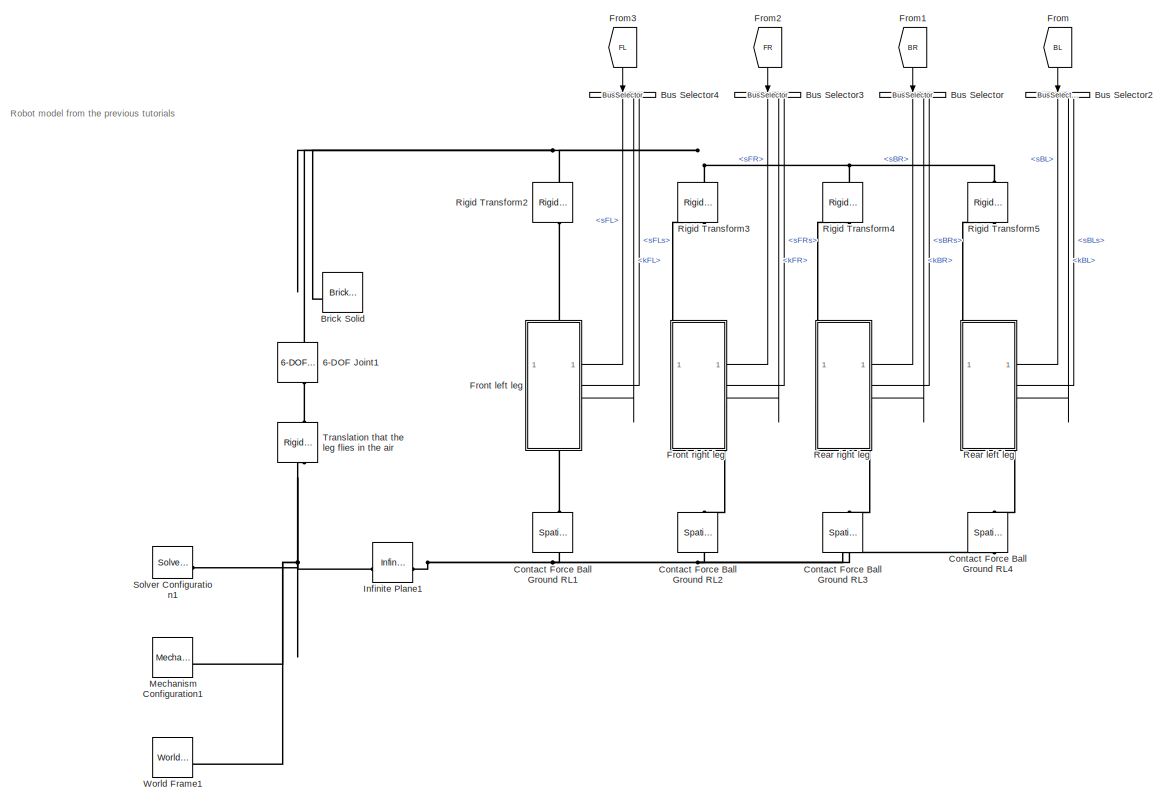
[diagram: root canvas - part 1/3, right side, full height]
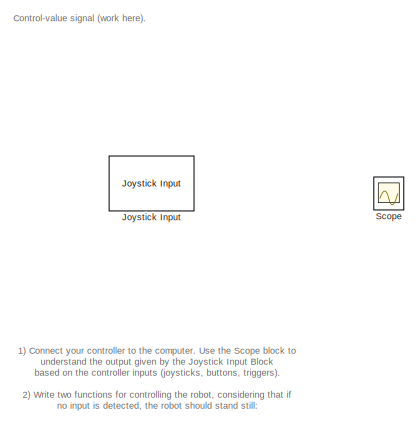
[diagram: root canvas - part 2/3, top left region]
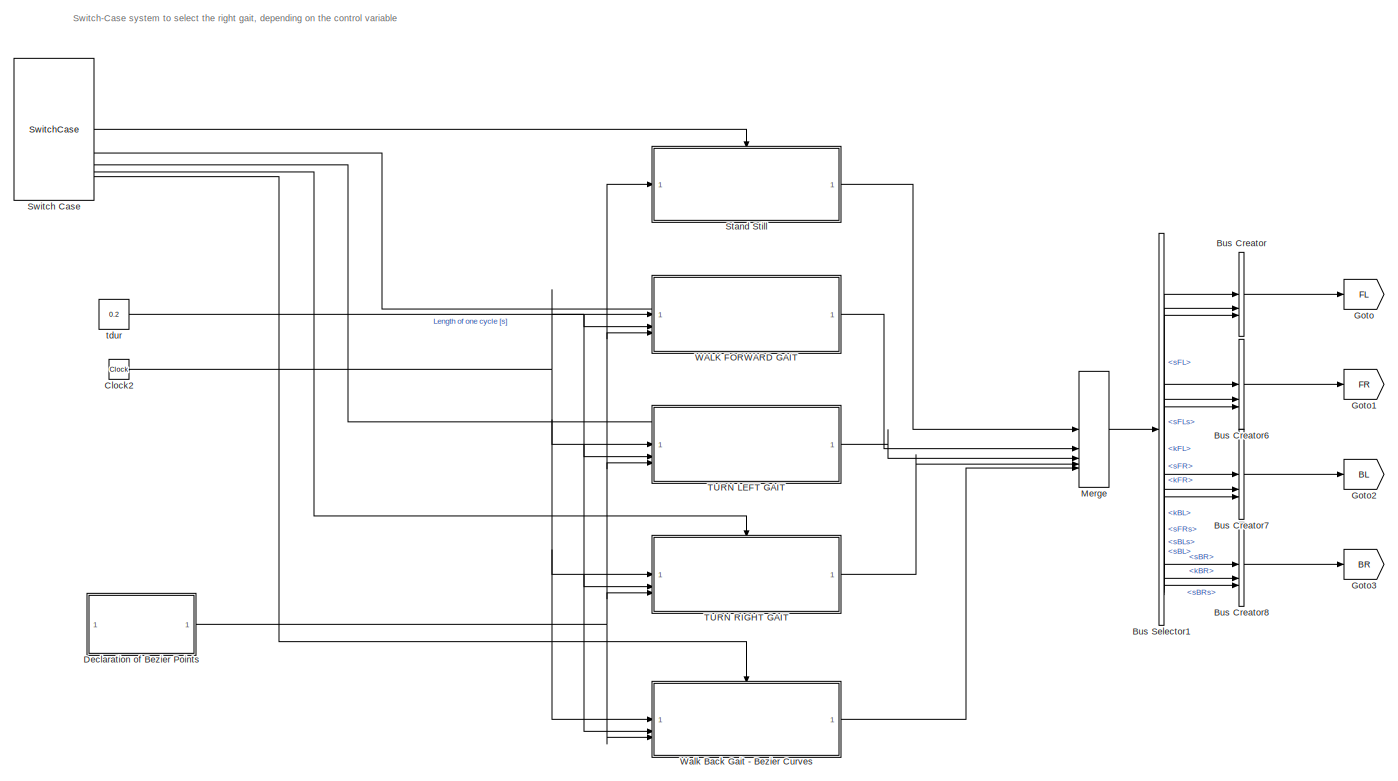
[diagram: root canvas - part 3/3, center side, full height]
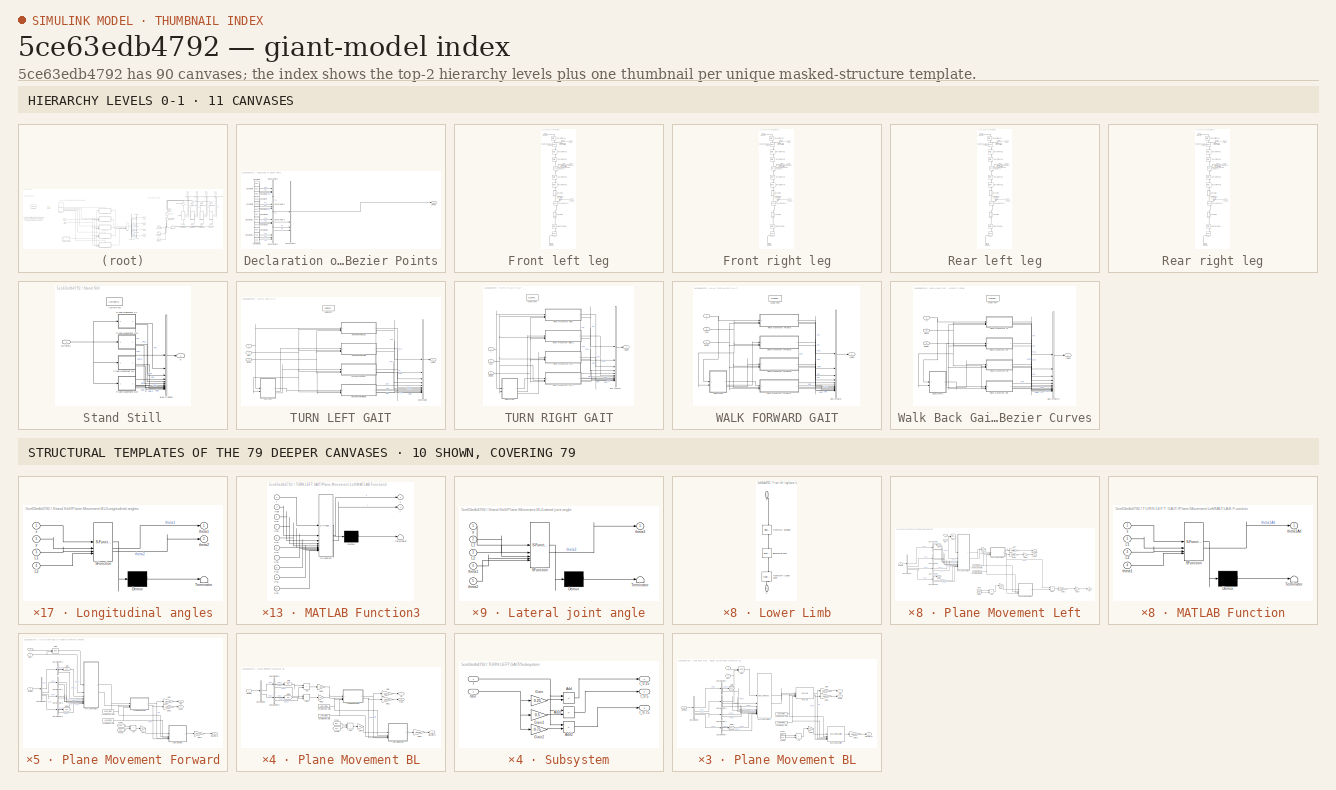
[diagram: thumbnail index - top-2 hierarchy levels (11 canvases) + 10 structural-template representatives of the remaining 79 canvases]
MODEL slx_5ce63edb4792
KIND model
CONFIG AbsTol = 1e-3
CONFIG EnableMultiTasking = on
CONFIG FixedStep = auto
CONFIG MaxStep = auto
CONFIG MinStep = auto
CONFIG RelTol = 1e-3
CONFIG SampleTimeConstraint = Unconstrained
CONFIG SolverName = ode23t
CONFIG StartTime = 0.0
CONFIG StopTime = inf
WORKSPACE source: mxarray member
WORKSPACE A = 0.4
WORKSPACE Critical_Velocity = 0.01
WORKSPACE Damping_Factor = 1000
WORKSPACE Dynamic_Friction = 0.5
WORKSPACE Heigth_brick: Simulink.Parameter (value not decoded)
WORKSPACE Heigth_ramp: Simulink.Parameter (value not decoded)
WORKSPACE Length_brick: Simulink.Parameter (value not decoded)
WORKSPACE Length_ramp: Simulink.Parameter (value not decoded)
WORKSPACE Length_torso: Simulink.Parameter (value not decoded)
WORKSPACE Lower_limbs: Simulink.Parameter (value not decoded)
WORKSPACE Static_Friction = 0.7
WORKSPACE Stiffnesscoefficient = 10000
WORKSPACE Transition_Region_Width = 0.02
WORKSPACE Upper_limbs: Simulink.Parameter (value not decoded)
WORKSPACE Width_brick: Simulink.Parameter (value not decoded)
WORKSPACE Width_ramp: Simulink.Parameter (value not decoded)
WORKSPACE Width_torso: Simulink.Parameter (value not decoded)
WORKSPACE f = 1.5
WORKSPACE max_Joint_change = 100
WORKSPACE r_foot: Simulink.Parameter (value not decoded)
WORKSPACE sampleTime: Simulink.Parameter (value not decoded)
WORKSPACE t_leg: Simulink.Parameter (value not decoded)
WORKSPACE theta: Simulink.Parameter (value not decoded)
WORKSPACE transferFunVal: Simulink.Parameter (value not decoded)
BLOCK [Reference] 6-DOF Joint1  REF=sm_lib/Joints/6-DOF Joint
  NameLocation = right
  SourceBlock = sm_lib/Joints/6-DOF Joint
  SourceType = 6-DOF Joint
BLOCK [Reference] Brick Solid  REF=sm_lib/Body Elements/Brick Solid
  NameLocation = top
  SourceBlock = sm_lib/Body Elements/Brick Solid
  SourceType = Brick Solid
BLOCK [BusCreator] Bus Creator
  DisplayOption = bar
  InheritFromInputs = on
  Inputs = 3
BLOCK [BusCreator] Bus Creator6
  DisplayOption = bar
  InheritFromInputs = on
  Inputs = 3
BLOCK [BusCreator] Bus Creator7
  DisplayOption = bar
  InheritFromInputs = on
  Inputs = 3
BLOCK [BusCreator] Bus Creator8
  DisplayOption = bar
  InheritFromInputs = on
  Inputs = 3
BLOCK [BusSelector] Bus Selector
  NameLocation = left
  OutputSignals = sBR,kBR,sBRs
BLOCK [BusSelector] Bus Selector1
  OutputSignals = sFL,kFL,sFLs,sFR,kFR,sFRs,sBL,kBL,sBLs,sBR,kBR,sBRs
BLOCK [BusSelector] Bus Selector2
  NameLocation = left
  OutputSignals = sBL,kBL,sBLs
BLOCK [BusSelector] Bus Selector3
  NameLocation = left
  OutputSignals = sFR,kFR,sFRs
BLOCK [BusSelector] Bus Selector4
  NameLocation = left
  OutputSignals = sFL,kFL,sFLs
BLOCK [Clock] Clock2
BLOCK [Reference] Contact Force Ball Ground RL1  REF=sm_lib/Forces and
Torques/Spatial
Contact Force
  NameLocation = left
  SourceBlock = sm_lib/Forces and\nTorques/Spatial\nContact Force
  SourceType = Spatial\nContact Force
BLOCK [Reference] Contact Force Ball Ground RL2  REF=sm_lib/Forces and
Torques/Spatial
Contact Force
  NameLocation = left
  SourceBlock = sm_lib/Forces and\nTorques/Spatial\nContact Force
  SourceType = Spatial\nContact Force
BLOCK [Reference] Contact Force Ball Ground RL3  REF=sm_lib/Forces and
Torques/Spatial
Contact Force
  NameLocation = left
  SourceBlock = sm_lib/Forces and\nTorques/Spatial\nContact Force
  SourceType = Spatial\nContact Force
BLOCK [Reference] Contact Force Ball Ground RL4  REF=sm_lib/Forces and
Torques/Spatial
Contact Force
  NameLocation = left
  SourceBlock = sm_lib/Forces and\nTorques/Spatial\nContact Force
  SourceType = Spatial\nContact Force
BLOCK [SubSystem] Declaration of Bezier Points
BLOCK [Outport] Declaration of Bezier Points/BPoint
BLOCK [BusCreator] Declaration of Bezier Points/Bus Creator1
  DisplayOption = bar
  InheritFromInputs = on
  Inputs = 3
BLOCK [BusCreator] Declaration of Bezier Points/Bus Creator2
  DisplayOption = bar
  InheritFromInputs = on
  Inputs = 3
BLOCK [BusCreator] Declaration of Bezier Points/Bus Creator3
  DisplayOption = bar
  InheritFromInputs = on
  Inputs = 3
BLOCK [BusCreator] Declaration of Bezier Points/Bus Creator4
  DisplayOption = bar
  InheritFromInputs = on
  Inputs = 3
BLOCK [BusCreator] Declaration of Bezier Points/Bus Creator5
  DisplayOption = bar
  InheritFromInputs = on
  Inputs = 4
BLOCK [Constant] Declaration of Bezier Points/Constant10
  Value = 0.01
BLOCK [Constant] Declaration of Bezier Points/Constant11
  Value = 0.01
BLOCK [Constant] Declaration of Bezier Points/Constant12
  Value = -0.075
BLOCK [Constant] Declaration of Bezier Points/Constant13
  Value = 0.02
BLOCK [Constant] Declaration of Bezier Points/Constant14
  Value = 0.02
BLOCK [Constant] Declaration of Bezier Points/Constant15
  Value = -0.08
BLOCK [Constant] Declaration of Bezier Points/Constant2
  Value = -0.02
BLOCK [Constant] Declaration of Bezier Points/Constant5
  Value = -0.02
BLOCK [Constant] Declaration of Bezier Points/Constant6
  Value = -0.08
BLOCK [Constant] Declaration of Bezier Points/Constant7
  Value = -0.035
BLOCK [Constant] Declaration of Bezier Points/Constant8
  Value = -0.035
BLOCK [Constant] Declaration of Bezier Points/Constant9
  Value = -0.075
BLOCK [From] From
  GotoTag = BL
  NameLocation = left
BLOCK [From] From1
  GotoTag = BR
  NameLocation = left
BLOCK [From] From2
  GotoTag = FR
  NameLocation = left
BLOCK [From] From3
  GotoTag = FL
  NameLocation = left
BLOCK [SubSystem] Front left leg
  PortSchema = {"entries":[{"content":{"sides":[{"content":{},"type":"ConnectorPlacement.EquallySpacedRectSide","uuid":"4058ee2b-9772-4aa9-ad2c-dc188ae6aecd"},{"content":{"connectorIds":["In1","In2","In3"],"side":"RIGHT"},"type":"ConnectorPlacement.EquallySpacedRectSide","uuid":"c8f5ac60-63ea-4dfe-ad35-3ef8c1bdb1d6"},{"content":{"connectorIds":["LConn1"],"side":"TOP"},"type":"ConnectorPlacement.EquallySpacedRect...<+389ch>  <repeated x4 — deduplicated; at blocks: Front left leg, Front right leg, Rear left leg, Rear right leg>
BLOCK [Inport] Front left leg/<Hip>
  NameLocation = top
BLOCK [Inport] Front left leg/<Knee>
  NameLocation = top
  Port = 3
BLOCK [PMIOPort] Front left leg/Conn1
  Side = Left
BLOCK [PMIOPort] Front left leg/Conn2
  Port = 2
  Side = Right
BLOCK [Reference] Front left leg/Foot  REF=sm_lib/Body Elements/Spherical Solid
  NameLocation = right
  SourceBlock = sm_lib/Body Elements/Spherical Solid
  SourceType = Spherical Solid
BLOCK [SubSystem] Front left leg/Lower Limb
  NameLocation = left
BLOCK [Reference] Front left leg/Lower Limb/BaseLowerLimb  REF=sm_lib/Body Elements/Brick Solid
  NameLocation = left
  SourceBlock = sm_lib/Body Elements/Brick Solid
  SourceType = Brick Solid
BLOCK [PMIOPort] Front left leg/Lower Limb/L
  NameLocation = left
  Port = 2
  Side = Right
BLOCK [Reference] Front left leg/Lower Limb/Transform Shoulder  REF=sm_lib/Frames and
Transforms/Rigid
Transform
  NameLocation = left
  SourceBlock = sm_lib/Frames and\nTransforms/Rigid\nTransform
  SourceType = Rigid\nTransform
BLOCK [Reference] Front left leg/Lower Limb/Transform Upper Knee  REF=sm_lib/Frames and
Transforms/Rigid
Transform
  NameLocation = left
  SourceBlock = sm_lib/Frames and\nTransforms/Rigid\nTransform
  SourceType = Rigid\nTransform
BLOCK [PMIOPort] Front left leg/Lower Limb/U
  NameLocation = left
  Side = Left
BLOCK [Reference] Front left leg/Revolute Knee1  REF=sm_lib/Joints/Revolute Joint
  NameLocation = left
  SourceBlock = sm_lib/Joints/Revolute Joint
  SourceType = Revolute Joint
BLOCK [Reference] Front left leg/Revolute Shoulder Forward  REF=sm_lib/Joints/Revolute Joint
  NameLocation = left
  SourceBlock = sm_lib/Joints/Revolute Joint
  SourceType = Revolute Joint
BLOCK [Reference] Front left leg/Revolute Shoulder Sideways  REF=sm_lib/Joints/Revolute Joint
  NameLocation = left
  SourceBlock = sm_lib/Joints/Revolute Joint
  SourceType = Revolute Joint
BLOCK [Reference] Front left leg/Rigid Transform4  REF=sm_lib/Frames and
Transforms/Rigid
Transform
  NameLocation = left
  SourceBlock = sm_lib/Frames and\nTransforms/Rigid\nTransform
  SourceType = Rigid\nTransform
BLOCK [Inport] Front left leg/Sideways
  NameLocation = top
  Port = 2
BLOCK [Reference] Front left leg/Simulink-PS Converter  REF=nesl_utility/Simulink-PS
Converter
  NameLocation = top
  SourceBlock = nesl_utility/Simulink-PS\nConverter
  SourceType = Simulink-PS\nConverter
BLOCK [Reference] Front left leg/Simulink-PS Converter1  REF=nesl_utility/Simulink-PS
Converter
  NameLocation = top
  SourceBlock = nesl_utility/Simulink-PS\nConverter
  SourceType = Simulink-PS\nConverter
BLOCK [Reference] Front left leg/Simulink-PS Converter2  REF=nesl_utility/Simulink-PS
Converter
  NameLocation = top
  SourceBlock = nesl_utility/Simulink-PS\nConverter
  SourceType = Simulink-PS\nConverter
BLOCK [Reference] Front left leg/Transform Pivot1  REF=sm_lib/Frames and
Transforms/Rigid
Transform
  NameLocation = left
  SourceBlock = sm_lib/Frames and\nTransforms/Rigid\nTransform
  SourceType = Rigid\nTransform
BLOCK [Reference] Front left leg/Transform Pivot2  REF=sm_lib/Frames and
Transforms/Rigid
Transform
  NameLocation = left
  SourceBlock = sm_lib/Frames and\nTransforms/Rigid\nTransform
  SourceType = Rigid\nTransform
BLOCK [Reference] Front left leg/Transform Pivot3  REF=sm_lib/Frames and
Transforms/Rigid
Transform
  NameLocation = left
  SourceBlock = sm_lib/Frames and\nTransforms/Rigid\nTransform
  SourceType = Rigid\nTransform
BLOCK [Reference] Front left leg/Transform Pivot4  REF=sm_lib/Frames and
Transforms/Rigid
Transform
  NameLocation = left
  SourceBlock = sm_lib/Frames and\nTransforms/Rigid\nTransform
  SourceType = Rigid\nTransform
BLOCK [Reference] Front left leg/Transform Pivot5  REF=sm_lib/Frames and
Transforms/Rigid
Transform
  NameLocation = left
  SourceBlock = sm_lib/Frames and\nTransforms/Rigid\nTransform
  SourceType = Rigid\nTransform
BLOCK [SubSystem] Front left leg/Upper Limb
  NameLocation = left
BLOCK [Reference] Front left leg/Upper Limb/BaseUpperLimb  REF=sm_lib/Body Elements/Brick Solid
  NameLocation = left
  SourceBlock = sm_lib/Body Elements/Brick Solid
  SourceType = Brick Solid
BLOCK [PMIOPort] Front left leg/Upper Limb/L
  NameLocation = left
  Port = 2
  Side = Right
BLOCK [Reference] Front left leg/Upper Limb/Transform Shoulder  REF=sm_lib/Frames and
Transforms/Rigid
Transform
  NameLocation = left
  SourceBlock = sm_lib/Frames and\nTransforms/Rigid\nTransform
  SourceType = Rigid\nTransform
BLOCK [Reference] Front left leg/Upper Limb/Transform Upper Knee  REF=sm_lib/Frames and
Transforms/Rigid
Transform
  NameLocation = left
  SourceBlock = sm_lib/Frames and\nTransforms/Rigid\nTransform
  SourceType = Rigid\nTransform
BLOCK [PMIOPort] Front left leg/Upper Limb/U
  NameLocation = left
  Side = Left
BLOCK [SubSystem] Front right leg
BLOCK [Inport] Front right leg/<Hip>
  NameLocation = top
BLOCK [Inport] Front right leg/<Knee>
  NameLocation = top
  Port = 3
BLOCK [PMIOPort] Front right leg/Conn1
  Side = Left
BLOCK [PMIOPort] Front right leg/Conn2
  Port = 2
  Side = Right
BLOCK [Reference] Front right leg/Foot  REF=sm_lib/Body Elements/Spherical Solid
  NameLocation = right
  SourceBlock = sm_lib/Body Elements/Spherical Solid
  SourceType = Spherical Solid
BLOCK [SubSystem] Front right leg/Lower Limb
  NameLocation = left
BLOCK [Reference] Front right leg/Lower Limb/BaseLowerLimb  REF=sm_lib/Body Elements/Brick Solid
  NameLocation = left
  SourceBlock = sm_lib/Body Elements/Brick Solid
  SourceType = Brick Solid
BLOCK [PMIOPort] Front right leg/Lower Limb/L
  NameLocation = left
  Port = 2
  Side = Right
BLOCK [Reference] Front right leg/Lower Limb/Transform Shoulder  REF=sm_lib/Frames and
Transforms/Rigid
Transform
  NameLocation = left
  SourceBlock = sm_lib/Frames and\nTransforms/Rigid\nTransform
  SourceType = Rigid\nTransform
BLOCK [Reference] Front right leg/Lower Limb/Transform Upper Knee  REF=sm_lib/Frames and
Transforms/Rigid
Transform
  NameLocation = left
  SourceBlock = sm_lib/Frames and\nTransforms/Rigid\nTransform
  SourceType = Rigid\nTransform
BLOCK [PMIOPort] Front right leg/Lower Limb/U
  NameLocation = left
  Side = Left
BLOCK [Reference] Front right leg/Revolute Knee1  REF=sm_lib/Joints/Revolute Joint
  NameLocation = left
  SourceBlock = sm_lib/Joints/Revolute Joint
  SourceType = Revolute Joint
BLOCK [Reference] Front right leg/Revolute Shoulder Forward  REF=sm_lib/Joints/Revolute Joint
  NameLocation = left
  SourceBlock = sm_lib/Joints/Revolute Joint
  SourceType = Revolute Joint
BLOCK [Reference] Front right leg/Revolute Shoulder Sideways  REF=sm_lib/Joints/Revolute Joint
  NameLocation = left
  SourceBlock = sm_lib/Joints/Revolute Joint
  SourceType = Revolute Joint
BLOCK [Reference] Front right leg/Rigid Transform4  REF=sm_lib/Frames and
Transforms/Rigid
Transform
  NameLocation = left
  SourceBlock = sm_lib/Frames and\nTransforms/Rigid\nTransform
  SourceType = Rigid\nTransform
BLOCK [Inport] Front right leg/Sideways
  NameLocation = top
  Port = 2
BLOCK [Reference] Front right leg/Simulink-PS Converter  REF=nesl_utility/Simulink-PS
Converter
  NameLocation = top
  SourceBlock = nesl_utility/Simulink-PS\nConverter
  SourceType = Simulink-PS\nConverter
BLOCK [Reference] Front right leg/Simulink-PS Converter1  REF=nesl_utility/Simulink-PS
Converter
  NameLocation = top
  SourceBlock = nesl_utility/Simulink-PS\nConverter
  SourceType = Simulink-PS\nConverter
BLOCK [Reference] Front right leg/Simulink-PS Converter2  REF=nesl_utility/Simulink-PS
Converter
  NameLocation = top
  SourceBlock = nesl_utility/Simulink-PS\nConverter
  SourceType = Simulink-PS\nConverter
BLOCK [Reference] Front right leg/Transform Pivot1  REF=sm_lib/Frames and
Transforms/Rigid
Transform
  NameLocation = left
  SourceBlock = sm_lib/Frames and\nTransforms/Rigid\nTransform
  SourceType = Rigid\nTransform
BLOCK [Reference] Front right leg/Transform Pivot2  REF=sm_lib/Frames and
Transforms/Rigid
Transform
  NameLocation = left
  SourceBlock = sm_lib/Frames and\nTransforms/Rigid\nTransform
  SourceType = Rigid\nTransform
BLOCK [Reference] Front right leg/Transform Pivot3  REF=sm_lib/Frames and
Transforms/Rigid
Transform
  NameLocation = left
  SourceBlock = sm_lib/Frames and\nTransforms/Rigid\nTransform
  SourceType = Rigid\nTransform
BLOCK [Reference] Front right leg/Transform Pivot4  REF=sm_lib/Frames and
Transforms/Rigid
Transform
  NameLocation = left
  SourceBlock = sm_lib/Frames and\nTransforms/Rigid\nTransform
  SourceType = Rigid\nTransform
BLOCK [Reference] Front right leg/Transform Pivot5  REF=sm_lib/Frames and
Transforms/Rigid
Transform
  NameLocation = left
  SourceBlock = sm_lib/Frames and\nTransforms/Rigid\nTransform
  SourceType = Rigid\nTransform
BLOCK [SubSystem] Front right leg/Upper Limb
  NameLocation = left
BLOCK [Reference] Front right leg/Upper Limb/BaseUpperLimb  REF=sm_lib/Body Elements/Brick Solid
  NameLocation = left
  SourceBlock = sm_lib/Body Elements/Brick Solid
  SourceType = Brick Solid
BLOCK [PMIOPort] Front right leg/Upper Limb/L
  NameLocation = left
  Port = 2
  Side = Right
BLOCK [Reference] Front right leg/Upper Limb/Transform Shoulder  REF=sm_lib/Frames and
Transforms/Rigid
Transform
  NameLocation = left
  SourceBlock = sm_lib/Frames and\nTransforms/Rigid\nTransform
  SourceType = Rigid\nTransform
BLOCK [Reference] Front right leg/Upper Limb/Transform Upper Knee  REF=sm_lib/Frames and
Transforms/Rigid
Transform
  NameLocation = left
  SourceBlock = sm_lib/Frames and\nTransforms/Rigid\nTransform
  SourceType = Rigid\nTransform
BLOCK [PMIOPort] Front right leg/Upper Limb/U
  NameLocation = left
  Side = Left
BLOCK [Goto] Goto
  GotoTag = FL
BLOCK [Goto] Goto1
  GotoTag = FR
BLOCK [Goto] Goto2
  GotoTag = BL
BLOCK [Goto] Goto3
  GotoTag = BR
BLOCK [Reference] Infinite Plane1  REF=sm_lib/Curves and Surfaces/Infinite Plane
  SourceBlock = sm_lib/Curves and Surfaces/Infinite Plane
  SourceType = Infinite Plane
BLOCK [Reference] Joystick Input  REF=vrlib/Joystick Input
  SourceBlock = vrlib/Joystick Input
  SourceType = Joystick Input
BLOCK [Reference] Mechanism Configuration1  REF=sm_lib/Utilities/Mechanism
Configuration
  SourceBlock = sm_lib/Utilities/Mechanism\nConfiguration
  SourceType = Mechanism\nConfiguration
BLOCK [Merge] Merge
  Inputs = 5
BLOCK [SubSystem] Rear left leg
BLOCK [Inport] Rear left leg/<Hip>
  NameLocation = top
BLOCK [Inport] Rear left leg/<Knee>
  NameLocation = top
  Port = 3
BLOCK [PMIOPort] Rear left leg/Conn1
  Side = Left
BLOCK [PMIOPort] Rear left leg/Conn2
  Port = 2
  Side = Right
BLOCK [Reference] Rear left leg/Foot  REF=sm_lib/Body Elements/Spherical Solid
  NameLocation = right
  SourceBlock = sm_lib/Body Elements/Spherical Solid
  SourceType = Spherical Solid
BLOCK [SubSystem] Rear left leg/Lower Limb
  NameLocation = left
BLOCK [Reference] Rear left leg/Lower Limb/BaseLowerLimb  REF=sm_lib/Body Elements/Brick Solid
  NameLocation = left
  SourceBlock = sm_lib/Body Elements/Brick Solid
  SourceType = Brick Solid
BLOCK [PMIOPort] Rear left leg/Lower Limb/L
  NameLocation = left
  Port = 2
  Side = Right
BLOCK [Reference] Rear left leg/Lower Limb/Transform Shoulder  REF=sm_lib/Frames and
Transforms/Rigid
Transform
  NameLocation = left
  SourceBlock = sm_lib/Frames and\nTransforms/Rigid\nTransform
  SourceType = Rigid\nTransform
BLOCK [Reference] Rear left leg/Lower Limb/Transform Upper Knee  REF=sm_lib/Frames and
Transforms/Rigid
Transform
  NameLocation = left
  SourceBlock = sm_lib/Frames and\nTransforms/Rigid\nTransform
  SourceType = Rigid\nTransform
BLOCK [PMIOPort] Rear left leg/Lower Limb/U
  NameLocation = left
  Side = Left
BLOCK [Reference] Rear left leg/Revolute Knee1  REF=sm_lib/Joints/Revolute Joint
  NameLocation = left
  SourceBlock = sm_lib/Joints/Revolute Joint
  SourceType = Revolute Joint
BLOCK [Reference] Rear left leg/Revolute Shoulder Forward  REF=sm_lib/Joints/Revolute Joint
  NameLocation = left
  SourceBlock = sm_lib/Joints/Revolute Joint
  SourceType = Revolute Joint
BLOCK [Reference] Rear left leg/Revolute Shoulder Sideways  REF=sm_lib/Joints/Revolute Joint
  NameLocation = left
  SourceBlock = sm_lib/Joints/Revolute Joint
  SourceType = Revolute Joint
BLOCK [Reference] Rear left leg/Rigid Transform4  REF=sm_lib/Frames and
Transforms/Rigid
Transform
  NameLocation = left
  SourceBlock = sm_lib/Frames and\nTransforms/Rigid\nTransform
  SourceType = Rigid\nTransform
BLOCK [Inport] Rear left leg/Sideways
  NameLocation = top
  Port = 2
BLOCK [Reference] Rear left leg/Simulink-PS Converter  REF=nesl_utility/Simulink-PS
Converter
  NameLocation = top
  SourceBlock = nesl_utility/Simulink-PS\nConverter
  SourceType = Simulink-PS\nConverter
BLOCK [Reference] Rear left leg/Simulink-PS Converter1  REF=nesl_utility/Simulink-PS
Converter
  NameLocation = top
  SourceBlock = nesl_utility/Simulink-PS\nConverter
  SourceType = Simulink-PS\nConverter
BLOCK [Reference] Rear left leg/Simulink-PS Converter2  REF=nesl_utility/Simulink-PS
Converter
  NameLocation = top
  SourceBlock = nesl_utility/Simulink-PS\nConverter
  SourceType = Simulink-PS\nConverter
BLOCK [Reference] Rear left leg/Transform Pivot1  REF=sm_lib/Frames and
Transforms/Rigid
Transform
  NameLocation = left
  SourceBlock = sm_lib/Frames and\nTransforms/Rigid\nTransform
  SourceType = Rigid\nTransform
BLOCK [Reference] Rear left leg/Transform Pivot2  REF=sm_lib/Frames and
Transforms/Rigid
Transform
  NameLocation = left
  SourceBlock = sm_lib/Frames and\nTransforms/Rigid\nTransform
  SourceType = Rigid\nTransform
BLOCK [Reference] Rear left leg/Transform Pivot3  REF=sm_lib/Frames and
Transforms/Rigid
Transform
  NameLocation = left
  SourceBlock = sm_lib/Frames and\nTransforms/Rigid\nTransform
  SourceType = Rigid\nTransform
BLOCK [Reference] Rear left leg/Transform Pivot4  REF=sm_lib/Frames and
Transforms/Rigid
Transform
  NameLocation = left
  SourceBlock = sm_lib/Frames and\nTransforms/Rigid\nTransform
  SourceType = Rigid\nTransform
BLOCK [Reference] Rear left leg/Transform Pivot5  REF=sm_lib/Frames and
Transforms/Rigid
Transform
  NameLocation = left
  SourceBlock = sm_lib/Frames and\nTransforms/Rigid\nTransform
  SourceType = Rigid\nTransform
BLOCK [SubSystem] Rear left leg/Upper Limb
  NameLocation = left
BLOCK [Reference] Rear left leg/Upper Limb/BaseUpperLimb  REF=sm_lib/Body Elements/Brick Solid
  NameLocation = left
  SourceBlock = sm_lib/Body Elements/Brick Solid
  SourceType = Brick Solid
BLOCK [PMIOPort] Rear left leg/Upper Limb/L
  NameLocation = left
  Port = 2
  Side = Right
BLOCK [Reference] Rear left leg/Upper Limb/Transform Shoulder  REF=sm_lib/Frames and
Transforms/Rigid
Transform
  NameLocation = left
  SourceBlock = sm_lib/Frames and\nTransforms/Rigid\nTransform
  SourceType = Rigid\nTransform
BLOCK [Reference] Rear left leg/Upper Limb/Transform Upper Knee  REF=sm_lib/Frames and
Transforms/Rigid
Transform
  NameLocation = left
  SourceBlock = sm_lib/Frames and\nTransforms/Rigid\nTransform
  SourceType = Rigid\nTransform
BLOCK [PMIOPort] Rear left leg/Upper Limb/U
  NameLocation = left
  Side = Left
BLOCK [SubSystem] Rear right leg
BLOCK [Inport] Rear right leg/<Hip>
  NameLocation = top
BLOCK [Inport] Rear right leg/<Knee>
  NameLocation = top
  Port = 3
BLOCK [PMIOPort] Rear right leg/Conn1
  Side = Left
BLOCK [PMIOPort] Rear right leg/Conn2
  Port = 2
  Side = Right
BLOCK [Reference] Rear right leg/Foot  REF=sm_lib/Body Elements/Spherical Solid
  NameLocation = right
  SourceBlock = sm_lib/Body Elements/Spherical Solid
  SourceType = Spherical Solid
BLOCK [SubSystem] Rear right leg/Lower Limb
  NameLocation = left
BLOCK [Reference] Rear right leg/Lower Limb/BaseLowerLimb  REF=sm_lib/Body Elements/Brick Solid
  NameLocation = left
  SourceBlock = sm_lib/Body Elements/Brick Solid
  SourceType = Brick Solid
BLOCK [PMIOPort] Rear right leg/Lower Limb/L
  NameLocation = left
  Port = 2
  Side = Right
BLOCK [Reference] Rear right leg/Lower Limb/Transform Shoulder  REF=sm_lib/Frames and
Transforms/Rigid
Transform
  NameLocation = left
  SourceBlock = sm_lib/Frames and\nTransforms/Rigid\nTransform
  SourceType = Rigid\nTransform
BLOCK [Reference] Rear right leg/Lower Limb/Transform Upper Knee  REF=sm_lib/Frames and
Transforms/Rigid
Transform
  NameLocation = left
  SourceBlock = sm_lib/Frames and\nTransforms/Rigid\nTransform
  SourceType = Rigid\nTransform
BLOCK [PMIOPort] Rear right leg/Lower Limb/U
  NameLocation = left
  Side = Left
BLOCK [Reference] Rear right leg/Revolute Knee1  REF=sm_lib/Joints/Revolute Joint
  NameLocation = left
  SourceBlock = sm_lib/Joints/Revolute Joint
  SourceType = Revolute Joint
BLOCK [Reference] Rear right leg/Revolute Shoulder Forward  REF=sm_lib/Joints/Revolute Joint
  NameLocation = left
  SourceBlock = sm_lib/Joints/Revolute Joint
  SourceType = Revolute Joint
BLOCK [Reference] Rear right leg/Revolute Shoulder Sideways  REF=sm_lib/Joints/Revolute Joint
  NameLocation = left
  SourceBlock = sm_lib/Joints/Revolute Joint
  SourceType = Revolute Joint
BLOCK [Reference] Rear right leg/Rigid Transform4  REF=sm_lib/Frames and
Transforms/Rigid
Transform
  NameLocation = left
  SourceBlock = sm_lib/Frames and\nTransforms/Rigid\nTransform
  SourceType = Rigid\nTransform
BLOCK [Inport] Rear right leg/Sideways
  NameLocation = top
  Port = 2
BLOCK [Reference] Rear right leg/Simulink-PS Converter  REF=nesl_utility/Simulink-PS
Converter
  NameLocation = top
  SourceBlock = nesl_utility/Simulink-PS\nConverter
  SourceType = Simulink-PS\nConverter
BLOCK [Reference] Rear right leg/Simulink-PS Converter1  REF=nesl_utility/Simulink-PS
Converter
  NameLocation = top
  SourceBlock = nesl_utility/Simulink-PS\nConverter
  SourceType = Simulink-PS\nConverter
BLOCK [Reference] Rear right leg/Simulink-PS Converter2  REF=nesl_utility/Simulink-PS
Converter
  NameLocation = top
  SourceBlock = nesl_utility/Simulink-PS\nConverter
  SourceType = Simulink-PS\nConverter
BLOCK [Reference] Rear right leg/Transform Pivot1  REF=sm_lib/Frames and
Transforms/Rigid
Transform
  NameLocation = left
  SourceBlock = sm_lib/Frames and\nTransforms/Rigid\nTransform
  SourceType = Rigid\nTransform
BLOCK [Reference] Rear right leg/Transform Pivot2  REF=sm_lib/Frames and
Transforms/Rigid
Transform
  NameLocation = left
  SourceBlock = sm_lib/Frames and\nTransforms/Rigid\nTransform
  SourceType = Rigid\nTransform
BLOCK [Reference] Rear right leg/Transform Pivot3  REF=sm_lib/Frames and
Transforms/Rigid
Transform
  NameLocation = left
  SourceBlock = sm_lib/Frames and\nTransforms/Rigid\nTransform
  SourceType = Rigid\nTransform
BLOCK [Reference] Rear right leg/Transform Pivot4  REF=sm_lib/Frames and
Transforms/Rigid
Transform
  NameLocation = left
  SourceBlock = sm_lib/Frames and\nTransforms/Rigid\nTransform
  SourceType = Rigid\nTransform
BLOCK [Reference] Rear right leg/Transform Pivot5  REF=sm_lib/Frames and
Transforms/Rigid
Transform
  NameLocation = left
  SourceBlock = sm_lib/Frames and\nTransforms/Rigid\nTransform
  SourceType = Rigid\nTransform
BLOCK [SubSystem] Rear right leg/Upper Limb
  NameLocation = left
BLOCK [Reference] Rear right leg/Upper Limb/BaseUpperLimb  REF=sm_lib/Body Elements/Brick Solid
  NameLocation = left
  SourceBlock = sm_lib/Body Elements/Brick Solid
  SourceType = Brick Solid
BLOCK [PMIOPort] Rear right leg/Upper Limb/L
  NameLocation = left
  Port = 2
  Side = Right
BLOCK [Reference] Rear right leg/Upper Limb/Transform Shoulder  REF=sm_lib/Frames and
Transforms/Rigid
Transform
  NameLocation = left
  SourceBlock = sm_lib/Frames and\nTransforms/Rigid\nTransform
  SourceType = Rigid\nTransform
BLOCK [Reference] Rear right leg/Upper Limb/Transform Upper Knee  REF=sm_lib/Frames and
Transforms/Rigid
Transform
  NameLocation = left
  SourceBlock = sm_lib/Frames and\nTransforms/Rigid\nTransform
  SourceType = Rigid\nTransform
BLOCK [PMIOPort] Rear right leg/Upper Limb/U
  NameLocation = left
  Side = Left
BLOCK [Reference] Rigid Transform2  REF=sm_lib/Frames and
Transforms/Rigid
Transform
  NameLocation = left
  SourceBlock = sm_lib/Frames and\nTransforms/Rigid\nTransform
  SourceType = Rigid\nTransform
BLOCK [Reference] Rigid Transform3  REF=sm_lib/Frames and
Transforms/Rigid
Transform
  NameLocation = left
  SourceBlock = sm_lib/Frames and\nTransforms/Rigid\nTransform
  SourceType = Rigid\nTransform
BLOCK [Reference] Rigid Transform4  REF=sm_lib/Frames and
Transforms/Rigid
Transform
  NameLocation = left
  SourceBlock = sm_lib/Frames and\nTransforms/Rigid\nTransform
  SourceType = Rigid\nTransform
BLOCK [Reference] Rigid Transform5  REF=sm_lib/Frames and
Transforms/Rigid
Transform
  NameLocation = left
  SourceBlock = sm_lib/Frames and\nTransforms/Rigid\nTransform
  SourceType = Rigid\nTransform
BLOCK [Scope] Scope
  Floating = off
  NumInputPorts = 2
  ScopeSpecificationString = Simulink.scopes.TimeScopeBlockCfg('CurrentConfiguration', extmgr.ConfigurationSet(extmgr.Configuration('Core','General UI',true),extmgr.Configuration('Core','Source UI',true),extmgr.Configuration('Sources','WiredSimulink',true),extmgr.Configuration('Visuals','Time Domain',true,'SerializedDisplays',{struct('MinYLimReal','-0.62381','MaxYLimReal','4.51376','YLabelReal','','MinYLimMag','0.00000','MaxY...<+1618ch>
BLOCK [Reference] Solver Configuration1  REF=nesl_utility/Solver
Configuration
  SourceBlock = nesl_utility/Solver\nConfiguration
  SourceType = Solver\nConfiguration
BLOCK [SubSystem] Stand Still
BLOCK [ActionPort] Stand Still/Action Port
  ActionPortLabel = case [ 0 ]:
  InitializeStates = reset
BLOCK [Inport] Stand Still/BPoints
BLOCK [BusCreator] Stand Still/Bus Creator
  DisplayOption = bar
  InheritFromInputs = on
  Inputs = 12
BLOCK [SubSystem] Stand Still/Plane Movement BL
BLOCK [Sum] Stand Still/Plane Movement BL/Add
  IconShape = rectangular
BLOCK [Sum] Stand Still/Plane Movement BL/Add1
  IconShape = rectangular
BLOCK [Sum] Stand Still/Plane Movement BL/Add2
  IconShape = rectangular
BLOCK [Inport] Stand Still/Plane Movement BL/BPoints
BLOCK [BusSelector] Stand Still/Plane Movement BL/Bus Selector
  OutputSignals = P0,P3
BLOCK [BusSelector] Stand Still/Plane Movement BL/Bus Selector1
  OutputSignals = P0x,P0y,P0z
BLOCK [BusSelector] Stand Still/Plane Movement BL/Bus Selector4
  OutputSignals = P3x,P3y,P3z
BLOCK [From] Stand Still/Plane Movement BL/From
  GotoTag = P0y
BLOCK [From] Stand Still/Plane Movement BL/From1
  GotoTag = P3y
BLOCK [Gain] Stand Still/Plane Movement BL/Gain
  Gain = 180/pi
BLOCK [Gain] Stand Still/Plane Movement BL/Gain1
  Gain = -180/pi
BLOCK [Gain] Stand Still/Plane Movement BL/Gain2
  Gain = -1/2
BLOCK [Gain] Stand Still/Plane Movement BL/Gain3
  Gain = 1/2
BLOCK [Gain] Stand Still/Plane Movement BL/Gain4
  Gain = 0.5
BLOCK [Gain] Stand Still/Plane Movement BL/Gain5
  Gain = 180/pi
BLOCK [Goto] Stand Still/Plane Movement BL/Goto
  GotoTag = P0y
BLOCK [Goto] Stand Still/Plane Movement BL/Goto1
  GotoTag = P3y
BLOCK [Outport] Stand Still/Plane Movement BL/HipLateral
  Port = 3
BLOCK [SubSystem] Stand Still/Plane Movement BL/Lateral joint angle
  ErrorFcn = Stateflow.Translate.translate
  PermitHierarchicalResolution = ExplicitOnly
  SFBlockType = MATLAB Function
  TreatAsAtomicUnit = on
BLOCK [Demux] Stand Still/Plane Movement BL/Lateral joint angle/ Demux 
  Outputs = 1
BLOCK [S-Function] Stand Still/Plane Movement BL/Lateral joint angle/ SFunction 
  EnableBusSupport = on
  FunctionName = sf_sfun
  PortCounts = [5 2]
  SFcnIsStateOwnerBlock = off
  SFunctionDeploymentMode = off
  Tag = Stateflow S-Function 11
BLOCK [Terminator] Stand Still/Plane Movement BL/Lateral joint angle/ Terminator 
BLOCK [Inport] Stand Still/Plane Movement BL/Lateral joint angle/L1
  Port = 2
BLOCK [Inport] Stand Still/Plane Movement BL/Lateral joint angle/L2
  Port = 3
BLOCK [Inport] Stand Still/Plane Movement BL/Lateral joint angle/theta1
  Port = 4
BLOCK [Inport] Stand Still/Plane Movement BL/Lateral joint angle/theta2
  Port = 5
BLOCK [Outport] Stand Still/Plane Movement BL/Lateral joint angle/theta3
BLOCK [Inport] Stand Still/Plane Movement BL/Lateral joint angle/y
BLOCK [Constant] Stand Still/Plane Movement BL/Length lower Limb
  Value = Lower_limbs
BLOCK [Constant] Stand Still/Plane Movement BL/Length upper Limb
  Value = Upper_limbs
BLOCK [SubSystem] Stand Still/Plane Movement BL/Longitudinal angles
  ErrorFcn = Stateflow.Translate.translate
  PermitHierarchicalResolution = ExplicitOnly
  SFBlockType = MATLAB Function
  TreatAsAtomicUnit = on
BLOCK [Demux] Stand Still/Plane Movement BL/Longitudinal angles/ Demux 
  Outputs = 1
BLOCK [S-Function] Stand Still/Plane Movement BL/Longitudinal angles/ SFunction 
  EnableBusSupport = on
  FunctionName = sf_sfun
  PortCounts = [4 3]
  SFcnIsStateOwnerBlock = off
  SFunctionDeploymentMode = off
  Tag = Stateflow S-Function 10
BLOCK [Terminator] Stand Still/Plane Movement BL/Longitudinal angles/ Terminator 
BLOCK [Inport] Stand Still/Plane Movement BL/Longitudinal angles/L1
  Port = 3
BLOCK [Inport] Stand Still/Plane Movement BL/Longitudinal angles/L2
  Port = 4
BLOCK [Outport] Stand Still/Plane Movement BL/Longitudinal angles/theta1
BLOCK [Outport] Stand Still/Plane Movement BL/Longitudinal angles/theta2
  Port = 2
BLOCK [Inport] Stand Still/Plane Movement BL/Longitudinal angles/x
BLOCK [Inport] Stand Still/Plane Movement BL/Longitudinal angles/y
  Port = 2
BLOCK [Outport] Stand Still/Plane Movement BL/hip
BLOCK [Outport] Stand Still/Plane Movement BL/knee
  Port = 2
BLOCK [SubSystem] Stand Still/Plane Movement BR
BLOCK [Sum] Stand Still/Plane Movement BR/Add
  IconShape = rectangular
BLOCK [Sum] Stand Still/Plane Movement BR/Add1
  IconShape = rectangular
BLOCK [Sum] Stand Still/Plane Movement BR/Add2
  IconShape = rectangular
BLOCK [Inport] Stand Still/Plane Movement BR/BPoints
BLOCK [BusSelector] Stand Still/Plane Movement BR/Bus Selector
  OutputSignals = P0,P3
BLOCK [BusSelector] Stand Still/Plane Movement BR/Bus Selector1
  OutputSignals = P0x,P0y,P0z
BLOCK [BusSelector] Stand Still/Plane Movement BR/Bus Selector4
  OutputSignals = P3x,P3y,P3z
BLOCK [From] Stand Still/Plane Movement BR/From
  GotoTag = P0y
BLOCK [From] Stand Still/Plane Movement BR/From1
  GotoTag = P3y
BLOCK [Gain] Stand Still/Plane Movement BR/Gain
  Gain = 180/pi
BLOCK [Gain] Stand Still/Plane Movement BR/Gain1
  Gain = -180/pi
BLOCK [Gain] Stand Still/Plane Movement BR/Gain2
  Gain = -1/2
BLOCK [Gain] Stand Still/Plane Movement BR/Gain3
  Gain = 1/2
BLOCK [Gain] Stand Still/Plane Movement BR/Gain4
  Gain = 0.5
BLOCK [Gain] Stand Still/Plane Movement BR/Gain5
  Gain = 180/pi
BLOCK [Goto] Stand Still/Plane Movement BR/Goto
  GotoTag = P0y
BLOCK [Goto] Stand Still/Plane Movement BR/Goto1
  GotoTag = P3y
BLOCK [Outport] Stand Still/Plane Movement BR/HipLateral
  Port = 3
BLOCK [SubSystem] Stand Still/Plane Movement BR/Lateral joint angle
  ErrorFcn = Stateflow.Translate.translate
  PermitHierarchicalResolution = ExplicitOnly
  SFBlockType = MATLAB Function
  TreatAsAtomicUnit = on
BLOCK [Demux] Stand Still/Plane Movement BR/Lateral joint angle/ Demux 
  Outputs = 1
BLOCK [S-Function] Stand Still/Plane Movement BR/Lateral joint angle/ SFunction 
  EnableBusSupport = on
  FunctionName = sf_sfun
  PortCounts = [5 2]
  SFcnIsStateOwnerBlock = off
  SFunctionDeploymentMode = off
  Tag = Stateflow S-Function 13
BLOCK [Terminator] Stand Still/Plane Movement BR/Lateral joint angle/ Terminator 
BLOCK [Inport] Stand Still/Plane Movement BR/Lateral joint angle/L1
  Port = 2
BLOCK [Inport] Stand Still/Plane Movement BR/Lateral joint angle/L2
  Port = 3
BLOCK [Inport] Stand Still/Plane Movement BR/Lateral joint angle/theta1
  Port = 4
BLOCK [Inport] Stand Still/Plane Movement BR/Lateral joint angle/theta2
  Port = 5
BLOCK [Outport] Stand Still/Plane Movement BR/Lateral joint angle/theta3
BLOCK [Inport] Stand Still/Plane Movement BR/Lateral joint angle/y
BLOCK [Constant] Stand Still/Plane Movement BR/Length lower Limb
  Value = Lower_limbs
BLOCK [Constant] Stand Still/Plane Movement BR/Length upper Limb
  Value = Upper_limbs
BLOCK [SubSystem] Stand Still/Plane Movement BR/Longitudinal angles
  ErrorFcn = Stateflow.Translate.translate
  PermitHierarchicalResolution = ExplicitOnly
  SFBlockType = MATLAB Function
  TreatAsAtomicUnit = on
BLOCK [Demux] Stand Still/Plane Movement BR/Longitudinal angles/ Demux 
  Outputs = 1
BLOCK [S-Function] Stand Still/Plane Movement BR/Longitudinal angles/ SFunction 
  EnableBusSupport = on
  FunctionName = sf_sfun
  PortCounts = [4 3]
  SFcnIsStateOwnerBlock = off
  SFunctionDeploymentMode = off
  Tag = Stateflow S-Function 12
BLOCK [Terminator] Stand Still/Plane Movement BR/Longitudinal angles/ Terminator 
BLOCK [Inport] Stand Still/Plane Movement BR/Longitudinal angles/L1
  Port = 3
BLOCK [Inport] Stand Still/Plane Movement BR/Longitudinal angles/L2
  Port = 4
BLOCK [Outport] Stand Still/Plane Movement BR/Longitudinal angles/theta1
BLOCK [Outport] Stand Still/Plane Movement BR/Longitudinal angles/theta2
  Port = 2
BLOCK [Inport] Stand Still/Plane Movement BR/Longitudinal angles/x
BLOCK [Inport] Stand Still/Plane Movement BR/Longitudinal angles/y
  Port = 2
BLOCK [Outport] Stand Still/Plane Movement BR/hip
BLOCK [Outport] Stand Still/Plane Movement BR/knee
  Port = 2
BLOCK [SubSystem] Stand Still/Plane Movement FL
BLOCK [Sum] Stand Still/Plane Movement FL/Add
  IconShape = rectangular
BLOCK [Sum] Stand Still/Plane Movement FL/Add1
  IconShape = rectangular
BLOCK [Sum] Stand Still/Plane Movement FL/Add2
  IconShape = rectangular
BLOCK [Inport] Stand Still/Plane Movement FL/BPoints
BLOCK [BusSelector] Stand Still/Plane Movement FL/Bus Selector
  OutputSignals = P0,P3
BLOCK [BusSelector] Stand Still/Plane Movement FL/Bus Selector1
  OutputSignals = P0x,P0y,P0z
BLOCK [BusSelector] Stand Still/Plane Movement FL/Bus Selector4
  OutputSignals = P3x,P3y,P3z
BLOCK [From] Stand Still/Plane Movement FL/From
  GotoTag = P0y
BLOCK [From] Stand Still/Plane Movement FL/From1
  GotoTag = P3y
BLOCK [Gain] Stand Still/Plane Movement FL/Gain
  Gain = 180/pi
BLOCK [Gain] Stand Still/Plane Movement FL/Gain1
  Gain = -180/pi
BLOCK [Gain] Stand Still/Plane Movement FL/Gain2
  Gain = -1/2
BLOCK [Gain] Stand Still/Plane Movement FL/Gain3
  Gain = 1/2
BLOCK [Gain] Stand Still/Plane Movement FL/Gain4
  Gain = 0.5
BLOCK [Gain] Stand Still/Plane Movement FL/Gain5
  Gain = 180/pi
BLOCK [Goto] Stand Still/Plane Movement FL/Goto
  GotoTag = P0y
BLOCK [Goto] Stand Still/Plane Movement FL/Goto1
  GotoTag = P3y
BLOCK [Outport] Stand Still/Plane Movement FL/HipLateral
  Port = 3
BLOCK [SubSystem] Stand Still/Plane Movement FL/Lateral joint angle
  ErrorFcn = Stateflow.Translate.translate
  PermitHierarchicalResolution = ExplicitOnly
  SFBlockType = MATLAB Function
  TreatAsAtomicUnit = on
BLOCK [Demux] Stand Still/Plane Movement FL/Lateral joint angle/ Demux 
  Outputs = 1
BLOCK [S-Function] Stand Still/Plane Movement FL/Lateral joint angle/ SFunction 
  EnableBusSupport = on
  FunctionName = sf_sfun
  PortCounts = [5 2]
  SFcnIsStateOwnerBlock = off
  SFunctionDeploymentMode = off
  Tag = Stateflow S-Function 14
BLOCK [Terminator] Stand Still/Plane Movement FL/Lateral joint angle/ Terminator 
BLOCK [Inport] Stand Still/Plane Movement FL/Lateral joint angle/L1
  Port = 2
BLOCK [Inport] Stand Still/Plane Movement FL/Lateral joint angle/L2
  Port = 3
BLOCK [Inport] Stand Still/Plane Movement FL/Lateral joint angle/theta1
  Port = 4
BLOCK [Inport] Stand Still/Plane Movement FL/Lateral joint angle/theta2
  Port = 5
BLOCK [Outport] Stand Still/Plane Movement FL/Lateral joint angle/theta3
BLOCK [Inport] Stand Still/Plane Movement FL/Lateral joint angle/y
BLOCK [Constant] Stand Still/Plane Movement FL/Length lower Limb
  Value = Lower_limbs
BLOCK [Constant] Stand Still/Plane Movement FL/Length upper Limb
  Value = Upper_limbs
BLOCK [SubSystem] Stand Still/Plane Movement FL/Longitudinal angles
  ErrorFcn = Stateflow.Translate.translate
  PermitHierarchicalResolution = ExplicitOnly
  SFBlockType = MATLAB Function
  TreatAsAtomicUnit = on
BLOCK [Demux] Stand Still/Plane Movement FL/Longitudinal angles/ Demux 
  Outputs = 1
BLOCK [S-Function] Stand Still/Plane Movement FL/Longitudinal angles/ SFunction 
  EnableBusSupport = on
  FunctionName = sf_sfun
  PortCounts = [4 3]
  SFcnIsStateOwnerBlock = off
  SFunctionDeploymentMode = off
  Tag = Stateflow S-Function 81
BLOCK [Terminator] Stand Still/Plane Movement FL/Longitudinal angles/ Terminator 
BLOCK [Inport] Stand Still/Plane Movement FL/Longitudinal angles/L1
  Port = 3
BLOCK [Inport] Stand Still/Plane Movement FL/Longitudinal angles/L2
  Port = 4
BLOCK [Outport] Stand Still/Plane Movement FL/Longitudinal angles/theta1
BLOCK [Outport] Stand Still/Plane Movement FL/Longitudinal angles/theta2
  Port = 2
BLOCK [Inport] Stand Still/Plane Movement FL/Longitudinal angles/x
BLOCK [Inport] Stand Still/Plane Movement FL/Longitudinal angles/y
  Port = 2
BLOCK [Outport] Stand Still/Plane Movement FL/hip
BLOCK [Outport] Stand Still/Plane Movement FL/knee
  Port = 2
BLOCK [SubSystem] Stand Still/Plane Movement FR
BLOCK [Sum] Stand Still/Plane Movement FR/Add
  IconShape = rectangular
BLOCK [Sum] Stand Still/Plane Movement FR/Add1
  IconShape = rectangular
BLOCK [Sum] Stand Still/Plane Movement FR/Add2
  IconShape = rectangular
BLOCK [Inport] Stand Still/Plane Movement FR/BPoints
BLOCK [BusSelector] Stand Still/Plane Movement FR/Bus Selector
  OutputSignals = P0,P3
BLOCK [BusSelector] Stand Still/Plane Movement FR/Bus Selector1
  OutputSignals = P0x,P0y,P0z
BLOCK [BusSelector] Stand Still/Plane Movement FR/Bus Selector4
  OutputSignals = P3x,P3y,P3z
BLOCK [From] Stand Still/Plane Movement FR/From
  GotoTag = P0y
BLOCK [From] Stand Still/Plane Movement FR/From1
  GotoTag = P3y
BLOCK [Gain] Stand Still/Plane Movement FR/Gain
  Gain = 180/pi
BLOCK [Gain] Stand Still/Plane Movement FR/Gain1
  Gain = -180/pi
BLOCK [Gain] Stand Still/Plane Movement FR/Gain2
  Gain = -1/2
BLOCK [Gain] Stand Still/Plane Movement FR/Gain3
  Gain = 1/2
BLOCK [Gain] Stand Still/Plane Movement FR/Gain4
  Gain = 0.5
BLOCK [Gain] Stand Still/Plane Movement FR/Gain5
  Gain = 180/pi
BLOCK [Goto] Stand Still/Plane Movement FR/Goto
  GotoTag = P0y
BLOCK [Goto] Stand Still/Plane Movement FR/Goto1
  GotoTag = P3y
BLOCK [Outport] Stand Still/Plane Movement FR/HipLateral
  Port = 3
BLOCK [SubSystem] Stand Still/Plane Movement FR/Lateral joint angle
  ErrorFcn = Stateflow.Translate.translate
  PermitHierarchicalResolution = ExplicitOnly
  SFBlockType = MATLAB Function
  TreatAsAtomicUnit = on
BLOCK [Demux] Stand Still/Plane Movement FR/Lateral joint angle/ Demux 
  Outputs = 1
BLOCK [S-Function] Stand Still/Plane Movement FR/Lateral joint angle/ SFunction 
  EnableBusSupport = on
  FunctionName = sf_sfun
  PortCounts = [5 2]
  SFcnIsStateOwnerBlock = off
  SFunctionDeploymentMode = off
  Tag = Stateflow S-Function 15
BLOCK [Terminator] Stand Still/Plane Movement FR/Lateral joint angle/ Terminator 
BLOCK [Inport] Stand Still/Plane Movement FR/Lateral joint angle/L1
  Port = 2
BLOCK [Inport] Stand Still/Plane Movement FR/Lateral joint angle/L2
  Port = 3
BLOCK [Inport] Stand Still/Plane Movement FR/Lateral joint angle/theta1
  Port = 4
BLOCK [Inport] Stand Still/Plane Movement FR/Lateral joint angle/theta2
  Port = 5
BLOCK [Outport] Stand Still/Plane Movement FR/Lateral joint angle/theta3
BLOCK [Inport] Stand Still/Plane Movement FR/Lateral joint angle/y
BLOCK [Constant] Stand Still/Plane Movement FR/Length lower Limb
  Value = Lower_limbs
BLOCK [Constant] Stand Still/Plane Movement FR/Length upper Limb
  Value = Upper_limbs
BLOCK [SubSystem] Stand Still/Plane Movement FR/Longitudinal angles
  ErrorFcn = Stateflow.Translate.translate
  PermitHierarchicalResolution = ExplicitOnly
  SFBlockType = MATLAB Function
  TreatAsAtomicUnit = on
BLOCK [Demux] Stand Still/Plane Movement FR/Longitudinal angles/ Demux 
  Outputs = 1
BLOCK [S-Function] Stand Still/Plane Movement FR/Longitudinal angles/ SFunction 
  EnableBusSupport = on
  FunctionName = sf_sfun
  PortCounts = [4 3]
  SFcnIsStateOwnerBlock = off
  SFunctionDeploymentMode = off
  Tag = Stateflow S-Function 16
BLOCK [Terminator] Stand Still/Plane Movement FR/Longitudinal angles/ Terminator 
BLOCK [Inport] Stand Still/Plane Movement FR/Longitudinal angles/L1
  Port = 3
BLOCK [Inport] Stand Still/Plane Movement FR/Longitudinal angles/L2
  Port = 4
BLOCK [Outport] Stand Still/Plane Movement FR/Longitudinal angles/theta1
BLOCK [Outport] Stand Still/Plane Movement FR/Longitudinal angles/theta2
  Port = 2
BLOCK [Inport] Stand Still/Plane Movement FR/Longitudinal angles/x
BLOCK [Inport] Stand Still/Plane Movement FR/Longitudinal angles/y
  Port = 2
BLOCK [Outport] Stand Still/Plane Movement FR/hip
BLOCK [Outport] Stand Still/Plane Movement FR/knee
  Port = 2
BLOCK [Outport] Stand Still/q
BLOCK [SwitchCase] Switch Case
  CaseConditions = {0,1,2,3,4}
  NameLocation = top
  ShowDefaultCase = off
BLOCK [SubSystem] TURN LEFT GAIT
BLOCK [ActionPort] TURN LEFT GAIT/Action Port
  ActionPortLabel = case [ 2 ]:
BLOCK [Outport] TURN LEFT GAIT/Angles
BLOCK [Inport] TURN LEFT GAIT/BPoint
  Port = 3
BLOCK [BusCreator] TURN LEFT GAIT/Bus Creator
  DisplayOption = bar
  InheritFromInputs = on
  Inputs = 12
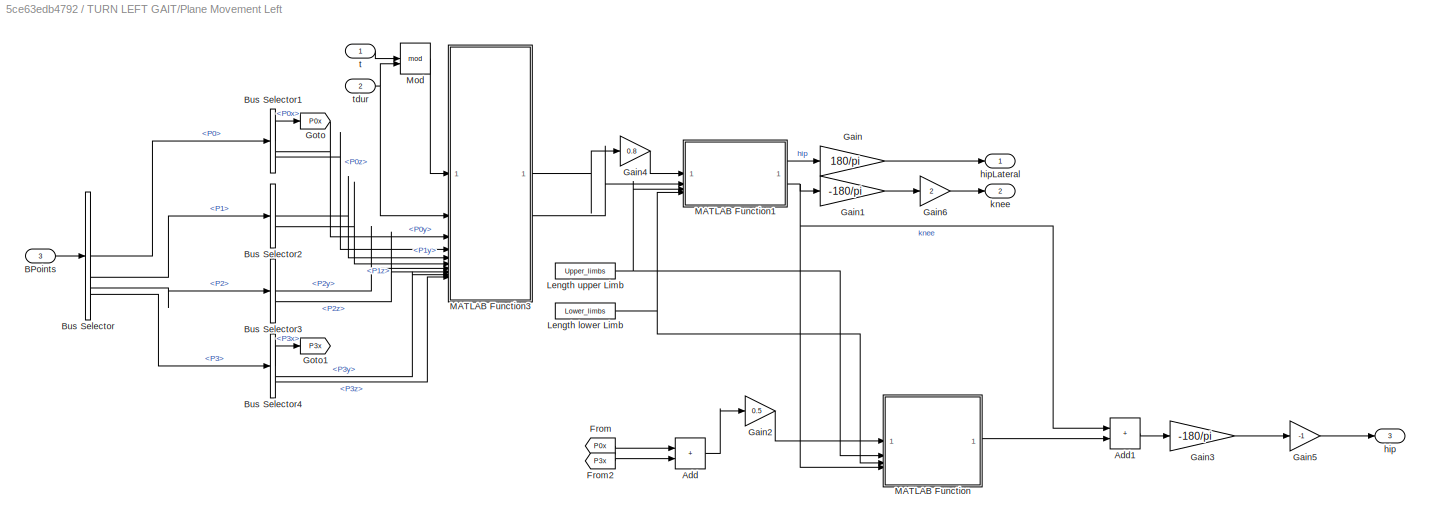
BLOCK [SubSystem] TURN LEFT GAIT/Plane Movement Left
BLOCK [Sum] TURN LEFT GAIT/Plane Movement Left/Add
  IconShape = rectangular
BLOCK [Sum] TURN LEFT GAIT/Plane Movement Left/Add1
  IconShape = rectangular
BLOCK [Inport] TURN LEFT GAIT/Plane Movement Left/BPoints
  Port = 3
BLOCK [BusSelector] TURN LEFT GAIT/Plane Movement Left/Bus Selector
  OutputSignals = P0,P1,P2,P3
BLOCK [BusSelector] TURN LEFT GAIT/Plane Movement Left/Bus Selector1
  OutputSignals = P0x,P0y,P0z
BLOCK [BusSelector] TURN LEFT GAIT/Plane Movement Left/Bus Selector2
  OutputSignals = P1y,P1z
BLOCK [BusSelector] TURN LEFT GAIT/Plane Movement Left/Bus Selector3
  OutputSignals = P2y,P2z
BLOCK [BusSelector] TURN LEFT GAIT/Plane Movement Left/Bus Selector4
  OutputSignals = P3x,P3y,P3z
BLOCK [From] TURN LEFT GAIT/Plane Movement Left/From
  GotoTag = P0x
BLOCK [From] TURN LEFT GAIT/Plane Movement Left/From2
  GotoTag = P3x
BLOCK [Gain] TURN LEFT GAIT/Plane Movement Left/Gain
  Gain = 180/pi
BLOCK [Gain] TURN LEFT GAIT/Plane Movement Left/Gain1
  Gain = -180/pi
BLOCK [Gain] TURN LEFT GAIT/Plane Movement Left/Gain2
  Gain = 0.5
BLOCK [Gain] TURN LEFT GAIT/Plane Movement Left/Gain3
  Gain = -180/pi
BLOCK [Gain] TURN LEFT GAIT/Plane Movement Left/Gain4
  Gain = 0.8
BLOCK [Gain] TURN LEFT GAIT/Plane Movement Left/Gain5
  Gain = -1
BLOCK [Gain] TURN LEFT GAIT/Plane Movement Left/Gain6
  Gain = 2
BLOCK [Goto] TURN LEFT GAIT/Plane Movement Left/Goto
  GotoTag = P0x
BLOCK [Goto] TURN LEFT GAIT/Plane Movement Left/Goto1
  GotoTag = P3x
BLOCK [Constant] TURN LEFT GAIT/Plane Movement Left/Length lower Limb
  Value = Lower_limbs
BLOCK [Constant] TURN LEFT GAIT/Plane Movement Left/Length upper Limb
  Value = Upper_limbs
BLOCK [SubSystem] TURN LEFT GAIT/Plane Movement Left/MATLAB Function
  ErrorFcn = Stateflow.Translate.translate
  PermitHierarchicalResolution = ExplicitOnly
  SFBlockType = MATLAB Function
  TreatAsAtomicUnit = on
BLOCK [Demux] TURN LEFT GAIT/Plane Movement Left/MATLAB Function/ Demux 
  Outputs = 1
BLOCK [S-Function] TURN LEFT GAIT/Plane Movement Left/MATLAB Function/ SFunction 
  EnableBusSupport = on
  FunctionName = sf_sfun
  PortCounts = [4 2]
  SFcnIsStateOwnerBlock = off
  SFunctionDeploymentMode = off
  Tag = Stateflow S-Function 37
BLOCK [Terminator] TURN LEFT GAIT/Plane Movement Left/MATLAB Function/ Terminator 
BLOCK [Inport] TURN LEFT GAIT/Plane Movement Left/MATLAB Function/L1
  Port = 2
BLOCK [Inport] TURN LEFT GAIT/Plane Movement Left/MATLAB Function/L2
  Port = 3
BLOCK [Inport] TURN LEFT GAIT/Plane Movement Left/MATLAB Function/theta1
  Port = 4
BLOCK [Outport] TURN LEFT GAIT/Plane Movement Left/MATLAB Function/theta1Ad
BLOCK [Inport] TURN LEFT GAIT/Plane Movement Left/MATLAB Function/x
BLOCK [SubSystem] TURN LEFT GAIT/Plane Movement Left/MATLAB Function1
  ErrorFcn = Stateflow.Translate.translate
  PermitHierarchicalResolution = ExplicitOnly
  SFBlockType = MATLAB Function
  TreatAsAtomicUnit = on
BLOCK [Demux] TURN LEFT GAIT/Plane Movement Left/MATLAB Function1/ Demux 
  Outputs = 1
BLOCK [S-Function] TURN LEFT GAIT/Plane Movement Left/MATLAB Function1/ SFunction 
  EnableBusSupport = on
  FunctionName = sf_sfun
  PortCounts = [4 3]
  SFcnIsStateOwnerBlock = off
  SFunctionDeploymentMode = off
  Tag = Stateflow S-Function 38
BLOCK [Terminator] TURN LEFT GAIT/Plane Movement Left/MATLAB Function1/ Terminator 
BLOCK [Inport] TURN LEFT GAIT/Plane Movement Left/MATLAB Function1/L1
  Port = 3
BLOCK [Inport] TURN LEFT GAIT/Plane Movement Left/MATLAB Function1/L2
  Port = 4
BLOCK [Outport] TURN LEFT GAIT/Plane Movement Left/MATLAB Function1/theta1
BLOCK [Outport] TURN LEFT GAIT/Plane Movement Left/MATLAB Function1/theta2
  Port = 2
BLOCK [Inport] TURN LEFT GAIT/Plane Movement Left/MATLAB Function1/x
BLOCK [Inport] TURN LEFT GAIT/Plane Movement Left/MATLAB Function1/y
  Port = 2
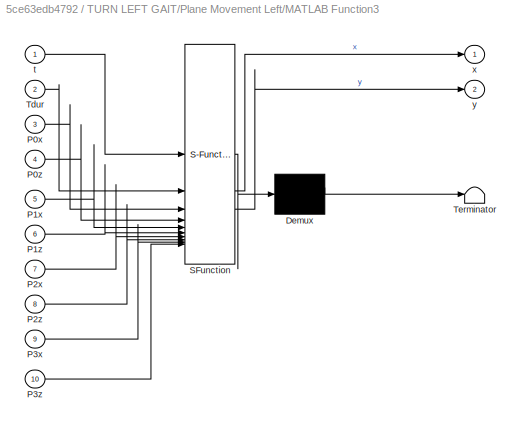
BLOCK [SubSystem] TURN LEFT GAIT/Plane Movement Left/MATLAB Function3
  ErrorFcn = Stateflow.Translate.translate
  PermitHierarchicalResolution = ExplicitOnly
  SFBlockType = MATLAB Function
  TreatAsAtomicUnit = on
BLOCK [Demux] TURN LEFT GAIT/Plane Movement Left/MATLAB Function3/ Demux 
  Outputs = 1
BLOCK [S-Function] TURN LEFT GAIT/Plane Movement Left/MATLAB Function3/ SFunction 
  EnableBusSupport = on
  FunctionName = sf_sfun
  PortCounts = [10 3]
  SFcnIsStateOwnerBlock = off
  SFunctionDeploymentMode = off
  Tag = Stateflow S-Function 39
BLOCK [Terminator] TURN LEFT GAIT/Plane Movement Left/MATLAB Function3/ Terminator 
BLOCK [Inport] TURN LEFT GAIT/Plane Movement Left/MATLAB Function3/P0x
  Port = 3
BLOCK [Inport] TURN LEFT GAIT/Plane Movement Left/MATLAB Function3/P0z
  Port = 4
BLOCK [Inport] TURN LEFT GAIT/Plane Movement Left/MATLAB Function3/P1x
  Port = 5
BLOCK [Inport] TURN LEFT GAIT/Plane Movement Left/MATLAB Function3/P1z
  Port = 6
BLOCK [Inport] TURN LEFT GAIT/Plane Movement Left/MATLAB Function3/P2x
  Port = 7
BLOCK [Inport] TURN LEFT GAIT/Plane Movement Left/MATLAB Function3/P2z
  Port = 8
BLOCK [Inport] TURN LEFT GAIT/Plane Movement Left/MATLAB Function3/P3x
  Port = 9
BLOCK [Inport] TURN LEFT GAIT/Plane Movement Left/MATLAB Function3/P3z
  Port = 10
BLOCK [Inport] TURN LEFT GAIT/Plane Movement Left/MATLAB Function3/Tdur
  Port = 2
BLOCK [Inport] TURN LEFT GAIT/Plane Movement Left/MATLAB Function3/t
BLOCK [Outport] TURN LEFT GAIT/Plane Movement Left/MATLAB Function3/x
BLOCK [Outport] TURN LEFT GAIT/Plane Movement Left/MATLAB Function3/y
  Port = 2
BLOCK [Math] TURN LEFT GAIT/Plane Movement Left/Mod
  Operator = mod
BLOCK [Outport] TURN LEFT GAIT/Plane Movement Left/hip
  Port = 3
BLOCK [Outport] TURN LEFT GAIT/Plane Movement Left/hipLateral
BLOCK [Outport] TURN LEFT GAIT/Plane Movement Left/knee
  Port = 2
BLOCK [Inport] TURN LEFT GAIT/Plane Movement Left/t
BLOCK [Inport] TURN LEFT GAIT/Plane Movement Left/tdur
  Port = 2
BLOCK [SubSystem] TURN LEFT GAIT/Plane Movement Left1
BLOCK [Sum] TURN LEFT GAIT/Plane Movement Left1/Add
  IconShape = rectangular
BLOCK [Sum] TURN LEFT GAIT/Plane Movement Left1/Add1
  IconShape = rectangular
BLOCK [Inport] TURN LEFT GAIT/Plane Movement Left1/BPoints
  Port = 3
BLOCK [BusSelector] TURN LEFT GAIT/Plane Movement Left1/Bus Selector
  OutputSignals = P0,P1,P2,P3
BLOCK [BusSelector] TURN LEFT GAIT/Plane Movement Left1/Bus Selector1
  OutputSignals = P0x,P0y,P0z
BLOCK [BusSelector] TURN LEFT GAIT/Plane Movement Left1/Bus Selector2
  OutputSignals = P1y,P1z
BLOCK [BusSelector] TURN LEFT GAIT/Plane Movement Left1/Bus Selector3
  OutputSignals = P2y,P2z
BLOCK [BusSelector] TURN LEFT GAIT/Plane Movement Left1/Bus Selector4
  OutputSignals = P3x,P3y,P3z
BLOCK [From] TURN LEFT GAIT/Plane Movement Left1/From
  GotoTag = P0x
BLOCK [From] TURN LEFT GAIT/Plane Movement Left1/From2
  GotoTag = P3x
BLOCK [Gain] TURN LEFT GAIT/Plane Movement Left1/Gain
  Gain = 180/pi
BLOCK [Gain] TURN LEFT GAIT/Plane Movement Left1/Gain1
  Gain = -180/pi
BLOCK [Gain] TURN LEFT GAIT/Plane Movement Left1/Gain2
  Gain = 0.5
BLOCK [Gain] TURN LEFT GAIT/Plane Movement Left1/Gain3
  Gain = -180/pi
BLOCK [Gain] TURN LEFT GAIT/Plane Movement Left1/Gain4
  Gain = 0.8
BLOCK [Gain] TURN LEFT GAIT/Plane Movement Left1/Gain5
  Gain = -1
BLOCK [Gain] TURN LEFT GAIT/Plane Movement Left1/Gain6
  Gain = 2
BLOCK [Goto] TURN LEFT GAIT/Plane Movement Left1/Goto
  GotoTag = P0x
BLOCK [Goto] TURN LEFT GAIT/Plane Movement Left1/Goto1
  GotoTag = P3x
BLOCK [Constant] TURN LEFT GAIT/Plane Movement Left1/Length lower Limb
  Value = Lower_limbs
BLOCK [Constant] TURN LEFT GAIT/Plane Movement Left1/Length upper Limb
  Value = Upper_limbs
BLOCK [SubSystem] TURN LEFT GAIT/Plane Movement Left1/MATLAB Function
  ErrorFcn = Stateflow.Translate.translate
  PermitHierarchicalResolution = ExplicitOnly
  SFBlockType = MATLAB Function
  TreatAsAtomicUnit = on
BLOCK [Demux] TURN LEFT GAIT/Plane Movement Left1/MATLAB Function/ Demux 
  Outputs = 1
BLOCK [S-Function] TURN LEFT GAIT/Plane Movement Left1/MATLAB Function/ SFunction 
  EnableBusSupport = on
  FunctionName = sf_sfun
  PortCounts = [4 2]
  SFcnIsStateOwnerBlock = off
  SFunctionDeploymentMode = off
  Tag = Stateflow S-Function 23
BLOCK [Terminator] TURN LEFT GAIT/Plane Movement Left1/MATLAB Function/ Terminator 
BLOCK [Inport] TURN LEFT GAIT/Plane Movement Left1/MATLAB Function/L1
  Port = 2
BLOCK [Inport] TURN LEFT GAIT/Plane Movement Left1/MATLAB Function/L2
  Port = 3
BLOCK [Inport] TURN LEFT GAIT/Plane Movement Left1/MATLAB Function/theta1
  Port = 4
BLOCK [Outport] TURN LEFT GAIT/Plane Movement Left1/MATLAB Function/theta1Ad
BLOCK [Inport] TURN LEFT GAIT/Plane Movement Left1/MATLAB Function/x
BLOCK [SubSystem] TURN LEFT GAIT/Plane Movement Left1/MATLAB Function1
  ErrorFcn = Stateflow.Translate.translate
  PermitHierarchicalResolution = ExplicitOnly
  SFBlockType = MATLAB Function
  TreatAsAtomicUnit = on
BLOCK [Demux] TURN LEFT GAIT/Plane Movement Left1/MATLAB Function1/ Demux 
  Outputs = 1
BLOCK [S-Function] TURN LEFT GAIT/Plane Movement Left1/MATLAB Function1/ SFunction 
  EnableBusSupport = on
  FunctionName = sf_sfun
  PortCounts = [4 3]
  SFcnIsStateOwnerBlock = off
  SFunctionDeploymentMode = off
  Tag = Stateflow S-Function 24
BLOCK [Terminator] TURN LEFT GAIT/Plane Movement Left1/MATLAB Function1/ Terminator 
BLOCK [Inport] TURN LEFT GAIT/Plane Movement Left1/MATLAB Function1/L1
  Port = 3
BLOCK [Inport] TURN LEFT GAIT/Plane Movement Left1/MATLAB Function1/L2
  Port = 4
BLOCK [Outport] TURN LEFT GAIT/Plane Movement Left1/MATLAB Function1/theta1
BLOCK [Outport] TURN LEFT GAIT/Plane Movement Left1/MATLAB Function1/theta2
  Port = 2
BLOCK [Inport] TURN LEFT GAIT/Plane Movement Left1/MATLAB Function1/x
BLOCK [Inport] TURN LEFT GAIT/Plane Movement Left1/MATLAB Function1/y
  Port = 2
BLOCK [SubSystem] TURN LEFT GAIT/Plane Movement Left1/MATLAB Function3
  ErrorFcn = Stateflow.Translate.translate
  PermitHierarchicalResolution = ExplicitOnly
  SFBlockType = MATLAB Function
  TreatAsAtomicUnit = on
BLOCK [Demux] TURN LEFT GAIT/Plane Movement Left1/MATLAB Function3/ Demux 
  Outputs = 1
BLOCK [S-Function] TURN LEFT GAIT/Plane Movement Left1/MATLAB Function3/ SFunction 
  EnableBusSupport = on
  FunctionName = sf_sfun
  PortCounts = [10 3]
  SFcnIsStateOwnerBlock = off
  SFunctionDeploymentMode = off
  Tag = Stateflow S-Function 25
BLOCK [Terminator] TURN LEFT GAIT/Plane Movement Left1/MATLAB Function3/ Terminator 
BLOCK [Inport] TURN LEFT GAIT/Plane Movement Left1/MATLAB Function3/P0x
  Port = 3
BLOCK [Inport] TURN LEFT GAIT/Plane Movement Left1/MATLAB Function3/P0z
  Port = 4
BLOCK [Inport] TURN LEFT GAIT/Plane Movement Left1/MATLAB Function3/P1x
  Port = 5
BLOCK [Inport] TURN LEFT GAIT/Plane Movement Left1/MATLAB Function3/P1z
  Port = 6
BLOCK [Inport] TURN LEFT GAIT/Plane Movement Left1/MATLAB Function3/P2x
  Port = 7
BLOCK [Inport] TURN LEFT GAIT/Plane Movement Left1/MATLAB Function3/P2z
  Port = 8
BLOCK [Inport] TURN LEFT GAIT/Plane Movement Left1/MATLAB Function3/P3x
  Port = 9
BLOCK [Inport] TURN LEFT GAIT/Plane Movement Left1/MATLAB Function3/P3z
  Port = 10
BLOCK [Inport] TURN LEFT GAIT/Plane Movement Left1/MATLAB Function3/Tdur
  Port = 2
BLOCK [Inport] TURN LEFT GAIT/Plane Movement Left1/MATLAB Function3/t
BLOCK [Outport] TURN LEFT GAIT/Plane Movement Left1/MATLAB Function3/x
BLOCK [Outport] TURN LEFT GAIT/Plane Movement Left1/MATLAB Function3/y
  Port = 2
BLOCK [Math] TURN LEFT GAIT/Plane Movement Left1/Mod
  Operator = mod
BLOCK [Outport] TURN LEFT GAIT/Plane Movement Left1/hip
  Port = 3
BLOCK [Outport] TURN LEFT GAIT/Plane Movement Left1/hipLateral
BLOCK [Outport] TURN LEFT GAIT/Plane Movement Left1/knee
  Port = 2
BLOCK [Inport] TURN LEFT GAIT/Plane Movement Left1/t
BLOCK [Inport] TURN LEFT GAIT/Plane Movement Left1/tdur
  Port = 2
BLOCK [SubSystem] TURN LEFT GAIT/Plane Movement Right
BLOCK [Sum] TURN LEFT GAIT/Plane Movement Right/Add
  IconShape = rectangular
BLOCK [Sum] TURN LEFT GAIT/Plane Movement Right/Add1
  IconShape = rectangular
BLOCK [Inport] TURN LEFT GAIT/Plane Movement Right/BPoints
  Port = 3
BLOCK [BusSelector] TURN LEFT GAIT/Plane Movement Right/Bus Selector
  OutputSignals = P0,P1,P2,P3
BLOCK [BusSelector] TURN LEFT GAIT/Plane Movement Right/Bus Selector1
  OutputSignals = P0x,P0y,P0z
BLOCK [BusSelector] TURN LEFT GAIT/Plane Movement Right/Bus Selector2
  OutputSignals = P1y,P1z
BLOCK [BusSelector] TURN LEFT GAIT/Plane Movement Right/Bus Selector3
  OutputSignals = P2y,P2z
BLOCK [BusSelector] TURN LEFT GAIT/Plane Movement Right/Bus Selector4
  OutputSignals = P3x,P3y,P3z
BLOCK [From] TURN LEFT GAIT/Plane Movement Right/From
  GotoTag = P3x
BLOCK [From] TURN LEFT GAIT/Plane Movement Right/From1
  GotoTag = P0x
BLOCK [Gain] TURN LEFT GAIT/Plane Movement Right/Gain
  Gain = 180/pi
BLOCK [Gain] TURN LEFT GAIT/Plane Movement Right/Gain1
  Gain = -180/pi
BLOCK [Gain] TURN LEFT GAIT/Plane Movement Right/Gain2
  Gain = 0.5
BLOCK [Gain] TURN LEFT GAIT/Plane Movement Right/Gain3
  Gain = -180/pi
BLOCK [Gain] TURN LEFT GAIT/Plane Movement Right/Gain4
  Gain = 0.8
BLOCK [Gain] TURN LEFT GAIT/Plane Movement Right/Gain5
  Gain = -1
BLOCK [Gain] TURN LEFT GAIT/Plane Movement Right/Gain6
  Gain = 2
BLOCK [Goto] TURN LEFT GAIT/Plane Movement Right/Goto
  GotoTag = P3x
BLOCK [Goto] TURN LEFT GAIT/Plane Movement Right/Goto1
  GotoTag = P0x
BLOCK [Constant] TURN LEFT GAIT/Plane Movement Right/Length lower Limb
  Value = Lower_limbs
BLOCK [Constant] TURN LEFT GAIT/Plane Movement Right/Length upper Limb
  Value = Upper_limbs
BLOCK [SubSystem] TURN LEFT GAIT/Plane Movement Right/MATLAB Function
  ErrorFcn = Stateflow.Translate.translate
  PermitHierarchicalResolution = ExplicitOnly
  SFBlockType = MATLAB Function
  TreatAsAtomicUnit = on
BLOCK [Demux] TURN LEFT GAIT/Plane Movement Right/MATLAB Function/ Demux 
  Outputs = 1
BLOCK [S-Function] TURN LEFT GAIT/Plane Movement Right/MATLAB Function/ SFunction 
  EnableBusSupport = on
  FunctionName = sf_sfun
  PortCounts = [4 2]
  SFcnIsStateOwnerBlock = off
  SFunctionDeploymentMode = off
  Tag = Stateflow S-Function 40
BLOCK [Terminator] TURN LEFT GAIT/Plane Movement Right/MATLAB Function/ Terminator 
BLOCK [Inport] TURN LEFT GAIT/Plane Movement Right/MATLAB Function/L1
  Port = 2
BLOCK [Inport] TURN LEFT GAIT/Plane Movement Right/MATLAB Function/L2
  Port = 3
BLOCK [Inport] TURN LEFT GAIT/Plane Movement Right/MATLAB Function/theta1
  Port = 4
BLOCK [Outport] TURN LEFT GAIT/Plane Movement Right/MATLAB Function/theta1Ad
BLOCK [Inport] TURN LEFT GAIT/Plane Movement Right/MATLAB Function/x
BLOCK [SubSystem] TURN LEFT GAIT/Plane Movement Right/MATLAB Function1
  ErrorFcn = Stateflow.Translate.translate
  PermitHierarchicalResolution = ExplicitOnly
  SFBlockType = MATLAB Function
  TreatAsAtomicUnit = on
BLOCK [Demux] TURN LEFT GAIT/Plane Movement Right/MATLAB Function1/ Demux 
  Outputs = 1
BLOCK [S-Function] TURN LEFT GAIT/Plane Movement Right/MATLAB Function1/ SFunction 
  EnableBusSupport = on
  FunctionName = sf_sfun
  PortCounts = [4 3]
  SFcnIsStateOwnerBlock = off
  SFunctionDeploymentMode = off
  Tag = Stateflow S-Function 41
BLOCK [Terminator] TURN LEFT GAIT/Plane Movement Right/MATLAB Function1/ Terminator 
BLOCK [Inport] TURN LEFT GAIT/Plane Movement Right/MATLAB Function1/L1
  Port = 3
BLOCK [Inport] TURN LEFT GAIT/Plane Movement Right/MATLAB Function1/L2
  Port = 4
BLOCK [Outport] TURN LEFT GAIT/Plane Movement Right/MATLAB Function1/theta1
BLOCK [Outport] TURN LEFT GAIT/Plane Movement Right/MATLAB Function1/theta2
  Port = 2
BLOCK [Inport] TURN LEFT GAIT/Plane Movement Right/MATLAB Function1/x
BLOCK [Inport] TURN LEFT GAIT/Plane Movement Right/MATLAB Function1/y
  Port = 2
BLOCK [SubSystem] TURN LEFT GAIT/Plane Movement Right/MATLAB Function2
  ErrorFcn = Stateflow.Translate.translate
  PermitHierarchicalResolution = ExplicitOnly
  SFBlockType = MATLAB Function
  TreatAsAtomicUnit = on
BLOCK [Demux] TURN LEFT GAIT/Plane Movement Right/MATLAB Function2/ Demux 
  Outputs = 1
BLOCK [S-Function] TURN LEFT GAIT/Plane Movement Right/MATLAB Function2/ SFunction 
  EnableBusSupport = on
  FunctionName = sf_sfun
  PortCounts = [10 3]
  SFcnIsStateOwnerBlock = off
  SFunctionDeploymentMode = off
  Tag = Stateflow S-Function 42
BLOCK [Terminator] TURN LEFT GAIT/Plane Movement Right/MATLAB Function2/ Terminator 
BLOCK [Inport] TURN LEFT GAIT/Plane Movement Right/MATLAB Function2/P0x
  Port = 3
BLOCK [Inport] TURN LEFT GAIT/Plane Movement Right/MATLAB Function2/P0z
  Port = 4
BLOCK [Inport] TURN LEFT GAIT/Plane Movement Right/MATLAB Function2/P1x
  Port = 5
BLOCK [Inport] TURN LEFT GAIT/Plane Movement Right/MATLAB Function2/P1z
  Port = 6
BLOCK [Inport] TURN LEFT GAIT/Plane Movement Right/MATLAB Function2/P2x
  Port = 7
BLOCK [Inport] TURN LEFT GAIT/Plane Movement Right/MATLAB Function2/P2z
  Port = 8
BLOCK [Inport] TURN LEFT GAIT/Plane Movement Right/MATLAB Function2/P3x
  Port = 9
BLOCK [Inport] TURN LEFT GAIT/Plane Movement Right/MATLAB Function2/P3z
  Port = 10
BLOCK [Inport] TURN LEFT GAIT/Plane Movement Right/MATLAB Function2/Tdur
  Port = 2
BLOCK [Inport] TURN LEFT GAIT/Plane Movement Right/MATLAB Function2/t
BLOCK [Outport] TURN LEFT GAIT/Plane Movement Right/MATLAB Function2/x
BLOCK [Outport] TURN LEFT GAIT/Plane Movement Right/MATLAB Function2/y
  Port = 2
BLOCK [Math] TURN LEFT GAIT/Plane Movement Right/Mod
  Operator = mod
BLOCK [Outport] TURN LEFT GAIT/Plane Movement Right/hip
  Port = 3
BLOCK [Outport] TURN LEFT GAIT/Plane Movement Right/hipLateral
BLOCK [Outport] TURN LEFT GAIT/Plane Movement Right/knee
  Port = 2
BLOCK [Inport] TURN LEFT GAIT/Plane Movement Right/t
BLOCK [Inport] TURN LEFT GAIT/Plane Movement Right/tdur
  Port = 2
BLOCK [SubSystem] TURN LEFT GAIT/Plane Movement Right1
BLOCK [Sum] TURN LEFT GAIT/Plane Movement Right1/Add
  IconShape = rectangular
BLOCK [Sum] TURN LEFT GAIT/Plane Movement Right1/Add1
  IconShape = rectangular
BLOCK [Inport] TURN LEFT GAIT/Plane Movement Right1/BPoints
  Port = 3
BLOCK [BusSelector] TURN LEFT GAIT/Plane Movement Right1/Bus Selector
  OutputSignals = P0,P1,P2,P3
BLOCK [BusSelector] TURN LEFT GAIT/Plane Movement Right1/Bus Selector1
  OutputSignals = P0x,P0y,P0z
BLOCK [BusSelector] TURN LEFT GAIT/Plane Movement Right1/Bus Selector2
  OutputSignals = P1y,P1z
BLOCK [BusSelector] TURN LEFT GAIT/Plane Movement Right1/Bus Selector3
  OutputSignals = P2y,P2z
BLOCK [BusSelector] TURN LEFT GAIT/Plane Movement Right1/Bus Selector4
  OutputSignals = P3x,P3y,P3z
BLOCK [From] TURN LEFT GAIT/Plane Movement Right1/From
  GotoTag = P3x
BLOCK [From] TURN LEFT GAIT/Plane Movement Right1/From1
  GotoTag = P0x
BLOCK [Gain] TURN LEFT GAIT/Plane Movement Right1/Gain
  Gain = 180/pi
BLOCK [Gain] TURN LEFT GAIT/Plane Movement Right1/Gain1
  Gain = -180/pi
BLOCK [Gain] TURN LEFT GAIT/Plane Movement Right1/Gain2
  Gain = 0.5
BLOCK [Gain] TURN LEFT GAIT/Plane Movement Right1/Gain3
  Gain = -180/pi
BLOCK [Gain] TURN LEFT GAIT/Plane Movement Right1/Gain4
  Gain = 0.8
BLOCK [Gain] TURN LEFT GAIT/Plane Movement Right1/Gain5
  Gain = -1
BLOCK [Gain] TURN LEFT GAIT/Plane Movement Right1/Gain6
  Gain = 2
BLOCK [Goto] TURN LEFT GAIT/Plane Movement Right1/Goto
  GotoTag = P3x
BLOCK [Goto] TURN LEFT GAIT/Plane Movement Right1/Goto1
  GotoTag = P0x
BLOCK [Constant] TURN LEFT GAIT/Plane Movement Right1/Length lower Limb
  Value = Lower_limbs
BLOCK [Constant] TURN LEFT GAIT/Plane Movement Right1/Length upper Limb
  Value = Upper_limbs
BLOCK [SubSystem] TURN LEFT GAIT/Plane Movement Right1/MATLAB Function
  ErrorFcn = Stateflow.Translate.translate
  PermitHierarchicalResolution = ExplicitOnly
  SFBlockType = MATLAB Function
  TreatAsAtomicUnit = on
BLOCK [Demux] TURN LEFT GAIT/Plane Movement Right1/MATLAB Function/ Demux 
  Outputs = 1
BLOCK [S-Function] TURN LEFT GAIT/Plane Movement Right1/MATLAB Function/ SFunction 
  EnableBusSupport = on
  FunctionName = sf_sfun
  PortCounts = [4 2]
  SFcnIsStateOwnerBlock = off
  SFunctionDeploymentMode = off
  Tag = Stateflow S-Function 20
BLOCK [Terminator] TURN LEFT GAIT/Plane Movement Right1/MATLAB Function/ Terminator 
BLOCK [Inport] TURN LEFT GAIT/Plane Movement Right1/MATLAB Function/L1
  Port = 2
BLOCK [Inport] TURN LEFT GAIT/Plane Movement Right1/MATLAB Function/L2
  Port = 3
BLOCK [Inport] TURN LEFT GAIT/Plane Movement Right1/MATLAB Function/theta1
  Port = 4
BLOCK [Outport] TURN LEFT GAIT/Plane Movement Right1/MATLAB Function/theta1Ad
BLOCK [Inport] TURN LEFT GAIT/Plane Movement Right1/MATLAB Function/x
BLOCK [SubSystem] TURN LEFT GAIT/Plane Movement Right1/MATLAB Function1
  ErrorFcn = Stateflow.Translate.translate
  PermitHierarchicalResolution = ExplicitOnly
  SFBlockType = MATLAB Function
  TreatAsAtomicUnit = on
BLOCK [Demux] TURN LEFT GAIT/Plane Movement Right1/MATLAB Function1/ Demux 
  Outputs = 1
BLOCK [S-Function] TURN LEFT GAIT/Plane Movement Right1/MATLAB Function1/ SFunction 
  EnableBusSupport = on
  FunctionName = sf_sfun
  PortCounts = [4 3]
  SFcnIsStateOwnerBlock = off
  SFunctionDeploymentMode = off
  Tag = Stateflow S-Function 21
BLOCK [Terminator] TURN LEFT GAIT/Plane Movement Right1/MATLAB Function1/ Terminator 
BLOCK [Inport] TURN LEFT GAIT/Plane Movement Right1/MATLAB Function1/L1
  Port = 3
BLOCK [Inport] TURN LEFT GAIT/Plane Movement Right1/MATLAB Function1/L2
  Port = 4
BLOCK [Outport] TURN LEFT GAIT/Plane Movement Right1/MATLAB Function1/theta1
BLOCK [Outport] TURN LEFT GAIT/Plane Movement Right1/MATLAB Function1/theta2
  Port = 2
BLOCK [Inport] TURN LEFT GAIT/Plane Movement Right1/MATLAB Function1/x
BLOCK [Inport] TURN LEFT GAIT/Plane Movement Right1/MATLAB Function1/y
  Port = 2
BLOCK [SubSystem] TURN LEFT GAIT/Plane Movement Right1/MATLAB Function2
  ErrorFcn = Stateflow.Translate.translate
  PermitHierarchicalResolution = ExplicitOnly
  SFBlockType = MATLAB Function
  TreatAsAtomicUnit = on
BLOCK [Demux] TURN LEFT GAIT/Plane Movement Right1/MATLAB Function2/ Demux 
  Outputs = 1
BLOCK [S-Function] TURN LEFT GAIT/Plane Movement Right1/MATLAB Function2/ SFunction 
  EnableBusSupport = on
  FunctionName = sf_sfun
  PortCounts = [10 3]
  SFcnIsStateOwnerBlock = off
  SFunctionDeploymentMode = off
  Tag = Stateflow S-Function 22
BLOCK [Terminator] TURN LEFT GAIT/Plane Movement Right1/MATLAB Function2/ Terminator 
BLOCK [Inport] TURN LEFT GAIT/Plane Movement Right1/MATLAB Function2/P0x
  Port = 3
BLOCK [Inport] TURN LEFT GAIT/Plane Movement Right1/MATLAB Function2/P0z
  Port = 4
BLOCK [Inport] TURN LEFT GAIT/Plane Movement Right1/MATLAB Function2/P1x
  Port = 5
BLOCK [Inport] TURN LEFT GAIT/Plane Movement Right1/MATLAB Function2/P1z
  Port = 6
BLOCK [Inport] TURN LEFT GAIT/Plane Movement Right1/MATLAB Function2/P2x
  Port = 7
BLOCK [Inport] TURN LEFT GAIT/Plane Movement Right1/MATLAB Function2/P2z
  Port = 8
BLOCK [Inport] TURN LEFT GAIT/Plane Movement Right1/MATLAB Function2/P3x
  Port = 9
BLOCK [Inport] TURN LEFT GAIT/Plane Movement Right1/MATLAB Function2/P3z
  Port = 10
BLOCK [Inport] TURN LEFT GAIT/Plane Movement Right1/MATLAB Function2/Tdur
  Port = 2
BLOCK [Inport] TURN LEFT GAIT/Plane Movement Right1/MATLAB Function2/t
BLOCK [Outport] TURN LEFT GAIT/Plane Movement Right1/MATLAB Function2/x
BLOCK [Outport] TURN LEFT GAIT/Plane Movement Right1/MATLAB Function2/y
  Port = 2
BLOCK [Math] TURN LEFT GAIT/Plane Movement Right1/Mod
  Operator = mod
BLOCK [Outport] TURN LEFT GAIT/Plane Movement Right1/hip
  Port = 3
BLOCK [Outport] TURN LEFT GAIT/Plane Movement Right1/hipLateral
BLOCK [Outport] TURN LEFT GAIT/Plane Movement Right1/knee
  Port = 2
BLOCK [Inport] TURN LEFT GAIT/Plane Movement Right1/t
BLOCK [Inport] TURN LEFT GAIT/Plane Movement Right1/tdur
  Port = 2
BLOCK [SubSystem] TURN LEFT GAIT/Subsystem
BLOCK [Sum] TURN LEFT GAIT/Subsystem/Add
  IconShape = rectangular
  Inputs = +-
BLOCK [Sum] TURN LEFT GAIT/Subsystem/Add1
  IconShape = rectangular
  Inputs = +-
BLOCK [Sum] TURN LEFT GAIT/Subsystem/Add2
  IconShape = rectangular
  Inputs = +-
BLOCK [Gain] TURN LEFT GAIT/Subsystem/Gain
  Gain = 0.25
BLOCK [Gain] TURN LEFT GAIT/Subsystem/Gain1
  Gain = 0.5
BLOCK [Gain] TURN LEFT GAIT/Subsystem/Gain2
  Gain = 0.75
BLOCK [Inport] TURN LEFT GAIT/Subsystem/t
BLOCK [Outport] TURN LEFT GAIT/Subsystem/t_0.25
BLOCK [Outport] TURN LEFT GAIT/Subsystem/t_0.5
  Port = 2
BLOCK [Outport] TURN LEFT GAIT/Subsystem/t_0.75
  Port = 3
BLOCK [Inport] TURN LEFT GAIT/Subsystem/tdur
  Port = 2
BLOCK [Inport] TURN LEFT GAIT/t
BLOCK [Inport] TURN LEFT GAIT/tdur
  Port = 2
BLOCK [SubSystem] TURN RIGHT GAIT
BLOCK [ActionPort] TURN RIGHT GAIT/Action Port
  ActionPortLabel = case [ 3 ]:
BLOCK [Outport] TURN RIGHT GAIT/Angles
BLOCK [Inport] TURN RIGHT GAIT/BPoint
  Port = 3
BLOCK [BusCreator] TURN RIGHT GAIT/Bus Creator
  DisplayOption = bar
  InheritFromInputs = on
  Inputs = 12
BLOCK [SubSystem] TURN RIGHT GAIT/Plane Movement Left
BLOCK [Sum] TURN RIGHT GAIT/Plane Movement Left/Add
  IconShape = rectangular
BLOCK [Sum] TURN RIGHT GAIT/Plane Movement Left/Add1
  IconShape = rectangular
BLOCK [Inport] TURN RIGHT GAIT/Plane Movement Left/BPoints
  Port = 3
BLOCK [BusSelector] TURN RIGHT GAIT/Plane Movement Left/Bus Selector
  OutputSignals = P0,P1,P2,P3
BLOCK [BusSelector] TURN RIGHT GAIT/Plane Movement Left/Bus Selector1
  OutputSignals = P0x,P0y,P0z
BLOCK [BusSelector] TURN RIGHT GAIT/Plane Movement Left/Bus Selector2
  OutputSignals = P1y,P1z
BLOCK [BusSelector] TURN RIGHT GAIT/Plane Movement Left/Bus Selector3
  OutputSignals = P2y,P2z
BLOCK [BusSelector] TURN RIGHT GAIT/Plane Movement Left/Bus Selector4
  OutputSignals = P3x,P3y,P3z
BLOCK [From] TURN RIGHT GAIT/Plane Movement Left/From
  GotoTag = P0x
BLOCK [From] TURN RIGHT GAIT/Plane Movement Left/From2
  GotoTag = P3x
BLOCK [Gain] TURN RIGHT GAIT/Plane Movement Left/Gain
  Gain = 180/pi
BLOCK [Gain] TURN RIGHT GAIT/Plane Movement Left/Gain1
  Gain = -180/pi
BLOCK [Gain] TURN RIGHT GAIT/Plane Movement Left/Gain2
  Gain = 0.5
BLOCK [Gain] TURN RIGHT GAIT/Plane Movement Left/Gain3
  Gain = -180/pi
BLOCK [Gain] TURN RIGHT GAIT/Plane Movement Left/Gain4
  Gain = 0.8
BLOCK [Gain] TURN RIGHT GAIT/Plane Movement Left/Gain5
  Gain = 2
BLOCK [Gain] TURN RIGHT GAIT/Plane Movement Left/Gain6
  Gain = -1
BLOCK [Goto] TURN RIGHT GAIT/Plane Movement Left/Goto
  GotoTag = P0x
BLOCK [Goto] TURN RIGHT GAIT/Plane Movement Left/Goto1
  GotoTag = P3x
BLOCK [Constant] TURN RIGHT GAIT/Plane Movement Left/Length lower Limb
  Value = Lower_limbs
BLOCK [Constant] TURN RIGHT GAIT/Plane Movement Left/Length upper Limb
  Value = Upper_limbs
BLOCK [SubSystem] TURN RIGHT GAIT/Plane Movement Left/MATLAB Function
  ErrorFcn = Stateflow.Translate.translate
  PermitHierarchicalResolution = ExplicitOnly
  SFBlockType = MATLAB Function
  TreatAsAtomicUnit = on
BLOCK [Demux] TURN RIGHT GAIT/Plane Movement Left/MATLAB Function/ Demux 
  Outputs = 1
BLOCK [S-Function] TURN RIGHT GAIT/Plane Movement Left/MATLAB Function/ SFunction 
  EnableBusSupport = on
  FunctionName = sf_sfun
  PortCounts = [4 2]
  SFcnIsStateOwnerBlock = off
  SFunctionDeploymentMode = off
  Tag = Stateflow S-Function 43
BLOCK [Terminator] TURN RIGHT GAIT/Plane Movement Left/MATLAB Function/ Terminator 
BLOCK [Inport] TURN RIGHT GAIT/Plane Movement Left/MATLAB Function/L1
  Port = 2
BLOCK [Inport] TURN RIGHT GAIT/Plane Movement Left/MATLAB Function/L2
  Port = 3
BLOCK [Inport] TURN RIGHT GAIT/Plane Movement Left/MATLAB Function/theta1
  Port = 4
BLOCK [Outport] TURN RIGHT GAIT/Plane Movement Left/MATLAB Function/theta1Ad
BLOCK [Inport] TURN RIGHT GAIT/Plane Movement Left/MATLAB Function/x
BLOCK [SubSystem] TURN RIGHT GAIT/Plane Movement Left/MATLAB Function1
  ErrorFcn = Stateflow.Translate.translate
  PermitHierarchicalResolution = ExplicitOnly
  SFBlockType = MATLAB Function
  TreatAsAtomicUnit = on
BLOCK [Demux] TURN RIGHT GAIT/Plane Movement Left/MATLAB Function1/ Demux 
  Outputs = 1
BLOCK [S-Function] TURN RIGHT GAIT/Plane Movement Left/MATLAB Function1/ SFunction 
  EnableBusSupport = on
  FunctionName = sf_sfun
  PortCounts = [4 3]
  SFcnIsStateOwnerBlock = off
  SFunctionDeploymentMode = off
  Tag = Stateflow S-Function 44
BLOCK [Terminator] TURN RIGHT GAIT/Plane Movement Left/MATLAB Function1/ Terminator 
BLOCK [Inport] TURN RIGHT GAIT/Plane Movement Left/MATLAB Function1/L1
  Port = 3
BLOCK [Inport] TURN RIGHT GAIT/Plane Movement Left/MATLAB Function1/L2
  Port = 4
BLOCK [Outport] TURN RIGHT GAIT/Plane Movement Left/MATLAB Function1/theta1
BLOCK [Outport] TURN RIGHT GAIT/Plane Movement Left/MATLAB Function1/theta2
  Port = 2
BLOCK [Inport] TURN RIGHT GAIT/Plane Movement Left/MATLAB Function1/x
BLOCK [Inport] TURN RIGHT GAIT/Plane Movement Left/MATLAB Function1/y
  Port = 2
BLOCK [SubSystem] TURN RIGHT GAIT/Plane Movement Left/MATLAB Function3
  ErrorFcn = Stateflow.Translate.translate
  PermitHierarchicalResolution = ExplicitOnly
  SFBlockType = MATLAB Function
  TreatAsAtomicUnit = on
BLOCK [Demux] TURN RIGHT GAIT/Plane Movement Left/MATLAB Function3/ Demux 
  Outputs = 1
BLOCK [S-Function] TURN RIGHT GAIT/Plane Movement Left/MATLAB Function3/ SFunction 
  EnableBusSupport = on
  FunctionName = sf_sfun
  PortCounts = [10 3]
  SFcnIsStateOwnerBlock = off
  SFunctionDeploymentMode = off
  Tag = Stateflow S-Function 45
BLOCK [Terminator] TURN RIGHT GAIT/Plane Movement Left/MATLAB Function3/ Terminator 
BLOCK [Inport] TURN RIGHT GAIT/Plane Movement Left/MATLAB Function3/P0x
  Port = 3
BLOCK [Inport] TURN RIGHT GAIT/Plane Movement Left/MATLAB Function3/P0z
  Port = 4
BLOCK [Inport] TURN RIGHT GAIT/Plane Movement Left/MATLAB Function3/P1x
  Port = 5
BLOCK [Inport] TURN RIGHT GAIT/Plane Movement Left/MATLAB Function3/P1z
  Port = 6
BLOCK [Inport] TURN RIGHT GAIT/Plane Movement Left/MATLAB Function3/P2x
  Port = 7
BLOCK [Inport] TURN RIGHT GAIT/Plane Movement Left/MATLAB Function3/P2z
  Port = 8
BLOCK [Inport] TURN RIGHT GAIT/Plane Movement Left/MATLAB Function3/P3x
  Port = 9
BLOCK [Inport] TURN RIGHT GAIT/Plane Movement Left/MATLAB Function3/P3z
  Port = 10
BLOCK [Inport] TURN RIGHT GAIT/Plane Movement Left/MATLAB Function3/Tdur
  Port = 2
BLOCK [Inport] TURN RIGHT GAIT/Plane Movement Left/MATLAB Function3/t
BLOCK [Outport] TURN RIGHT GAIT/Plane Movement Left/MATLAB Function3/x
BLOCK [Outport] TURN RIGHT GAIT/Plane Movement Left/MATLAB Function3/y
  Port = 2
BLOCK [Math] TURN RIGHT GAIT/Plane Movement Left/Mod
  Operator = mod
BLOCK [Outport] TURN RIGHT GAIT/Plane Movement Left/hip
  Port = 3
BLOCK [Outport] TURN RIGHT GAIT/Plane Movement Left/hipLateral
BLOCK [Outport] TURN RIGHT GAIT/Plane Movement Left/knee
  Port = 2
BLOCK [Inport] TURN RIGHT GAIT/Plane Movement Left/t
BLOCK [Inport] TURN RIGHT GAIT/Plane Movement Left/tdur
  Port = 2
BLOCK [SubSystem] TURN RIGHT GAIT/Plane Movement Left1
BLOCK [Sum] TURN RIGHT GAIT/Plane Movement Left1/Add
  IconShape = rectangular
BLOCK [Sum] TURN RIGHT GAIT/Plane Movement Left1/Add1
  IconShape = rectangular
BLOCK [Inport] TURN RIGHT GAIT/Plane Movement Left1/BPoints
  Port = 3
BLOCK [BusSelector] TURN RIGHT GAIT/Plane Movement Left1/Bus Selector
  OutputSignals = P0,P1,P2,P3
BLOCK [BusSelector] TURN RIGHT GAIT/Plane Movement Left1/Bus Selector1
  OutputSignals = P0x,P0y,P0z
BLOCK [BusSelector] TURN RIGHT GAIT/Plane Movement Left1/Bus Selector2
  OutputSignals = P1y,P1z
BLOCK [BusSelector] TURN RIGHT GAIT/Plane Movement Left1/Bus Selector3
  OutputSignals = P2y,P2z
BLOCK [BusSelector] TURN RIGHT GAIT/Plane Movement Left1/Bus Selector4
  OutputSignals = P3x,P3y,P3z
BLOCK [From] TURN RIGHT GAIT/Plane Movement Left1/From
  GotoTag = P0x
BLOCK [From] TURN RIGHT GAIT/Plane Movement Left1/From2
  GotoTag = P3x
BLOCK [Gain] TURN RIGHT GAIT/Plane Movement Left1/Gain
  Gain = 180/pi
BLOCK [Gain] TURN RIGHT GAIT/Plane Movement Left1/Gain1
  Gain = -180/pi
BLOCK [Gain] TURN RIGHT GAIT/Plane Movement Left1/Gain2
  Gain = 0.5
BLOCK [Gain] TURN RIGHT GAIT/Plane Movement Left1/Gain3
  Gain = -180/pi
BLOCK [Gain] TURN RIGHT GAIT/Plane Movement Left1/Gain4
  Gain = 0.8
BLOCK [Gain] TURN RIGHT GAIT/Plane Movement Left1/Gain5
  Gain = 2
BLOCK [Gain] TURN RIGHT GAIT/Plane Movement Left1/Gain6
  Gain = -1
BLOCK [Goto] TURN RIGHT GAIT/Plane Movement Left1/Goto
  GotoTag = P0x
BLOCK [Goto] TURN RIGHT GAIT/Plane Movement Left1/Goto1
  GotoTag = P3x
BLOCK [Constant] TURN RIGHT GAIT/Plane Movement Left1/Length lower Limb
  Value = Lower_limbs
BLOCK [Constant] TURN RIGHT GAIT/Plane Movement Left1/Length upper Limb
  Value = Upper_limbs
BLOCK [SubSystem] TURN RIGHT GAIT/Plane Movement Left1/MATLAB Function
  ErrorFcn = Stateflow.Translate.translate
  PermitHierarchicalResolution = ExplicitOnly
  SFBlockType = MATLAB Function
  TreatAsAtomicUnit = on
BLOCK [Demux] TURN RIGHT GAIT/Plane Movement Left1/MATLAB Function/ Demux 
  Outputs = 1
BLOCK [S-Function] TURN RIGHT GAIT/Plane Movement Left1/MATLAB Function/ SFunction 
  EnableBusSupport = on
  FunctionName = sf_sfun
  PortCounts = [4 2]
  SFcnIsStateOwnerBlock = off
  SFunctionDeploymentMode = off
  Tag = Stateflow S-Function 7
BLOCK [Terminator] TURN RIGHT GAIT/Plane Movement Left1/MATLAB Function/ Terminator 
BLOCK [Inport] TURN RIGHT GAIT/Plane Movement Left1/MATLAB Function/L1
  Port = 2
BLOCK [Inport] TURN RIGHT GAIT/Plane Movement Left1/MATLAB Function/L2
  Port = 3
BLOCK [Inport] TURN RIGHT GAIT/Plane Movement Left1/MATLAB Function/theta1
  Port = 4
BLOCK [Outport] TURN RIGHT GAIT/Plane Movement Left1/MATLAB Function/theta1Ad
BLOCK [Inport] TURN RIGHT GAIT/Plane Movement Left1/MATLAB Function/x
BLOCK [SubSystem] TURN RIGHT GAIT/Plane Movement Left1/MATLAB Function1
  ErrorFcn = Stateflow.Translate.translate
  PermitHierarchicalResolution = ExplicitOnly
  SFBlockType = MATLAB Function
  TreatAsAtomicUnit = on
BLOCK [Demux] TURN RIGHT GAIT/Plane Movement Left1/MATLAB Function1/ Demux 
  Outputs = 1
BLOCK [S-Function] TURN RIGHT GAIT/Plane Movement Left1/MATLAB Function1/ SFunction 
  EnableBusSupport = on
  FunctionName = sf_sfun
  PortCounts = [4 3]
  SFcnIsStateOwnerBlock = off
  SFunctionDeploymentMode = off
  Tag = Stateflow S-Function 8
BLOCK [Terminator] TURN RIGHT GAIT/Plane Movement Left1/MATLAB Function1/ Terminator 
BLOCK [Inport] TURN RIGHT GAIT/Plane Movement Left1/MATLAB Function1/L1
  Port = 3
BLOCK [Inport] TURN RIGHT GAIT/Plane Movement Left1/MATLAB Function1/L2
  Port = 4
BLOCK [Outport] TURN RIGHT GAIT/Plane Movement Left1/MATLAB Function1/theta1
BLOCK [Outport] TURN RIGHT GAIT/Plane Movement Left1/MATLAB Function1/theta2
  Port = 2
BLOCK [Inport] TURN RIGHT GAIT/Plane Movement Left1/MATLAB Function1/x
BLOCK [Inport] TURN RIGHT GAIT/Plane Movement Left1/MATLAB Function1/y
  Port = 2
BLOCK [SubSystem] TURN RIGHT GAIT/Plane Movement Left1/MATLAB Function3
  ErrorFcn = Stateflow.Translate.translate
  PermitHierarchicalResolution = ExplicitOnly
  SFBlockType = MATLAB Function
  TreatAsAtomicUnit = on
BLOCK [Demux] TURN RIGHT GAIT/Plane Movement Left1/MATLAB Function3/ Demux 
  Outputs = 1
BLOCK [S-Function] TURN RIGHT GAIT/Plane Movement Left1/MATLAB Function3/ SFunction 
  EnableBusSupport = on
  FunctionName = sf_sfun
  PortCounts = [10 3]
  SFcnIsStateOwnerBlock = off
  SFunctionDeploymentMode = off
  Tag = Stateflow S-Function 19
BLOCK [Terminator] TURN RIGHT GAIT/Plane Movement Left1/MATLAB Function3/ Terminator 
BLOCK [Inport] TURN RIGHT GAIT/Plane Movement Left1/MATLAB Function3/P0x
  Port = 3
BLOCK [Inport] TURN RIGHT GAIT/Plane Movement Left1/MATLAB Function3/P0z
  Port = 4
BLOCK [Inport] TURN RIGHT GAIT/Plane Movement Left1/MATLAB Function3/P1x
  Port = 5
BLOCK [Inport] TURN RIGHT GAIT/Plane Movement Left1/MATLAB Function3/P1z
  Port = 6
BLOCK [Inport] TURN RIGHT GAIT/Plane Movement Left1/MATLAB Function3/P2x
  Port = 7
BLOCK [Inport] TURN RIGHT GAIT/Plane Movement Left1/MATLAB Function3/P2z
  Port = 8
BLOCK [Inport] TURN RIGHT GAIT/Plane Movement Left1/MATLAB Function3/P3x
  Port = 9
BLOCK [Inport] TURN RIGHT GAIT/Plane Movement Left1/MATLAB Function3/P3z
  Port = 10
BLOCK [Inport] TURN RIGHT GAIT/Plane Movement Left1/MATLAB Function3/Tdur
  Port = 2
BLOCK [Inport] TURN RIGHT GAIT/Plane Movement Left1/MATLAB Function3/t
BLOCK [Outport] TURN RIGHT GAIT/Plane Movement Left1/MATLAB Function3/x
BLOCK [Outport] TURN RIGHT GAIT/Plane Movement Left1/MATLAB Function3/y
  Port = 2
BLOCK [Math] TURN RIGHT GAIT/Plane Movement Left1/Mod
  Operator = mod
BLOCK [Outport] TURN RIGHT GAIT/Plane Movement Left1/hip
  Port = 3
BLOCK [Outport] TURN RIGHT GAIT/Plane Movement Left1/hipLateral
BLOCK [Outport] TURN RIGHT GAIT/Plane Movement Left1/knee
  Port = 2
BLOCK [Inport] TURN RIGHT GAIT/Plane Movement Left1/t
BLOCK [Inport] TURN RIGHT GAIT/Plane Movement Left1/tdur
  Port = 2
BLOCK [SubSystem] TURN RIGHT GAIT/Plane Movement Right
BLOCK [Sum] TURN RIGHT GAIT/Plane Movement Right/Add
  IconShape = rectangular
BLOCK [Sum] TURN RIGHT GAIT/Plane Movement Right/Add1
  IconShape = rectangular
BLOCK [Inport] TURN RIGHT GAIT/Plane Movement Right/BPoints
  Port = 3
BLOCK [BusSelector] TURN RIGHT GAIT/Plane Movement Right/Bus Selector
  OutputSignals = P0,P1,P2,P3
BLOCK [BusSelector] TURN RIGHT GAIT/Plane Movement Right/Bus Selector1
  OutputSignals = P0x,P0y,P0z
BLOCK [BusSelector] TURN RIGHT GAIT/Plane Movement Right/Bus Selector2
  OutputSignals = P1y,P1z
BLOCK [BusSelector] TURN RIGHT GAIT/Plane Movement Right/Bus Selector3
  OutputSignals = P2y,P2z
BLOCK [BusSelector] TURN RIGHT GAIT/Plane Movement Right/Bus Selector4
  OutputSignals = P3x,P3y,P3z
BLOCK [From] TURN RIGHT GAIT/Plane Movement Right/From
  GotoTag = P3x
BLOCK [From] TURN RIGHT GAIT/Plane Movement Right/From1
  GotoTag = P0x
BLOCK [Gain] TURN RIGHT GAIT/Plane Movement Right/Gain
  Gain = 180/pi
BLOCK [Gain] TURN RIGHT GAIT/Plane Movement Right/Gain1
  Gain = -180/pi
BLOCK [Gain] TURN RIGHT GAIT/Plane Movement Right/Gain2
  Gain = 0.5
BLOCK [Gain] TURN RIGHT GAIT/Plane Movement Right/Gain3
  Gain = -180/pi
BLOCK [Gain] TURN RIGHT GAIT/Plane Movement Right/Gain4
  Gain = 0.8
BLOCK [Gain] TURN RIGHT GAIT/Plane Movement Right/Gain5
  Gain = 2
BLOCK [Gain] TURN RIGHT GAIT/Plane Movement Right/Gain6
  Gain = -1
BLOCK [Goto] TURN RIGHT GAIT/Plane Movement Right/Goto
  GotoTag = P3x
BLOCK [Goto] TURN RIGHT GAIT/Plane Movement Right/Goto1
  GotoTag = P0x
BLOCK [Constant] TURN RIGHT GAIT/Plane Movement Right/Length lower Limb
  Value = Lower_limbs
BLOCK [Constant] TURN RIGHT GAIT/Plane Movement Right/Length upper Limb
  Value = Upper_limbs
BLOCK [SubSystem] TURN RIGHT GAIT/Plane Movement Right/MATLAB Function
  ErrorFcn = Stateflow.Translate.translate
  PermitHierarchicalResolution = ExplicitOnly
  SFBlockType = MATLAB Function
  TreatAsAtomicUnit = on
BLOCK [Demux] TURN RIGHT GAIT/Plane Movement Right/MATLAB Function/ Demux 
  Outputs = 1
BLOCK [S-Function] TURN RIGHT GAIT/Plane Movement Right/MATLAB Function/ SFunction 
  EnableBusSupport = on
  FunctionName = sf_sfun
  PortCounts = [4 2]
  SFcnIsStateOwnerBlock = off
  SFunctionDeploymentMode = off
  Tag = Stateflow S-Function 46
BLOCK [Terminator] TURN RIGHT GAIT/Plane Movement Right/MATLAB Function/ Terminator 
BLOCK [Inport] TURN RIGHT GAIT/Plane Movement Right/MATLAB Function/L1
  Port = 2
BLOCK [Inport] TURN RIGHT GAIT/Plane Movement Right/MATLAB Function/L2
  Port = 3
BLOCK [Inport] TURN RIGHT GAIT/Plane Movement Right/MATLAB Function/theta1
  Port = 4
BLOCK [Outport] TURN RIGHT GAIT/Plane Movement Right/MATLAB Function/theta1Ad
BLOCK [Inport] TURN RIGHT GAIT/Plane Movement Right/MATLAB Function/x
BLOCK [SubSystem] TURN RIGHT GAIT/Plane Movement Right/MATLAB Function1
  ErrorFcn = Stateflow.Translate.translate
  PermitHierarchicalResolution = ExplicitOnly
  SFBlockType = MATLAB Function
  TreatAsAtomicUnit = on
BLOCK [Demux] TURN RIGHT GAIT/Plane Movement Right/MATLAB Function1/ Demux 
  Outputs = 1
BLOCK [S-Function] TURN RIGHT GAIT/Plane Movement Right/MATLAB Function1/ SFunction 
  EnableBusSupport = on
  FunctionName = sf_sfun
  PortCounts = [4 3]
  SFcnIsStateOwnerBlock = off
  SFunctionDeploymentMode = off
  Tag = Stateflow S-Function 47
BLOCK [Terminator] TURN RIGHT GAIT/Plane Movement Right/MATLAB Function1/ Terminator 
BLOCK [Inport] TURN RIGHT GAIT/Plane Movement Right/MATLAB Function1/L1
  Port = 3
BLOCK [Inport] TURN RIGHT GAIT/Plane Movement Right/MATLAB Function1/L2
  Port = 4
BLOCK [Outport] TURN RIGHT GAIT/Plane Movement Right/MATLAB Function1/theta1
BLOCK [Outport] TURN RIGHT GAIT/Plane Movement Right/MATLAB Function1/theta2
  Port = 2
BLOCK [Inport] TURN RIGHT GAIT/Plane Movement Right/MATLAB Function1/x
BLOCK [Inport] TURN RIGHT GAIT/Plane Movement Right/MATLAB Function1/y
  Port = 2
BLOCK [SubSystem] TURN RIGHT GAIT/Plane Movement Right/MATLAB Function2
  ErrorFcn = Stateflow.Translate.translate
  PermitHierarchicalResolution = ExplicitOnly
  SFBlockType = MATLAB Function
  TreatAsAtomicUnit = on
BLOCK [Demux] TURN RIGHT GAIT/Plane Movement Right/MATLAB Function2/ Demux 
  Outputs = 1
BLOCK [S-Function] TURN RIGHT GAIT/Plane Movement Right/MATLAB Function2/ SFunction 
  EnableBusSupport = on
  FunctionName = sf_sfun
  PortCounts = [10 3]
  SFcnIsStateOwnerBlock = off
  SFunctionDeploymentMode = off
  Tag = Stateflow S-Function 48
BLOCK [Terminator] TURN RIGHT GAIT/Plane Movement Right/MATLAB Function2/ Terminator 
BLOCK [Inport] TURN RIGHT GAIT/Plane Movement Right/MATLAB Function2/P0x
  Port = 3
BLOCK [Inport] TURN RIGHT GAIT/Plane Movement Right/MATLAB Function2/P0z
  Port = 4
BLOCK [Inport] TURN RIGHT GAIT/Plane Movement Right/MATLAB Function2/P1x
  Port = 5
BLOCK [Inport] TURN RIGHT GAIT/Plane Movement Right/MATLAB Function2/P1z
  Port = 6
BLOCK [Inport] TURN RIGHT GAIT/Plane Movement Right/MATLAB Function2/P2x
  Port = 7
BLOCK [Inport] TURN RIGHT GAIT/Plane Movement Right/MATLAB Function2/P2z
  Port = 8
BLOCK [Inport] TURN RIGHT GAIT/Plane Movement Right/MATLAB Function2/P3x
  Port = 9
BLOCK [Inport] TURN RIGHT GAIT/Plane Movement Right/MATLAB Function2/P3z
  Port = 10
BLOCK [Inport] TURN RIGHT GAIT/Plane Movement Right/MATLAB Function2/Tdur
  Port = 2
BLOCK [Inport] TURN RIGHT GAIT/Plane Movement Right/MATLAB Function2/t
BLOCK [Outport] TURN RIGHT GAIT/Plane Movement Right/MATLAB Function2/x
BLOCK [Outport] TURN RIGHT GAIT/Plane Movement Right/MATLAB Function2/y
  Port = 2
BLOCK [Math] TURN RIGHT GAIT/Plane Movement Right/Mod
  Operator = mod
BLOCK [Outport] TURN RIGHT GAIT/Plane Movement Right/hip
  Port = 3
BLOCK [Outport] TURN RIGHT GAIT/Plane Movement Right/hipLateral
BLOCK [Outport] TURN RIGHT GAIT/Plane Movement Right/knee
  Port = 2
BLOCK [Inport] TURN RIGHT GAIT/Plane Movement Right/t
BLOCK [Inport] TURN RIGHT GAIT/Plane Movement Right/tdur
  Port = 2
BLOCK [SubSystem] TURN RIGHT GAIT/Plane Movement Right1
BLOCK [Sum] TURN RIGHT GAIT/Plane Movement Right1/Add
  IconShape = rectangular
BLOCK [Sum] TURN RIGHT GAIT/Plane Movement Right1/Add1
  IconShape = rectangular
BLOCK [Inport] TURN RIGHT GAIT/Plane Movement Right1/BPoints
  Port = 3
BLOCK [BusSelector] TURN RIGHT GAIT/Plane Movement Right1/Bus Selector
  OutputSignals = P0,P1,P2,P3
BLOCK [BusSelector] TURN RIGHT GAIT/Plane Movement Right1/Bus Selector1
  OutputSignals = P0x,P0y,P0z
BLOCK [BusSelector] TURN RIGHT GAIT/Plane Movement Right1/Bus Selector2
  OutputSignals = P1y,P1z
BLOCK [BusSelector] TURN RIGHT GAIT/Plane Movement Right1/Bus Selector3
  OutputSignals = P2y,P2z
BLOCK [BusSelector] TURN RIGHT GAIT/Plane Movement Right1/Bus Selector4
  OutputSignals = P3x,P3y,P3z
BLOCK [From] TURN RIGHT GAIT/Plane Movement Right1/From
  GotoTag = P3x
BLOCK [From] TURN RIGHT GAIT/Plane Movement Right1/From1
  GotoTag = P0x
BLOCK [Gain] TURN RIGHT GAIT/Plane Movement Right1/Gain
  Gain = 180/pi
BLOCK [Gain] TURN RIGHT GAIT/Plane Movement Right1/Gain1
  Gain = -180/pi
BLOCK [Gain] TURN RIGHT GAIT/Plane Movement Right1/Gain2
  Gain = 0.5
BLOCK [Gain] TURN RIGHT GAIT/Plane Movement Right1/Gain3
  Gain = -180/pi
BLOCK [Gain] TURN RIGHT GAIT/Plane Movement Right1/Gain4
  Gain = 0.8
BLOCK [Gain] TURN RIGHT GAIT/Plane Movement Right1/Gain5
  Gain = 2
BLOCK [Gain] TURN RIGHT GAIT/Plane Movement Right1/Gain6
  Gain = -1
BLOCK [Goto] TURN RIGHT GAIT/Plane Movement Right1/Goto
  GotoTag = P3x
BLOCK [Goto] TURN RIGHT GAIT/Plane Movement Right1/Goto1
  GotoTag = P0x
BLOCK [Constant] TURN RIGHT GAIT/Plane Movement Right1/Length lower Limb
  Value = Lower_limbs
BLOCK [Constant] TURN RIGHT GAIT/Plane Movement Right1/Length upper Limb
  Value = Upper_limbs
BLOCK [SubSystem] TURN RIGHT GAIT/Plane Movement Right1/MATLAB Function
  ErrorFcn = Stateflow.Translate.translate
  PermitHierarchicalResolution = ExplicitOnly
  SFBlockType = MATLAB Function
  TreatAsAtomicUnit = on
BLOCK [Demux] TURN RIGHT GAIT/Plane Movement Right1/MATLAB Function/ Demux 
  Outputs = 1
BLOCK [S-Function] TURN RIGHT GAIT/Plane Movement Right1/MATLAB Function/ SFunction 
  EnableBusSupport = on
  FunctionName = sf_sfun
  PortCounts = [4 2]
  SFcnIsStateOwnerBlock = off
  SFunctionDeploymentMode = off
  Tag = Stateflow S-Function 1
BLOCK [Terminator] TURN RIGHT GAIT/Plane Movement Right1/MATLAB Function/ Terminator 
BLOCK [Inport] TURN RIGHT GAIT/Plane Movement Right1/MATLAB Function/L1
  Port = 2
BLOCK [Inport] TURN RIGHT GAIT/Plane Movement Right1/MATLAB Function/L2
  Port = 3
BLOCK [Inport] TURN RIGHT GAIT/Plane Movement Right1/MATLAB Function/theta1
  Port = 4
BLOCK [Outport] TURN RIGHT GAIT/Plane Movement Right1/MATLAB Function/theta1Ad
BLOCK [Inport] TURN RIGHT GAIT/Plane Movement Right1/MATLAB Function/x
BLOCK [SubSystem] TURN RIGHT GAIT/Plane Movement Right1/MATLAB Function1
  ErrorFcn = Stateflow.Translate.translate
  PermitHierarchicalResolution = ExplicitOnly
  SFBlockType = MATLAB Function
  TreatAsAtomicUnit = on
BLOCK [Demux] TURN RIGHT GAIT/Plane Movement Right1/MATLAB Function1/ Demux 
  Outputs = 1
BLOCK [S-Function] TURN RIGHT GAIT/Plane Movement Right1/MATLAB Function1/ SFunction 
  EnableBusSupport = on
  FunctionName = sf_sfun
  PortCounts = [4 3]
  SFcnIsStateOwnerBlock = off
  SFunctionDeploymentMode = off
  Tag = Stateflow S-Function 2
BLOCK [Terminator] TURN RIGHT GAIT/Plane Movement Right1/MATLAB Function1/ Terminator 
BLOCK [Inport] TURN RIGHT GAIT/Plane Movement Right1/MATLAB Function1/L1
  Port = 3
BLOCK [Inport] TURN RIGHT GAIT/Plane Movement Right1/MATLAB Function1/L2
  Port = 4
BLOCK [Outport] TURN RIGHT GAIT/Plane Movement Right1/MATLAB Function1/theta1
BLOCK [Outport] TURN RIGHT GAIT/Plane Movement Right1/MATLAB Function1/theta2
  Port = 2
BLOCK [Inport] TURN RIGHT GAIT/Plane Movement Right1/MATLAB Function1/x
BLOCK [Inport] TURN RIGHT GAIT/Plane Movement Right1/MATLAB Function1/y
  Port = 2
BLOCK [SubSystem] TURN RIGHT GAIT/Plane Movement Right1/MATLAB Function2
  ErrorFcn = Stateflow.Translate.translate
  PermitHierarchicalResolution = ExplicitOnly
  SFBlockType = MATLAB Function
  TreatAsAtomicUnit = on
BLOCK [Demux] TURN RIGHT GAIT/Plane Movement Right1/MATLAB Function2/ Demux 
  Outputs = 1
BLOCK [S-Function] TURN RIGHT GAIT/Plane Movement Right1/MATLAB Function2/ SFunction 
  EnableBusSupport = on
  FunctionName = sf_sfun
  PortCounts = [10 3]
  SFcnIsStateOwnerBlock = off
  SFunctionDeploymentMode = off
  Tag = Stateflow S-Function 3
BLOCK [Terminator] TURN RIGHT GAIT/Plane Movement Right1/MATLAB Function2/ Terminator 
BLOCK [Inport] TURN RIGHT GAIT/Plane Movement Right1/MATLAB Function2/P0x
  Port = 3
BLOCK [Inport] TURN RIGHT GAIT/Plane Movement Right1/MATLAB Function2/P0z
  Port = 4
BLOCK [Inport] TURN RIGHT GAIT/Plane Movement Right1/MATLAB Function2/P1x
  Port = 5
BLOCK [Inport] TURN RIGHT GAIT/Plane Movement Right1/MATLAB Function2/P1z
  Port = 6
BLOCK [Inport] TURN RIGHT GAIT/Plane Movement Right1/MATLAB Function2/P2x
  Port = 7
BLOCK [Inport] TURN RIGHT GAIT/Plane Movement Right1/MATLAB Function2/P2z
  Port = 8
BLOCK [Inport] TURN RIGHT GAIT/Plane Movement Right1/MATLAB Function2/P3x
  Port = 9
BLOCK [Inport] TURN RIGHT GAIT/Plane Movement Right1/MATLAB Function2/P3z
  Port = 10
BLOCK [Inport] TURN RIGHT GAIT/Plane Movement Right1/MATLAB Function2/Tdur
  Port = 2
BLOCK [Inport] TURN RIGHT GAIT/Plane Movement Right1/MATLAB Function2/t
BLOCK [Outport] TURN RIGHT GAIT/Plane Movement Right1/MATLAB Function2/x
BLOCK [Outport] TURN RIGHT GAIT/Plane Movement Right1/MATLAB Function2/y
  Port = 2
BLOCK [Math] TURN RIGHT GAIT/Plane Movement Right1/Mod
  Operator = mod
BLOCK [Outport] TURN RIGHT GAIT/Plane Movement Right1/hip
  Port = 3
BLOCK [Outport] TURN RIGHT GAIT/Plane Movement Right1/hipLateral
BLOCK [Outport] TURN RIGHT GAIT/Plane Movement Right1/knee
  Port = 2
BLOCK [Inport] TURN RIGHT GAIT/Plane Movement Right1/t
BLOCK [Inport] TURN RIGHT GAIT/Plane Movement Right1/tdur
  Port = 2
BLOCK [SubSystem] TURN RIGHT GAIT/Subsystem
BLOCK [Sum] TURN RIGHT GAIT/Subsystem/Add
  IconShape = rectangular
  Inputs = +-
BLOCK [Sum] TURN RIGHT GAIT/Subsystem/Add1
  IconShape = rectangular
  Inputs = +-
BLOCK [Sum] TURN RIGHT GAIT/Subsystem/Add2
  IconShape = rectangular
  Inputs = +-
BLOCK [Gain] TURN RIGHT GAIT/Subsystem/Gain
  Gain = 0.25
BLOCK [Gain] TURN RIGHT GAIT/Subsystem/Gain1
  Gain = 0.5
BLOCK [Gain] TURN RIGHT GAIT/Subsystem/Gain2
  Gain = 0.75
BLOCK [Inport] TURN RIGHT GAIT/Subsystem/t
BLOCK [Outport] TURN RIGHT GAIT/Subsystem/t_0.25
BLOCK [Outport] TURN RIGHT GAIT/Subsystem/t_0.5
  Port = 2
BLOCK [Outport] TURN RIGHT GAIT/Subsystem/t_0.75
  Port = 3
BLOCK [Inport] TURN RIGHT GAIT/Subsystem/tdur
  Port = 2
BLOCK [Inport] TURN RIGHT GAIT/t
BLOCK [Inport] TURN RIGHT GAIT/tdur
  Port = 2
BLOCK [Reference] Translation that the leg flies in the air  REF=sm_lib/Frames and
Transforms/Rigid
Transform
  SourceBlock = sm_lib/Frames and\nTransforms/Rigid\nTransform
  SourceType = Rigid\nTransform
BLOCK [SubSystem] WALK FORWARD GAIT
BLOCK [ActionPort] WALK FORWARD GAIT/Action Port
  ActionPortLabel = case [ 1 ]:
BLOCK [Outport] WALK FORWARD GAIT/Angles
BLOCK [Inport] WALK FORWARD GAIT/BPoint
  Port = 3
BLOCK [BusCreator] WALK FORWARD GAIT/Bus Creator
  DisplayOption = bar
  InheritFromInputs = on
  Inputs = 12
BLOCK [SubSystem] WALK FORWARD GAIT/Plane Movement Forward
BLOCK [Sum] WALK FORWARD GAIT/Plane Movement Forward/Add
  IconShape = rectangular
BLOCK [Inport] WALK FORWARD GAIT/Plane Movement Forward/BPoints
  Port = 3
BLOCK [BusSelector] WALK FORWARD GAIT/Plane Movement Forward/Bus Selector5
  OutputSignals = P0,P1,P2,P3
BLOCK [BusSelector] WALK FORWARD GAIT/Plane Movement Forward/Bus Selector6
  OutputSignals = P0x,P0y,P0z
BLOCK [BusSelector] WALK FORWARD GAIT/Plane Movement Forward/Bus Selector7
  OutputSignals = P1x,P1z
BLOCK [BusSelector] WALK FORWARD GAIT/Plane Movement Forward/Bus Selector8
  OutputSignals = P2x,P2z
BLOCK [BusSelector] WALK FORWARD GAIT/Plane Movement Forward/Bus Selector9
  OutputSignals = P3x,P3y,P3z
BLOCK [From] WALK FORWARD GAIT/Plane Movement Forward/From
  GotoTag = P0y
BLOCK [From] WALK FORWARD GAIT/Plane Movement Forward/From1
  GotoTag = P3y
BLOCK [Gain] WALK FORWARD GAIT/Plane Movement Forward/Gain
  Gain = 180/pi
BLOCK [Gain] WALK FORWARD GAIT/Plane Movement Forward/Gain1
  Gain = -180/pi
BLOCK [Gain] WALK FORWARD GAIT/Plane Movement Forward/Gain2
  Gain = 0.5
BLOCK [Gain] WALK FORWARD GAIT/Plane Movement Forward/Gain3
  Gain = 180/pi
BLOCK [Goto] WALK FORWARD GAIT/Plane Movement Forward/Goto
  GotoTag = P0y
BLOCK [Goto] WALK FORWARD GAIT/Plane Movement Forward/Goto1
  GotoTag = P3y
BLOCK [Outport] WALK FORWARD GAIT/Plane Movement Forward/HipLateral
  Port = 3
BLOCK [SubSystem] WALK FORWARD GAIT/Plane Movement Forward/Lateral angles
  ErrorFcn = Stateflow.Translate.translate
  PermitHierarchicalResolution = ExplicitOnly
  SFBlockType = MATLAB Function
  TreatAsAtomicUnit = on
BLOCK [Demux] WALK FORWARD GAIT/Plane Movement Forward/Lateral angles/ Demux 
  Outputs = 1
BLOCK [S-Function] WALK FORWARD GAIT/Plane Movement Forward/Lateral angles/ SFunction 
  EnableBusSupport = on
  FunctionName = sf_sfun
  PortCounts = [5 2]
  SFcnIsStateOwnerBlock = off
  SFunctionDeploymentMode = off
  Tag = Stateflow S-Function 4
BLOCK [Terminator] WALK FORWARD GAIT/Plane Movement Forward/Lateral angles/ Terminator 
BLOCK [Inport] WALK FORWARD GAIT/Plane Movement Forward/Lateral angles/L1
  Port = 2
BLOCK [Inport] WALK FORWARD GAIT/Plane Movement Forward/Lateral angles/L2
  Port = 3
BLOCK [Inport] WALK FORWARD GAIT/Plane Movement Forward/Lateral angles/theta1
  Port = 4
BLOCK [Inport] WALK FORWARD GAIT/Plane Movement Forward/Lateral angles/theta2
  Port = 5
BLOCK [Outport] WALK FORWARD GAIT/Plane Movement Forward/Lateral angles/theta3
BLOCK [Inport] WALK FORWARD GAIT/Plane Movement Forward/Lateral angles/y
BLOCK [Constant] WALK FORWARD GAIT/Plane Movement Forward/Length lower Limb
  Value = Lower_limbs
BLOCK [Constant] WALK FORWARD GAIT/Plane Movement Forward/Length upper Limb
  Value = Upper_limbs
BLOCK [SubSystem] WALK FORWARD GAIT/Plane Movement Forward/Longitudinal angles
  ErrorFcn = Stateflow.Translate.translate
  PermitHierarchicalResolution = ExplicitOnly
  SFBlockType = MATLAB Function
  TreatAsAtomicUnit = on
BLOCK [Demux] WALK FORWARD GAIT/Plane Movement Forward/Longitudinal angles/ Demux 
  Outputs = 1
BLOCK [S-Function] WALK FORWARD GAIT/Plane Movement Forward/Longitudinal angles/ SFunction 
  EnableBusSupport = on
  FunctionName = sf_sfun
  PortCounts = [4 3]
  SFcnIsStateOwnerBlock = off
  SFunctionDeploymentMode = off
  Tag = Stateflow S-Function 5
BLOCK [Terminator] WALK FORWARD GAIT/Plane Movement Forward/Longitudinal angles/ Terminator 
BLOCK [Inport] WALK FORWARD GAIT/Plane Movement Forward/Longitudinal angles/L1
  Port = 3
BLOCK [Inport] WALK FORWARD GAIT/Plane Movement Forward/Longitudinal angles/L2
  Port = 4
BLOCK [Outport] WALK FORWARD GAIT/Plane Movement Forward/Longitudinal angles/theta1
BLOCK [Outport] WALK FORWARD GAIT/Plane Movement Forward/Longitudinal angles/theta2
  Port = 2
BLOCK [Inport] WALK FORWARD GAIT/Plane Movement Forward/Longitudinal angles/x
BLOCK [Inport] WALK FORWARD GAIT/Plane Movement Forward/Longitudinal angles/y
  Port = 2
BLOCK [SubSystem] WALK FORWARD GAIT/Plane Movement Forward/MATLAB Function2
  ErrorFcn = Stateflow.Translate.translate
  PermitHierarchicalResolution = ExplicitOnly
  SFBlockType = MATLAB Function
  TreatAsAtomicUnit = on
BLOCK [Demux] WALK FORWARD GAIT/Plane Movement Forward/MATLAB Function2/ Demux 
  Outputs = 1
BLOCK [S-Function] WALK FORWARD GAIT/Plane Movement Forward/MATLAB Function2/ SFunction 
  EnableBusSupport = on
  FunctionName = sf_sfun
  PortCounts = [10 3]
  SFcnIsStateOwnerBlock = off
  SFunctionDeploymentMode = off
  Tag = Stateflow S-Function 6
BLOCK [Terminator] WALK FORWARD GAIT/Plane Movement Forward/MATLAB Function2/ Terminator 
BLOCK [Inport] WALK FORWARD GAIT/Plane Movement Forward/MATLAB Function2/P0x
  Port = 3
BLOCK [Inport] WALK FORWARD GAIT/Plane Movement Forward/MATLAB Function2/P0z
  Port = 4
BLOCK [Inport] WALK FORWARD GAIT/Plane Movement Forward/MATLAB Function2/P1x
  Port = 5
BLOCK [Inport] WALK FORWARD GAIT/Plane Movement Forward/MATLAB Function2/P1z
  Port = 6
BLOCK [Inport] WALK FORWARD GAIT/Plane Movement Forward/MATLAB Function2/P2x
  Port = 7
BLOCK [Inport] WALK FORWARD GAIT/Plane Movement Forward/MATLAB Function2/P2z
  Port = 8
BLOCK [Inport] WALK FORWARD GAIT/Plane Movement Forward/MATLAB Function2/P3x
  Port = 9
BLOCK [Inport] WALK FORWARD GAIT/Plane Movement Forward/MATLAB Function2/P3z
  Port = 10
BLOCK [Inport] WALK FORWARD GAIT/Plane Movement Forward/MATLAB Function2/Tdur
  Port = 2
BLOCK [Inport] WALK FORWARD GAIT/Plane Movement Forward/MATLAB Function2/t
BLOCK [Outport] WALK FORWARD GAIT/Plane Movement Forward/MATLAB Function2/x
BLOCK [Outport] WALK FORWARD GAIT/Plane Movement Forward/MATLAB Function2/y
  Port = 2
BLOCK [Math] WALK FORWARD GAIT/Plane Movement Forward/Mod
  Operator = mod
BLOCK [Outport] WALK FORWARD GAIT/Plane Movement Forward/hip
BLOCK [Outport] WALK FORWARD GAIT/Plane Movement Forward/knee
  Port = 2
BLOCK [Inport] WALK FORWARD GAIT/Plane Movement Forward/t
BLOCK [Inport] WALK FORWARD GAIT/Plane Movement Forward/tdur
  Port = 2
BLOCK [SubSystem] WALK FORWARD GAIT/Plane Movement Forward1
BLOCK [Sum] WALK FORWARD GAIT/Plane Movement Forward1/Add
  IconShape = rectangular
BLOCK [Inport] WALK FORWARD GAIT/Plane Movement Forward1/BPoints
  Port = 3
BLOCK [BusSelector] WALK FORWARD GAIT/Plane Movement Forward1/Bus Selector5
  OutputSignals = P0,P1,P2,P3
BLOCK [BusSelector] WALK FORWARD GAIT/Plane Movement Forward1/Bus Selector6
  OutputSignals = P0x,P0y,P0z
BLOCK [BusSelector] WALK FORWARD GAIT/Plane Movement Forward1/Bus Selector7
  OutputSignals = P1x,P1z
BLOCK [BusSelector] WALK FORWARD GAIT/Plane Movement Forward1/Bus Selector8
  OutputSignals = P2x,P2z
BLOCK [BusSelector] WALK FORWARD GAIT/Plane Movement Forward1/Bus Selector9
  OutputSignals = P3x,P3y,P3z
BLOCK [From] WALK FORWARD GAIT/Plane Movement Forward1/From
  GotoTag = P0y
BLOCK [From] WALK FORWARD GAIT/Plane Movement Forward1/From1
  GotoTag = P3y
BLOCK [Gain] WALK FORWARD GAIT/Plane Movement Forward1/Gain
  Gain = 180/pi
BLOCK [Gain] WALK FORWARD GAIT/Plane Movement Forward1/Gain1
  Gain = -180/pi
BLOCK [Gain] WALK FORWARD GAIT/Plane Movement Forward1/Gain2
  Gain = 0.5
BLOCK [Gain] WALK FORWARD GAIT/Plane Movement Forward1/Gain3
  Gain = 180/pi
BLOCK [Goto] WALK FORWARD GAIT/Plane Movement Forward1/Goto
  GotoTag = P0y
BLOCK [Goto] WALK FORWARD GAIT/Plane Movement Forward1/Goto1
  GotoTag = P3y
BLOCK [Outport] WALK FORWARD GAIT/Plane Movement Forward1/HipLateral
  Port = 3
BLOCK [SubSystem] WALK FORWARD GAIT/Plane Movement Forward1/Lateral angles
  ErrorFcn = Stateflow.Translate.translate
  PermitHierarchicalResolution = ExplicitOnly
  SFBlockType = MATLAB Function
  TreatAsAtomicUnit = on
BLOCK [Demux] WALK FORWARD GAIT/Plane Movement Forward1/Lateral angles/ Demux 
  Outputs = 1
BLOCK [S-Function] WALK FORWARD GAIT/Plane Movement Forward1/Lateral angles/ SFunction 
  EnableBusSupport = on
  FunctionName = sf_sfun
  PortCounts = [5 2]
  SFcnIsStateOwnerBlock = off
  SFunctionDeploymentMode = off
  Tag = Stateflow S-Function 9
BLOCK [Terminator] WALK FORWARD GAIT/Plane Movement Forward1/Lateral angles/ Terminator 
BLOCK [Inport] WALK FORWARD GAIT/Plane Movement Forward1/Lateral angles/L1
  Port = 2
BLOCK [Inport] WALK FORWARD GAIT/Plane Movement Forward1/Lateral angles/L2
  Port = 3
BLOCK [Inport] WALK FORWARD GAIT/Plane Movement Forward1/Lateral angles/theta1
  Port = 4
BLOCK [Inport] WALK FORWARD GAIT/Plane Movement Forward1/Lateral angles/theta2
  Port = 5
BLOCK [Outport] WALK FORWARD GAIT/Plane Movement Forward1/Lateral angles/theta3
BLOCK [Inport] WALK FORWARD GAIT/Plane Movement Forward1/Lateral angles/y
BLOCK [Constant] WALK FORWARD GAIT/Plane Movement Forward1/Length lower Limb
  Value = Lower_limbs
BLOCK [Constant] WALK FORWARD GAIT/Plane Movement Forward1/Length upper Limb
  Value = Upper_limbs
BLOCK [SubSystem] WALK FORWARD GAIT/Plane Movement Forward1/Longitudinal angles
  ErrorFcn = Stateflow.Translate.translate
  PermitHierarchicalResolution = ExplicitOnly
  SFBlockType = MATLAB Function
  TreatAsAtomicUnit = on
BLOCK [Demux] WALK FORWARD GAIT/Plane Movement Forward1/Longitudinal angles/ Demux 
  Outputs = 1
BLOCK [S-Function] WALK FORWARD GAIT/Plane Movement Forward1/Longitudinal angles/ SFunction 
  EnableBusSupport = on
  FunctionName = sf_sfun
  PortCounts = [4 3]
  SFcnIsStateOwnerBlock = off
  SFunctionDeploymentMode = off
  Tag = Stateflow S-Function 29
BLOCK [Terminator] WALK FORWARD GAIT/Plane Movement Forward1/Longitudinal angles/ Terminator 
BLOCK [Inport] WALK FORWARD GAIT/Plane Movement Forward1/Longitudinal angles/L1
  Port = 3
BLOCK [Inport] WALK FORWARD GAIT/Plane Movement Forward1/Longitudinal angles/L2
  Port = 4
BLOCK [Outport] WALK FORWARD GAIT/Plane Movement Forward1/Longitudinal angles/theta1
BLOCK [Outport] WALK FORWARD GAIT/Plane Movement Forward1/Longitudinal angles/theta2
  Port = 2
BLOCK [Inport] WALK FORWARD GAIT/Plane Movement Forward1/Longitudinal angles/x
BLOCK [Inport] WALK FORWARD GAIT/Plane Movement Forward1/Longitudinal angles/y
  Port = 2
BLOCK [SubSystem] WALK FORWARD GAIT/Plane Movement Forward1/MATLAB Function2
  ErrorFcn = Stateflow.Translate.translate
  PermitHierarchicalResolution = ExplicitOnly
  SFBlockType = MATLAB Function
  TreatAsAtomicUnit = on
BLOCK [Demux] WALK FORWARD GAIT/Plane Movement Forward1/MATLAB Function2/ Demux 
  Outputs = 1
BLOCK [S-Function] WALK FORWARD GAIT/Plane Movement Forward1/MATLAB Function2/ SFunction 
  EnableBusSupport = on
  FunctionName = sf_sfun
  PortCounts = [10 3]
  SFcnIsStateOwnerBlock = off
  SFunctionDeploymentMode = off
  Tag = Stateflow S-Function 30
BLOCK [Terminator] WALK FORWARD GAIT/Plane Movement Forward1/MATLAB Function2/ Terminator 
BLOCK [Inport] WALK FORWARD GAIT/Plane Movement Forward1/MATLAB Function2/P0x
  Port = 3
BLOCK [Inport] WALK FORWARD GAIT/Plane Movement Forward1/MATLAB Function2/P0z
  Port = 4
BLOCK [Inport] WALK FORWARD GAIT/Plane Movement Forward1/MATLAB Function2/P1x
  Port = 5
BLOCK [Inport] WALK FORWARD GAIT/Plane Movement Forward1/MATLAB Function2/P1z
  Port = 6
BLOCK [Inport] WALK FORWARD GAIT/Plane Movement Forward1/MATLAB Function2/P2x
  Port = 7
BLOCK [Inport] WALK FORWARD GAIT/Plane Movement Forward1/MATLAB Function2/P2z
  Port = 8
BLOCK [Inport] WALK FORWARD GAIT/Plane Movement Forward1/MATLAB Function2/P3x
  Port = 9
BLOCK [Inport] WALK FORWARD GAIT/Plane Movement Forward1/MATLAB Function2/P3z
  Port = 10
BLOCK [Inport] WALK FORWARD GAIT/Plane Movement Forward1/MATLAB Function2/Tdur
  Port = 2
BLOCK [Inport] WALK FORWARD GAIT/Plane Movement Forward1/MATLAB Function2/t
BLOCK [Outport] WALK FORWARD GAIT/Plane Movement Forward1/MATLAB Function2/x
BLOCK [Outport] WALK FORWARD GAIT/Plane Movement Forward1/MATLAB Function2/y
  Port = 2
BLOCK [Math] WALK FORWARD GAIT/Plane Movement Forward1/Mod
  Operator = mod
BLOCK [Outport] WALK FORWARD GAIT/Plane Movement Forward1/hip
BLOCK [Outport] WALK FORWARD GAIT/Plane Movement Forward1/knee
  Port = 2
BLOCK [Inport] WALK FORWARD GAIT/Plane Movement Forward1/t
BLOCK [Inport] WALK FORWARD GAIT/Plane Movement Forward1/tdur
  Port = 2
BLOCK [SubSystem] WALK FORWARD GAIT/Plane Movement Forward2
BLOCK [Sum] WALK FORWARD GAIT/Plane Movement Forward2/Add
  IconShape = rectangular
BLOCK [Inport] WALK FORWARD GAIT/Plane Movement Forward2/BPoints
  Port = 3
BLOCK [BusSelector] WALK FORWARD GAIT/Plane Movement Forward2/Bus Selector5
  OutputSignals = P0,P1,P2,P3
BLOCK [BusSelector] WALK FORWARD GAIT/Plane Movement Forward2/Bus Selector6
  OutputSignals = P0x,P0y,P0z
BLOCK [BusSelector] WALK FORWARD GAIT/Plane Movement Forward2/Bus Selector7
  OutputSignals = P1x,P1z
BLOCK [BusSelector] WALK FORWARD GAIT/Plane Movement Forward2/Bus Selector8
  OutputSignals = P2x,P2z
BLOCK [BusSelector] WALK FORWARD GAIT/Plane Movement Forward2/Bus Selector9
  OutputSignals = P3x,P3y,P3z
BLOCK [From] WALK FORWARD GAIT/Plane Movement Forward2/From
  GotoTag = P0y
BLOCK [From] WALK FORWARD GAIT/Plane Movement Forward2/From1
  GotoTag = P3y
BLOCK [Gain] WALK FORWARD GAIT/Plane Movement Forward2/Gain
  Gain = 180/pi
BLOCK [Gain] WALK FORWARD GAIT/Plane Movement Forward2/Gain1
  Gain = -180/pi
BLOCK [Gain] WALK FORWARD GAIT/Plane Movement Forward2/Gain2
  Gain = 0.5
BLOCK [Gain] WALK FORWARD GAIT/Plane Movement Forward2/Gain3
  Gain = 180/pi
BLOCK [Goto] WALK FORWARD GAIT/Plane Movement Forward2/Goto
  GotoTag = P0y
BLOCK [Goto] WALK FORWARD GAIT/Plane Movement Forward2/Goto1
  GotoTag = P3y
BLOCK [Outport] WALK FORWARD GAIT/Plane Movement Forward2/HipLateral
  Port = 3
BLOCK [SubSystem] WALK FORWARD GAIT/Plane Movement Forward2/Lateral angles
  ErrorFcn = Stateflow.Translate.translate
  PermitHierarchicalResolution = ExplicitOnly
  SFBlockType = MATLAB Function
  TreatAsAtomicUnit = on
BLOCK [Demux] WALK FORWARD GAIT/Plane Movement Forward2/Lateral angles/ Demux 
  Outputs = 1
BLOCK [S-Function] WALK FORWARD GAIT/Plane Movement Forward2/Lateral angles/ SFunction 
  EnableBusSupport = on
  FunctionName = sf_sfun
  PortCounts = [5 2]
  SFcnIsStateOwnerBlock = off
  SFunctionDeploymentMode = off
  Tag = Stateflow S-Function 31
BLOCK [Terminator] WALK FORWARD GAIT/Plane Movement Forward2/Lateral angles/ Terminator 
BLOCK [Inport] WALK FORWARD GAIT/Plane Movement Forward2/Lateral angles/L1
  Port = 2
BLOCK [Inport] WALK FORWARD GAIT/Plane Movement Forward2/Lateral angles/L2
  Port = 3
BLOCK [Inport] WALK FORWARD GAIT/Plane Movement Forward2/Lateral angles/theta1
  Port = 4
BLOCK [Inport] WALK FORWARD GAIT/Plane Movement Forward2/Lateral angles/theta2
  Port = 5
BLOCK [Outport] WALK FORWARD GAIT/Plane Movement Forward2/Lateral angles/theta3
BLOCK [Inport] WALK FORWARD GAIT/Plane Movement Forward2/Lateral angles/y
BLOCK [Constant] WALK FORWARD GAIT/Plane Movement Forward2/Length lower Limb
  Value = Lower_limbs
BLOCK [Constant] WALK FORWARD GAIT/Plane Movement Forward2/Length upper Limb
  Value = Upper_limbs
BLOCK [SubSystem] WALK FORWARD GAIT/Plane Movement Forward2/Longitudinal angles
  ErrorFcn = Stateflow.Translate.translate
  PermitHierarchicalResolution = ExplicitOnly
  SFBlockType = MATLAB Function
  TreatAsAtomicUnit = on
BLOCK [Demux] WALK FORWARD GAIT/Plane Movement Forward2/Longitudinal angles/ Demux 
  Outputs = 1
BLOCK [S-Function] WALK FORWARD GAIT/Plane Movement Forward2/Longitudinal angles/ SFunction 
  EnableBusSupport = on
  FunctionName = sf_sfun
  PortCounts = [4 3]
  SFcnIsStateOwnerBlock = off
  SFunctionDeploymentMode = off
  Tag = Stateflow S-Function 32
BLOCK [Terminator] WALK FORWARD GAIT/Plane Movement Forward2/Longitudinal angles/ Terminator 
BLOCK [Inport] WALK FORWARD GAIT/Plane Movement Forward2/Longitudinal angles/L1
  Port = 3
BLOCK [Inport] WALK FORWARD GAIT/Plane Movement Forward2/Longitudinal angles/L2
  Port = 4
BLOCK [Outport] WALK FORWARD GAIT/Plane Movement Forward2/Longitudinal angles/theta1
BLOCK [Outport] WALK FORWARD GAIT/Plane Movement Forward2/Longitudinal angles/theta2
  Port = 2
BLOCK [Inport] WALK FORWARD GAIT/Plane Movement Forward2/Longitudinal angles/x
BLOCK [Inport] WALK FORWARD GAIT/Plane Movement Forward2/Longitudinal angles/y
  Port = 2
BLOCK [SubSystem] WALK FORWARD GAIT/Plane Movement Forward2/MATLAB Function2
  ErrorFcn = Stateflow.Translate.translate
  PermitHierarchicalResolution = ExplicitOnly
  SFBlockType = MATLAB Function
  TreatAsAtomicUnit = on
BLOCK [Demux] WALK FORWARD GAIT/Plane Movement Forward2/MATLAB Function2/ Demux 
  Outputs = 1
BLOCK [S-Function] WALK FORWARD GAIT/Plane Movement Forward2/MATLAB Function2/ SFunction 
  EnableBusSupport = on
  FunctionName = sf_sfun
  PortCounts = [10 3]
  SFcnIsStateOwnerBlock = off
  SFunctionDeploymentMode = off
  Tag = Stateflow S-Function 33
BLOCK [Terminator] WALK FORWARD GAIT/Plane Movement Forward2/MATLAB Function2/ Terminator 
BLOCK [Inport] WALK FORWARD GAIT/Plane Movement Forward2/MATLAB Function2/P0x
  Port = 3
BLOCK [Inport] WALK FORWARD GAIT/Plane Movement Forward2/MATLAB Function2/P0z
  Port = 4
BLOCK [Inport] WALK FORWARD GAIT/Plane Movement Forward2/MATLAB Function2/P1x
  Port = 5
BLOCK [Inport] WALK FORWARD GAIT/Plane Movement Forward2/MATLAB Function2/P1z
  Port = 6
BLOCK [Inport] WALK FORWARD GAIT/Plane Movement Forward2/MATLAB Function2/P2x
  Port = 7
BLOCK [Inport] WALK FORWARD GAIT/Plane Movement Forward2/MATLAB Function2/P2z
  Port = 8
BLOCK [Inport] WALK FORWARD GAIT/Plane Movement Forward2/MATLAB Function2/P3x
  Port = 9
BLOCK [Inport] WALK FORWARD GAIT/Plane Movement Forward2/MATLAB Function2/P3z
  Port = 10
BLOCK [Inport] WALK FORWARD GAIT/Plane Movement Forward2/MATLAB Function2/Tdur
  Port = 2
BLOCK [Inport] WALK FORWARD GAIT/Plane Movement Forward2/MATLAB Function2/t
BLOCK [Outport] WALK FORWARD GAIT/Plane Movement Forward2/MATLAB Function2/x
BLOCK [Outport] WALK FORWARD GAIT/Plane Movement Forward2/MATLAB Function2/y
  Port = 2
BLOCK [Math] WALK FORWARD GAIT/Plane Movement Forward2/Mod
  Operator = mod
BLOCK [Outport] WALK FORWARD GAIT/Plane Movement Forward2/hip
BLOCK [Outport] WALK FORWARD GAIT/Plane Movement Forward2/knee
  Port = 2
BLOCK [Inport] WALK FORWARD GAIT/Plane Movement Forward2/t
BLOCK [Inport] WALK FORWARD GAIT/Plane Movement Forward2/tdur
  Port = 2
BLOCK [SubSystem] WALK FORWARD GAIT/Plane Movement Forward3
BLOCK [Sum] WALK FORWARD GAIT/Plane Movement Forward3/Add
  IconShape = rectangular
BLOCK [Inport] WALK FORWARD GAIT/Plane Movement Forward3/BPoints
  Port = 3
BLOCK [BusSelector] WALK FORWARD GAIT/Plane Movement Forward3/Bus Selector5
  OutputSignals = P0,P1,P2,P3
BLOCK [BusSelector] WALK FORWARD GAIT/Plane Movement Forward3/Bus Selector6
  OutputSignals = P0x,P0y,P0z
BLOCK [BusSelector] WALK FORWARD GAIT/Plane Movement Forward3/Bus Selector7
  OutputSignals = P1x,P1z
BLOCK [BusSelector] WALK FORWARD GAIT/Plane Movement Forward3/Bus Selector8
  OutputSignals = P2x,P2z
BLOCK [BusSelector] WALK FORWARD GAIT/Plane Movement Forward3/Bus Selector9
  OutputSignals = P3x,P3y,P3z
BLOCK [From] WALK FORWARD GAIT/Plane Movement Forward3/From
  GotoTag = P0y
BLOCK [From] WALK FORWARD GAIT/Plane Movement Forward3/From1
  GotoTag = P3y
BLOCK [Gain] WALK FORWARD GAIT/Plane Movement Forward3/Gain
  Gain = 180/pi
BLOCK [Gain] WALK FORWARD GAIT/Plane Movement Forward3/Gain1
  Gain = -180/pi
BLOCK [Gain] WALK FORWARD GAIT/Plane Movement Forward3/Gain2
  Gain = 0.5
BLOCK [Gain] WALK FORWARD GAIT/Plane Movement Forward3/Gain3
  Gain = 180/pi
BLOCK [Goto] WALK FORWARD GAIT/Plane Movement Forward3/Goto
  GotoTag = P0y
BLOCK [Goto] WALK FORWARD GAIT/Plane Movement Forward3/Goto1
  GotoTag = P3y
BLOCK [Outport] WALK FORWARD GAIT/Plane Movement Forward3/HipLateral
  Port = 3
BLOCK [SubSystem] WALK FORWARD GAIT/Plane Movement Forward3/Lateral angles
  ErrorFcn = Stateflow.Translate.translate
  PermitHierarchicalResolution = ExplicitOnly
  SFBlockType = MATLAB Function
  TreatAsAtomicUnit = on
BLOCK [Demux] WALK FORWARD GAIT/Plane Movement Forward3/Lateral angles/ Demux 
  Outputs = 1
BLOCK [S-Function] WALK FORWARD GAIT/Plane Movement Forward3/Lateral angles/ SFunction 
  EnableBusSupport = on
  FunctionName = sf_sfun
  PortCounts = [5 2]
  SFcnIsStateOwnerBlock = off
  SFunctionDeploymentMode = off
  Tag = Stateflow S-Function 34
BLOCK [Terminator] WALK FORWARD GAIT/Plane Movement Forward3/Lateral angles/ Terminator 
BLOCK [Inport] WALK FORWARD GAIT/Plane Movement Forward3/Lateral angles/L1
  Port = 2
BLOCK [Inport] WALK FORWARD GAIT/Plane Movement Forward3/Lateral angles/L2
  Port = 3
BLOCK [Inport] WALK FORWARD GAIT/Plane Movement Forward3/Lateral angles/theta1
  Port = 4
BLOCK [Inport] WALK FORWARD GAIT/Plane Movement Forward3/Lateral angles/theta2
  Port = 5
BLOCK [Outport] WALK FORWARD GAIT/Plane Movement Forward3/Lateral angles/theta3
BLOCK [Inport] WALK FORWARD GAIT/Plane Movement Forward3/Lateral angles/y
BLOCK [Constant] WALK FORWARD GAIT/Plane Movement Forward3/Length lower Limb
  Value = Lower_limbs
BLOCK [Constant] WALK FORWARD GAIT/Plane Movement Forward3/Length upper Limb
  Value = Upper_limbs
BLOCK [SubSystem] WALK FORWARD GAIT/Plane Movement Forward3/Longitudinal angles
  ErrorFcn = Stateflow.Translate.translate
  PermitHierarchicalResolution = ExplicitOnly
  SFBlockType = MATLAB Function
  TreatAsAtomicUnit = on
BLOCK [Demux] WALK FORWARD GAIT/Plane Movement Forward3/Longitudinal angles/ Demux 
  Outputs = 1
BLOCK [S-Function] WALK FORWARD GAIT/Plane Movement Forward3/Longitudinal angles/ SFunction 
  EnableBusSupport = on
  FunctionName = sf_sfun
  PortCounts = [4 3]
  SFcnIsStateOwnerBlock = off
  SFunctionDeploymentMode = off
  Tag = Stateflow S-Function 35
BLOCK [Terminator] WALK FORWARD GAIT/Plane Movement Forward3/Longitudinal angles/ Terminator 
BLOCK [Inport] WALK FORWARD GAIT/Plane Movement Forward3/Longitudinal angles/L1
  Port = 3
BLOCK [Inport] WALK FORWARD GAIT/Plane Movement Forward3/Longitudinal angles/L2
  Port = 4
BLOCK [Outport] WALK FORWARD GAIT/Plane Movement Forward3/Longitudinal angles/theta1
BLOCK [Outport] WALK FORWARD GAIT/Plane Movement Forward3/Longitudinal angles/theta2
  Port = 2
BLOCK [Inport] WALK FORWARD GAIT/Plane Movement Forward3/Longitudinal angles/x
BLOCK [Inport] WALK FORWARD GAIT/Plane Movement Forward3/Longitudinal angles/y
  Port = 2
BLOCK [SubSystem] WALK FORWARD GAIT/Plane Movement Forward3/MATLAB Function2
  ErrorFcn = Stateflow.Translate.translate
  PermitHierarchicalResolution = ExplicitOnly
  SFBlockType = MATLAB Function
  TreatAsAtomicUnit = on
BLOCK [Demux] WALK FORWARD GAIT/Plane Movement Forward3/MATLAB Function2/ Demux 
  Outputs = 1
BLOCK [S-Function] WALK FORWARD GAIT/Plane Movement Forward3/MATLAB Function2/ SFunction 
  EnableBusSupport = on
  FunctionName = sf_sfun
  PortCounts = [10 3]
  SFcnIsStateOwnerBlock = off
  SFunctionDeploymentMode = off
  Tag = Stateflow S-Function 36
BLOCK [Terminator] WALK FORWARD GAIT/Plane Movement Forward3/MATLAB Function2/ Terminator 
BLOCK [Inport] WALK FORWARD GAIT/Plane Movement Forward3/MATLAB Function2/P0x
  Port = 3
BLOCK [Inport] WALK FORWARD GAIT/Plane Movement Forward3/MATLAB Function2/P0z
  Port = 4
BLOCK [Inport] WALK FORWARD GAIT/Plane Movement Forward3/MATLAB Function2/P1x
  Port = 5
BLOCK [Inport] WALK FORWARD GAIT/Plane Movement Forward3/MATLAB Function2/P1z
  Port = 6
BLOCK [Inport] WALK FORWARD GAIT/Plane Movement Forward3/MATLAB Function2/P2x
  Port = 7
BLOCK [Inport] WALK FORWARD GAIT/Plane Movement Forward3/MATLAB Function2/P2z
  Port = 8
BLOCK [Inport] WALK FORWARD GAIT/Plane Movement Forward3/MATLAB Function2/P3x
  Port = 9
BLOCK [Inport] WALK FORWARD GAIT/Plane Movement Forward3/MATLAB Function2/P3z
  Port = 10
BLOCK [Inport] WALK FORWARD GAIT/Plane Movement Forward3/MATLAB Function2/Tdur
  Port = 2
BLOCK [Inport] WALK FORWARD GAIT/Plane Movement Forward3/MATLAB Function2/t
BLOCK [Outport] WALK FORWARD GAIT/Plane Movement Forward3/MATLAB Function2/x
BLOCK [Outport] WALK FORWARD GAIT/Plane Movement Forward3/MATLAB Function2/y
  Port = 2
BLOCK [Math] WALK FORWARD GAIT/Plane Movement Forward3/Mod
  Operator = mod
BLOCK [Outport] WALK FORWARD GAIT/Plane Movement Forward3/hip
BLOCK [Outport] WALK FORWARD GAIT/Plane Movement Forward3/knee
  Port = 2
BLOCK [Inport] WALK FORWARD GAIT/Plane Movement Forward3/t
BLOCK [Inport] WALK FORWARD GAIT/Plane Movement Forward3/tdur
  Port = 2
BLOCK [SubSystem] WALK FORWARD GAIT/Subsystem
BLOCK [Sum] WALK FORWARD GAIT/Subsystem/Add
  IconShape = rectangular
  Inputs = +-
BLOCK [Sum] WALK FORWARD GAIT/Subsystem/Add1
  IconShape = rectangular
  Inputs = +-
BLOCK [Sum] WALK FORWARD GAIT/Subsystem/Add2
  IconShape = rectangular
  Inputs = +-
BLOCK [Gain] WALK FORWARD GAIT/Subsystem/Gain
  Gain = 0.25
BLOCK [Gain] WALK FORWARD GAIT/Subsystem/Gain1
  Gain = 0.5
BLOCK [Gain] WALK FORWARD GAIT/Subsystem/Gain2
  Gain = 0.75
BLOCK [Inport] WALK FORWARD GAIT/Subsystem/t
BLOCK [Outport] WALK FORWARD GAIT/Subsystem/t_0.25
BLOCK [Outport] WALK FORWARD GAIT/Subsystem/t_0.5
  Port = 2
BLOCK [Outport] WALK FORWARD GAIT/Subsystem/t_0.75
  Port = 3
BLOCK [Inport] WALK FORWARD GAIT/Subsystem/tdur
  Port = 2
BLOCK [Inport] WALK FORWARD GAIT/t
BLOCK [Inport] WALK FORWARD GAIT/tdur
  Port = 2
BLOCK [SubSystem] Walk Back Gait - Bezier Curves
BLOCK [ActionPort] Walk Back Gait - Bezier Curves/Action Port
  ActionPortLabel = case [ 4 ]:
  InitializeStates = reset
BLOCK [Outport] Walk Back Gait - Bezier Curves/Angles
BLOCK [Inport] Walk Back Gait - Bezier Curves/BPoint
  Port = 3
BLOCK [BusCreator] Walk Back Gait - Bezier Curves/Bus Creator1
  DisplayOption = bar
  InheritFromInputs = on
  Inputs = 12
BLOCK [SubSystem] Walk Back Gait - Bezier Curves/Plane Movement BL
BLOCK [Sum] Walk Back Gait - Bezier Curves/Plane Movement BL/Add
  IconShape = rectangular
BLOCK [Inport] Walk Back Gait - Bezier Curves/Plane Movement BL/BPoints
  Port = 3
BLOCK [BusSelector] Walk Back Gait - Bezier Curves/Plane Movement BL/Bus Selector
  OutputSignals = P0,P1,P2,P3
BLOCK [BusSelector] Walk Back Gait - Bezier Curves/Plane Movement BL/Bus Selector1
  OutputSignals = P0x,P0y,P0z
BLOCK [BusSelector] Walk Back Gait - Bezier Curves/Plane Movement BL/Bus Selector2
  OutputSignals = P1x,P1z
BLOCK [BusSelector] Walk Back Gait - Bezier Curves/Plane Movement BL/Bus Selector3
  OutputSignals = P2x,P2z
BLOCK [BusSelector] Walk Back Gait - Bezier Curves/Plane Movement BL/Bus Selector4
  OutputSignals = P3x,P3y,P3z
BLOCK [From] Walk Back Gait - Bezier Curves/Plane Movement BL/From
  GotoTag = P0y
BLOCK [From] Walk Back Gait - Bezier Curves/Plane Movement BL/From1
  GotoTag = P3y
BLOCK [Gain] Walk Back Gait - Bezier Curves/Plane Movement BL/Gain
  Gain = 180/pi
BLOCK [Gain] Walk Back Gait - Bezier Curves/Plane Movement BL/Gain1
  Gain = -180/pi
BLOCK [Gain] Walk Back Gait - Bezier Curves/Plane Movement BL/Gain2
  Gain = 0.5
BLOCK [Gain] Walk Back Gait - Bezier Curves/Plane Movement BL/Gain3
  Gain = 180/pi
BLOCK [Goto] Walk Back Gait - Bezier Curves/Plane Movement BL/Goto
  GotoTag = P0y
BLOCK [Goto] Walk Back Gait - Bezier Curves/Plane Movement BL/Goto1
  GotoTag = P3y
BLOCK [Constant] Walk Back Gait - Bezier Curves/Plane Movement BL/Length lower Limb
  Value = Lower_limbs
BLOCK [Constant] Walk Back Gait - Bezier Curves/Plane Movement BL/Length upper Limb
  Value = Upper_limbs
BLOCK [Reference] Walk Back Gait - Bezier Curves/Plane Movement BL/MATLAB  REF=functionAngles/MATLAB
  SourceBlock = functionAngles/MATLAB
  SourceType = SubSystem
BLOCK [Reference] Walk Back Gait - Bezier Curves/Plane Movement BL/MATLAB Function  REF=functionAngles/MATLAB Function
  SourceBlock = functionAngles/MATLAB Function
  SourceType = SubSystem
BLOCK [Reference] Walk Back Gait - Bezier Curves/Plane Movement BL/MATLAB Function2  REF=functionBezier_backward/MATLAB Function2
  SourceBlock = functionBezier_backward/MATLAB Function2
  SourceType = SubSystem
BLOCK [Math] Walk Back Gait - Bezier Curves/Plane Movement BL/Mod
  Operator = mod
BLOCK [Outport] Walk Back Gait - Bezier Curves/Plane Movement BL/hip
BLOCK [Outport] Walk Back Gait - Bezier Curves/Plane Movement BL/hipLateral
  Port = 3
BLOCK [Outport] Walk Back Gait - Bezier Curves/Plane Movement BL/knee
  Port = 2
BLOCK [Inport] Walk Back Gait - Bezier Curves/Plane Movement BL/t
BLOCK [Inport] Walk Back Gait - Bezier Curves/Plane Movement BL/tdur
  Port = 2
BLOCK [SubSystem] Walk Back Gait - Bezier Curves/Plane Movement BR
BLOCK [Sum] Walk Back Gait - Bezier Curves/Plane Movement BR/Add
  IconShape = rectangular
BLOCK [Inport] Walk Back Gait - Bezier Curves/Plane Movement BR/BPoints
  Port = 3
BLOCK [BusSelector] Walk Back Gait - Bezier Curves/Plane Movement BR/Bus Selector
  OutputSignals = P0,P1,P2,P3
BLOCK [BusSelector] Walk Back Gait - Bezier Curves/Plane Movement BR/Bus Selector1
  OutputSignals = P0x,P0y,P0z
BLOCK [BusSelector] Walk Back Gait - Bezier Curves/Plane Movement BR/Bus Selector2
  OutputSignals = P1x,P1z
BLOCK [BusSelector] Walk Back Gait - Bezier Curves/Plane Movement BR/Bus Selector3
  OutputSignals = P2x,P2z
BLOCK [BusSelector] Walk Back Gait - Bezier Curves/Plane Movement BR/Bus Selector4
  OutputSignals = P3x,P3y,P3z
BLOCK [From] Walk Back Gait - Bezier Curves/Plane Movement BR/From
  GotoTag = P0y
BLOCK [From] Walk Back Gait - Bezier Curves/Plane Movement BR/From1
  GotoTag = P3y
BLOCK [Gain] Walk Back Gait - Bezier Curves/Plane Movement BR/Gain
  Gain = 180/pi
BLOCK [Gain] Walk Back Gait - Bezier Curves/Plane Movement BR/Gain1
  Gain = -180/pi
BLOCK [Gain] Walk Back Gait - Bezier Curves/Plane Movement BR/Gain2
  Gain = 0.5
BLOCK [Gain] Walk Back Gait - Bezier Curves/Plane Movement BR/Gain3
  Gain = 180/pi
BLOCK [Goto] Walk Back Gait - Bezier Curves/Plane Movement BR/Goto
  GotoTag = P0y
BLOCK [Goto] Walk Back Gait - Bezier Curves/Plane Movement BR/Goto1
  GotoTag = P3y
BLOCK [Constant] Walk Back Gait - Bezier Curves/Plane Movement BR/Length lower Limb
  Value = Lower_limbs
BLOCK [Constant] Walk Back Gait - Bezier Curves/Plane Movement BR/Length upper Limb
  Value = Upper_limbs
BLOCK [Reference] Walk Back Gait - Bezier Curves/Plane Movement BR/MATLAB  REF=functionAngles/MATLAB
  SourceBlock = functionAngles/MATLAB
  SourceType = SubSystem
BLOCK [Reference] Walk Back Gait - Bezier Curves/Plane Movement BR/MATLAB Function  REF=functionAngles/MATLAB Function
  SourceBlock = functionAngles/MATLAB Function
  SourceType = SubSystem
BLOCK [Reference] Walk Back Gait - Bezier Curves/Plane Movement BR/MATLAB Function2  REF=functionBezier_backward/MATLAB Function2
  SourceBlock = functionBezier_backward/MATLAB Function2
  SourceType = SubSystem
BLOCK [Math] Walk Back Gait - Bezier Curves/Plane Movement BR/Mod
  Operator = mod
BLOCK [Outport] Walk Back Gait - Bezier Curves/Plane Movement BR/hip
BLOCK [Outport] Walk Back Gait - Bezier Curves/Plane Movement BR/hipLateral
  Port = 3
BLOCK [Outport] Walk Back Gait - Bezier Curves/Plane Movement BR/knee
  Port = 2
BLOCK [Inport] Walk Back Gait - Bezier Curves/Plane Movement BR/t
BLOCK [Inport] Walk Back Gait - Bezier Curves/Plane Movement BR/tdur
  Port = 2
BLOCK [SubSystem] Walk Back Gait - Bezier Curves/Plane Movement FL
BLOCK [Sum] Walk Back Gait - Bezier Curves/Plane Movement FL/Add
  IconShape = rectangular
BLOCK [Inport] Walk Back Gait - Bezier Curves/Plane Movement FL/BPoints
  Port = 3
BLOCK [BusSelector] Walk Back Gait - Bezier Curves/Plane Movement FL/Bus Selector
  OutputSignals = P0,P1,P2,P3
BLOCK [BusSelector] Walk Back Gait - Bezier Curves/Plane Movement FL/Bus Selector1
  OutputSignals = P0x,P0y,P0z
BLOCK [BusSelector] Walk Back Gait - Bezier Curves/Plane Movement FL/Bus Selector2
  OutputSignals = P1x,P1z
BLOCK [BusSelector] Walk Back Gait - Bezier Curves/Plane Movement FL/Bus Selector3
  OutputSignals = P2x,P2z
BLOCK [BusSelector] Walk Back Gait - Bezier Curves/Plane Movement FL/Bus Selector4
  OutputSignals = P3x,P3y,P3z
BLOCK [From] Walk Back Gait - Bezier Curves/Plane Movement FL/From
  GotoTag = P0y
BLOCK [From] Walk Back Gait - Bezier Curves/Plane Movement FL/From1
  GotoTag = P3y
BLOCK [Gain] Walk Back Gait - Bezier Curves/Plane Movement FL/Gain
  Gain = 180/pi
BLOCK [Gain] Walk Back Gait - Bezier Curves/Plane Movement FL/Gain1
  Gain = -180/pi
BLOCK [Gain] Walk Back Gait - Bezier Curves/Plane Movement FL/Gain2
  Gain = 0.5
BLOCK [Gain] Walk Back Gait - Bezier Curves/Plane Movement FL/Gain3
  Gain = 180/pi
BLOCK [Goto] Walk Back Gait - Bezier Curves/Plane Movement FL/Goto
  GotoTag = P0y
BLOCK [Goto] Walk Back Gait - Bezier Curves/Plane Movement FL/Goto1
  GotoTag = P3y
BLOCK [Constant] Walk Back Gait - Bezier Curves/Plane Movement FL/Length lower Limb
  Value = Lower_limbs
BLOCK [Constant] Walk Back Gait - Bezier Curves/Plane Movement FL/Length upper Limb
  Value = Upper_limbs
BLOCK [SubSystem] Walk Back Gait - Bezier Curves/Plane Movement FL/MATLAB
  ErrorFcn = Stateflow.Translate.translate
  PermitHierarchicalResolution = ExplicitOnly
  SFBlockType = MATLAB Function
  TreatAsAtomicUnit = on
BLOCK [SubSystem] Walk Back Gait - Bezier Curves/Plane Movement FL/MATLAB Function
  ErrorFcn = Stateflow.Translate.translate
  PermitHierarchicalResolution = ExplicitOnly
  SFBlockType = MATLAB Function
  TreatAsAtomicUnit = on
BLOCK [Demux] Walk Back Gait - Bezier Curves/Plane Movement FL/MATLAB Function/ Demux 
  Outputs = 1
BLOCK [S-Function] Walk Back Gait - Bezier Curves/Plane Movement FL/MATLAB Function/ SFunction 
  EnableBusSupport = on
  FunctionName = sf_sfun
  PortCounts = [5 2]
  SFcnIsStateOwnerBlock = off
  SFunctionDeploymentMode = off
  Tag = Stateflow S-Function 27
BLOCK [Terminator] Walk Back Gait - Bezier Curves/Plane Movement FL/MATLAB Function/ Terminator 
BLOCK [Inport] Walk Back Gait - Bezier Curves/Plane Movement FL/MATLAB Function/L1
  Port = 2
BLOCK [Inport] Walk Back Gait - Bezier Curves/Plane Movement FL/MATLAB Function/L2
  Port = 3
BLOCK [Inport] Walk Back Gait - Bezier Curves/Plane Movement FL/MATLAB Function/theta1
  Port = 4
BLOCK [Inport] Walk Back Gait - Bezier Curves/Plane Movement FL/MATLAB Function/theta2
  Port = 5
BLOCK [Outport] Walk Back Gait - Bezier Curves/Plane Movement FL/MATLAB Function/theta3
BLOCK [Inport] Walk Back Gait - Bezier Curves/Plane Movement FL/MATLAB Function/y
BLOCK [SubSystem] Walk Back Gait - Bezier Curves/Plane Movement FL/MATLAB Function2
  ErrorFcn = Stateflow.Translate.translate
  PermitHierarchicalResolution = ExplicitOnly
  SFBlockType = MATLAB Function
  TreatAsAtomicUnit = on
BLOCK [Demux] Walk Back Gait - Bezier Curves/Plane Movement FL/MATLAB Function2/ Demux 
  Outputs = 1
BLOCK [S-Function] Walk Back Gait - Bezier Curves/Plane Movement FL/MATLAB Function2/ SFunction 
  EnableBusSupport = on
  FunctionName = sf_sfun
  PortCounts = [10 3]
  SFcnIsStateOwnerBlock = off
  SFunctionDeploymentMode = off
  Tag = Stateflow S-Function 70
BLOCK [Terminator] Walk Back Gait - Bezier Curves/Plane Movement FL/MATLAB Function2/ Terminator 
BLOCK [Inport] Walk Back Gait - Bezier Curves/Plane Movement FL/MATLAB Function2/P0x
  Port = 3
BLOCK [Inport] Walk Back Gait - Bezier Curves/Plane Movement FL/MATLAB Function2/P0z
  Port = 4
BLOCK [Inport] Walk Back Gait - Bezier Curves/Plane Movement FL/MATLAB Function2/P1x
  Port = 5
BLOCK [Inport] Walk Back Gait - Bezier Curves/Plane Movement FL/MATLAB Function2/P1z
  Port = 6
BLOCK [Inport] Walk Back Gait - Bezier Curves/Plane Movement FL/MATLAB Function2/P2x
  Port = 7
BLOCK [Inport] Walk Back Gait - Bezier Curves/Plane Movement FL/MATLAB Function2/P2z
  Port = 8
BLOCK [Inport] Walk Back Gait - Bezier Curves/Plane Movement FL/MATLAB Function2/P3x
  Port = 9
BLOCK [Inport] Walk Back Gait - Bezier Curves/Plane Movement FL/MATLAB Function2/P3z
  Port = 10
BLOCK [Inport] Walk Back Gait - Bezier Curves/Plane Movement FL/MATLAB Function2/Tdur
  Port = 2
BLOCK [Inport] Walk Back Gait - Bezier Curves/Plane Movement FL/MATLAB Function2/t
BLOCK [Outport] Walk Back Gait - Bezier Curves/Plane Movement FL/MATLAB Function2/x
BLOCK [Outport] Walk Back Gait - Bezier Curves/Plane Movement FL/MATLAB Function2/y
  Port = 2
BLOCK [Demux] Walk Back Gait - Bezier Curves/Plane Movement FL/MATLAB/ Demux 
  Outputs = 1
BLOCK [S-Function] Walk Back Gait - Bezier Curves/Plane Movement FL/MATLAB/ SFunction 
  EnableBusSupport = on
  FunctionName = sf_sfun
  PortCounts = [4 3]
  SFcnIsStateOwnerBlock = off
  SFunctionDeploymentMode = off
  Tag = Stateflow S-Function 26
BLOCK [Terminator] Walk Back Gait - Bezier Curves/Plane Movement FL/MATLAB/ Terminator 
BLOCK [Inport] Walk Back Gait - Bezier Curves/Plane Movement FL/MATLAB/L1
  Port = 3
BLOCK [Inport] Walk Back Gait - Bezier Curves/Plane Movement FL/MATLAB/L2
  Port = 4
BLOCK [Outport] Walk Back Gait - Bezier Curves/Plane Movement FL/MATLAB/theta1
BLOCK [Outport] Walk Back Gait - Bezier Curves/Plane Movement FL/MATLAB/theta2
  Port = 2
BLOCK [Inport] Walk Back Gait - Bezier Curves/Plane Movement FL/MATLAB/x
BLOCK [Inport] Walk Back Gait - Bezier Curves/Plane Movement FL/MATLAB/y
  Port = 2
BLOCK [Math] Walk Back Gait - Bezier Curves/Plane Movement FL/Mod
  Operator = mod
BLOCK [Outport] Walk Back Gait - Bezier Curves/Plane Movement FL/hip
BLOCK [Outport] Walk Back Gait - Bezier Curves/Plane Movement FL/hipLateral
  Port = 3
BLOCK [Outport] Walk Back Gait - Bezier Curves/Plane Movement FL/knee
  Port = 2
BLOCK [Inport] Walk Back Gait - Bezier Curves/Plane Movement FL/t
BLOCK [Inport] Walk Back Gait - Bezier Curves/Plane Movement FL/tdur
  Port = 2
BLOCK [SubSystem] Walk Back Gait - Bezier Curves/Plane Movement FR
BLOCK [Sum] Walk Back Gait - Bezier Curves/Plane Movement FR/Add
  IconShape = rectangular
BLOCK [Inport] Walk Back Gait - Bezier Curves/Plane Movement FR/BPoints
  Port = 3
BLOCK [BusSelector] Walk Back Gait - Bezier Curves/Plane Movement FR/Bus Selector
  OutputSignals = P0,P1,P2,P3
BLOCK [BusSelector] Walk Back Gait - Bezier Curves/Plane Movement FR/Bus Selector1
  OutputSignals = P0x,P0y,P0z
BLOCK [BusSelector] Walk Back Gait - Bezier Curves/Plane Movement FR/Bus Selector2
  OutputSignals = P1x,P1z
BLOCK [BusSelector] Walk Back Gait - Bezier Curves/Plane Movement FR/Bus Selector3
  OutputSignals = P2x,P2z
BLOCK [BusSelector] Walk Back Gait - Bezier Curves/Plane Movement FR/Bus Selector4
  OutputSignals = P3x,P3y,P3z
BLOCK [From] Walk Back Gait - Bezier Curves/Plane Movement FR/From
  GotoTag = P0y
BLOCK [From] Walk Back Gait - Bezier Curves/Plane Movement FR/From1
  GotoTag = P3y
BLOCK [Gain] Walk Back Gait - Bezier Curves/Plane Movement FR/Gain
  Gain = 180/pi
BLOCK [Gain] Walk Back Gait - Bezier Curves/Plane Movement FR/Gain1
  Gain = -180/pi
BLOCK [Gain] Walk Back Gait - Bezier Curves/Plane Movement FR/Gain2
  Gain = 0.5
BLOCK [Gain] Walk Back Gait - Bezier Curves/Plane Movement FR/Gain3
  Gain = 180/pi
BLOCK [Goto] Walk Back Gait - Bezier Curves/Plane Movement FR/Goto
  GotoTag = P0y
BLOCK [Goto] Walk Back Gait - Bezier Curves/Plane Movement FR/Goto1
  GotoTag = P3y
BLOCK [Constant] Walk Back Gait - Bezier Curves/Plane Movement FR/Length lower Limb
  Value = Lower_limbs
BLOCK [Constant] Walk Back Gait - Bezier Curves/Plane Movement FR/Length upper Limb
  Value = Upper_limbs
BLOCK [Reference] Walk Back Gait - Bezier Curves/Plane Movement FR/MATLAB  REF=functionAngles/MATLAB
  SourceBlock = functionAngles/MATLAB
  SourceType = SubSystem
BLOCK [Reference] Walk Back Gait - Bezier Curves/Plane Movement FR/MATLAB Function  REF=functionAngles/MATLAB Function
  SourceBlock = functionAngles/MATLAB Function
  SourceType = SubSystem
BLOCK [Reference] Walk Back Gait - Bezier Curves/Plane Movement FR/MATLAB Function2  REF=functionBezier_backward/MATLAB Function2
  SourceBlock = functionBezier_backward/MATLAB Function2
  SourceType = SubSystem
BLOCK [Math] Walk Back Gait - Bezier Curves/Plane Movement FR/Mod
  Operator = mod
BLOCK [Outport] Walk Back Gait - Bezier Curves/Plane Movement FR/hip
BLOCK [Outport] Walk Back Gait - Bezier Curves/Plane Movement FR/hipLateral
  Port = 3
BLOCK [Outport] Walk Back Gait - Bezier Curves/Plane Movement FR/knee
  Port = 2
BLOCK [Inport] Walk Back Gait - Bezier Curves/Plane Movement FR/t
BLOCK [Inport] Walk Back Gait - Bezier Curves/Plane Movement FR/tdur
  Port = 2
BLOCK [SubSystem] Walk Back Gait - Bezier Curves/Subsystem1
BLOCK [Sum] Walk Back Gait - Bezier Curves/Subsystem1/Add
  IconShape = rectangular
  Inputs = +-
BLOCK [Sum] Walk Back Gait - Bezier Curves/Subsystem1/Add1
  IconShape = rectangular
  Inputs = +-
BLOCK [Sum] Walk Back Gait - Bezier Curves/Subsystem1/Add2
  IconShape = rectangular
  Inputs = +-
BLOCK [Gain] Walk Back Gait - Bezier Curves/Subsystem1/Gain
  Gain = 0.25
BLOCK [Gain] Walk Back Gait - Bezier Curves/Subsystem1/Gain1
  Gain = 0.5
BLOCK [Gain] Walk Back Gait - Bezier Curves/Subsystem1/Gain2
  Gain = 0.75
BLOCK [Inport] Walk Back Gait - Bezier Curves/Subsystem1/t
BLOCK [Outport] Walk Back Gait - Bezier Curves/Subsystem1/t_0.25
BLOCK [Outport] Walk Back Gait - Bezier Curves/Subsystem1/t_0.5
  Port = 2
BLOCK [Outport] Walk Back Gait - Bezier Curves/Subsystem1/t_0.75
  Port = 3
BLOCK [Inport] Walk Back Gait - Bezier Curves/Subsystem1/tdur
  Port = 2
BLOCK [Inport] Walk Back Gait - Bezier Curves/t1
BLOCK [Inport] Walk Back Gait - Bezier Curves/tdur1
  Port = 2
BLOCK [Reference] World Frame1  REF=sm_lib/Frames and
Transforms/World Frame
  SourceBlock = sm_lib/Frames and\nTransforms/World Frame
  SourceType = World Frame
BLOCK [Constant] tdur
  Value = 0.2
ANNOTATION (root): 1) Connect your controller to the computer. Use the Scope block to understand the output given by the Joystick Input Block based on the controller inputs (joysticks, buttons, triggers). 2) Write two functions for controlling the robot, considering that if no input is detected, the robot should stand still: 2.1) Buttons (Xbox notation): Y for walking forward, A for walking backwards, X for turning ...<+312ch>
ANNOTATION (root): Control-value signal (work here).
ANNOTATION (root): Robot model from the previous tutorials
ANNOTATION (root): Switch-Case system to select the right gait, depending on the control variable
LINE Bus Creator6:1 -> Goto1:1
LINE Bus Creator7:1 -> Goto2:1
LINE Bus Creator8:1 -> Goto3:1
LINE Bus Creator:1 -> Goto:1
LINE Bus Selector1:1 -> Bus Creator:1
LINE Bus Selector1:10 -> Bus Creator8:1
LINE Bus Selector1:11 -> Bus Creator8:2
LINE Bus Selector1:12 -> Bus Creator8:3
LINE Bus Selector1:2 -> Bus Creator:2
LINE Bus Selector1:3 -> Bus Creator:3
LINE Bus Selector1:4 -> Bus Creator6:1
LINE Bus Selector1:5 -> Bus Creator6:2
LINE Bus Selector1:6 -> Bus Creator6:3
LINE Bus Selector1:7 -> Bus Creator7:1
LINE Bus Selector1:8 -> Bus Creator7:2
LINE Bus Selector1:9 -> Bus Creator7:3
LINE Bus Selector2:1 -> Rear left leg:1
LINE Bus Selector2:2 -> Rear left leg:3
LINE Bus Selector2:3 -> Rear left leg:2
LINE Bus Selector3:1 -> Front right leg:1
LINE Bus Selector3:2 -> Front right leg:3
LINE Bus Selector3:3 -> Front right leg:2
LINE Bus Selector4:1 -> Front left leg:1
LINE Bus Selector4:2 -> Front left leg:3
LINE Bus Selector4:3 -> Front left leg:2
LINE Bus Selector:1 -> Rear right leg:1
LINE Bus Selector:2 -> Rear right leg:3
LINE Bus Selector:3 -> Rear right leg:2
NET Clock2:1 -> TURN LEFT GAIT:1, TURN RIGHT GAIT:1, WALK FORWARD GAIT:1, Walk Back Gait - Bezier Curves:1
LINE Declaration of Bezier Points/Bus Creator1:1 -> Declaration of Bezier Points/Bus Creator5:1
LINE Declaration of Bezier Points/Bus Creator2:1 -> Declaration of Bezier Points/Bus Creator5:2
LINE Declaration of Bezier Points/Bus Creator3:1 -> Declaration of Bezier Points/Bus Creator5:3
LINE Declaration of Bezier Points/Bus Creator4:1 -> Declaration of Bezier Points/Bus Creator5:4
LINE Declaration of Bezier Points/Bus Creator5:1 -> Declaration of Bezier Points/BPoint:1
LINE Declaration of Bezier Points/Constant10:1 -> Declaration of Bezier Points/Bus Creator3:1
LINE Declaration of Bezier Points/Constant11:1 -> Declaration of Bezier Points/Bus Creator3:2
LINE Declaration of Bezier Points/Constant12:1 -> Declaration of Bezier Points/Bus Creator3:3
LINE Declaration of Bezier Points/Constant13:1 -> Declaration of Bezier Points/Bus Creator4:1
LINE Declaration of Bezier Points/Constant14:1 -> Declaration of Bezier Points/Bus Creator4:2
LINE Declaration of Bezier Points/Constant15:1 -> Declaration of Bezier Points/Bus Creator4:3
LINE Declaration of Bezier Points/Constant2:1 -> Declaration of Bezier Points/Bus Creator1:1
LINE Declaration of Bezier Points/Constant5:1 -> Declaration of Bezier Points/Bus Creator1:2
LINE Declaration of Bezier Points/Constant6:1 -> Declaration of Bezier Points/Bus Creator1:3
LINE Declaration of Bezier Points/Constant7:1 -> Declaration of Bezier Points/Bus Creator2:1
LINE Declaration of Bezier Points/Constant8:1 -> Declaration of Bezier Points/Bus Creator2:2
LINE Declaration of Bezier Points/Constant9:1 -> Declaration of Bezier Points/Bus Creator2:3
NET Declaration of Bezier Points:1 -> Stand Still:1, TURN LEFT GAIT:3, TURN RIGHT GAIT:3, WALK FORWARD GAIT:3, Walk Back Gait - Bezier Curves:3
LINE From1:1 -> Bus Selector:1
LINE From2:1 -> Bus Selector3:1
LINE From3:1 -> Bus Selector4:1
LINE From:1 -> Bus Selector2:1
LINE Front left leg/<Hip>:1 -> Front left leg/Simulink-PS Converter2:1
LINE Front left leg/<Knee>:1 -> Front left leg/Simulink-PS Converter:1
LINE Front left leg/Sideways:1 -> Front left leg/Simulink-PS Converter1:1
LINE Front right leg/<Hip>:1 -> Front right leg/Simulink-PS Converter2:1
LINE Front right leg/<Knee>:1 -> Front right leg/Simulink-PS Converter:1
LINE Front right leg/Sideways:1 -> Front right leg/Simulink-PS Converter1:1
LINE Merge:1 -> Bus Selector1:1
LINE Rear left leg/<Hip>:1 -> Rear left leg/Simulink-PS Converter2:1
LINE Rear left leg/<Knee>:1 -> Rear left leg/Simulink-PS Converter:1
LINE Rear left leg/Sideways:1 -> Rear left leg/Simulink-PS Converter1:1
LINE Rear right leg/<Hip>:1 -> Rear right leg/Simulink-PS Converter2:1
LINE Rear right leg/<Knee>:1 -> Rear right leg/Simulink-PS Converter:1
LINE Rear right leg/Sideways:1 -> Rear right leg/Simulink-PS Converter1:1
NET Stand Still/BPoints:1 -> Stand Still/Plane Movement BL:1, Stand Still/Plane Movement BR:1, Stand Still/Plane Movement FL:1, Stand Still/Plane Movement FR:1
LINE Stand Still/Bus Creator:1 -> Stand Still/q:1
LINE Stand Still/Plane Movement BL/Add1:1 -> Stand Still/Plane Movement BL/Gain3:1
LINE Stand Still/Plane Movement BL/Add2:1 -> Stand Still/Plane Movement BL/Gain4:1
LINE Stand Still/Plane Movement BL/Add:1 -> Stand Still/Plane Movement BL/Gain2:1
LINE Stand Still/Plane Movement BL/BPoints:1 -> Stand Still/Plane Movement BL/Bus Selector:1
LINE Stand Still/Plane Movement BL/Bus Selector1:1 -> Stand Still/Plane Movement BL/Add:1
LINE Stand Still/Plane Movement BL/Bus Selector1:2 -> Stand Still/Plane Movement BL/Goto:1
LINE Stand Still/Plane Movement BL/Bus Selector1:3 -> Stand Still/Plane Movement BL/Add1:1
LINE Stand Still/Plane Movement BL/Bus Selector4:1 -> Stand Still/Plane Movement BL/Add:2
LINE Stand Still/Plane Movement BL/Bus Selector4:2 -> Stand Still/Plane Movement BL/Goto1:1
LINE Stand Still/Plane Movement BL/Bus Selector4:3 -> Stand Still/Plane Movement BL/Add1:2
LINE Stand Still/Plane Movement BL/Bus Selector:1 -> Stand Still/Plane Movement BL/Bus Selector1:1
LINE Stand Still/Plane Movement BL/Bus Selector:2 -> Stand Still/Plane Movement BL/Bus Selector4:1
LINE Stand Still/Plane Movement BL/From1:1 -> Stand Still/Plane Movement BL/Add2:2
LINE Stand Still/Plane Movement BL/From:1 -> Stand Still/Plane Movement BL/Add2:1
LINE Stand Still/Plane Movement BL/Gain1:1 -> Stand Still/Plane Movement BL/knee:1
LINE Stand Still/Plane Movement BL/Gain2:1 -> Stand Still/Plane Movement BL/Longitudinal angles:1
LINE Stand Still/Plane Movement BL/Gain3:1 -> Stand Still/Plane Movement BL/Longitudinal angles:2
LINE Stand Still/Plane Movement BL/Gain4:1 -> Stand Still/Plane Movement BL/Lateral joint angle:1
LINE Stand Still/Plane Movement BL/Gain5:1 -> Stand Still/Plane Movement BL/HipLateral:1
LINE Stand Still/Plane Movement BL/Gain:1 -> Stand Still/Plane Movement BL/hip:1
LINE Stand Still/Plane Movement BL/Lateral joint angle:1 -> Stand Still/Plane Movement BL/Gain5:1
NET Stand Still/Plane Movement BL/Length lower Limb:1 -> Stand Still/Plane Movement BL/Lateral joint angle:3, Stand Still/Plane Movement BL/Longitudinal angles:4
NET Stand Still/Plane Movement BL/Length upper Limb:1 -> Stand Still/Plane Movement BL/Lateral joint angle:2, Stand Still/Plane Movement BL/Longitudinal angles:3
NET Stand Still/Plane Movement BL/Longitudinal angles:1 -> Stand Still/Plane Movement BL/Gain:1, Stand Still/Plane Movement BL/Lateral joint angle:4
NET Stand Still/Plane Movement BL/Longitudinal angles:2 -> Stand Still/Plane Movement BL/Gain1:1, Stand Still/Plane Movement BL/Lateral joint angle:5
LINE Stand Still/Plane Movement BL:1 -> Stand Still/Bus Creator:7
LINE Stand Still/Plane Movement BL:2 -> Stand Still/Bus Creator:8
LINE Stand Still/Plane Movement BL:3 -> Stand Still/Bus Creator:9
LINE Stand Still/Plane Movement BR/Add1:1 -> Stand Still/Plane Movement BR/Gain3:1
LINE Stand Still/Plane Movement BR/Add2:1 -> Stand Still/Plane Movement BR/Gain4:1
LINE Stand Still/Plane Movement BR/Add:1 -> Stand Still/Plane Movement BR/Gain2:1
LINE Stand Still/Plane Movement BR/BPoints:1 -> Stand Still/Plane Movement BR/Bus Selector:1
LINE Stand Still/Plane Movement BR/Bus Selector1:1 -> Stand Still/Plane Movement BR/Add:1
LINE Stand Still/Plane Movement BR/Bus Selector1:2 -> Stand Still/Plane Movement BR/Goto:1
LINE Stand Still/Plane Movement BR/Bus Selector1:3 -> Stand Still/Plane Movement BR/Add1:1
LINE Stand Still/Plane Movement BR/Bus Selector4:1 -> Stand Still/Plane Movement BR/Add:2
LINE Stand Still/Plane Movement BR/Bus Selector4:2 -> Stand Still/Plane Movement BR/Goto1:1
LINE Stand Still/Plane Movement BR/Bus Selector4:3 -> Stand Still/Plane Movement BR/Add1:2
LINE Stand Still/Plane Movement BR/Bus Selector:1 -> Stand Still/Plane Movement BR/Bus Selector1:1
LINE Stand Still/Plane Movement BR/Bus Selector:2 -> Stand Still/Plane Movement BR/Bus Selector4:1
LINE Stand Still/Plane Movement BR/From1:1 -> Stand Still/Plane Movement BR/Add2:2
LINE Stand Still/Plane Movement BR/From:1 -> Stand Still/Plane Movement BR/Add2:1
LINE Stand Still/Plane Movement BR/Gain1:1 -> Stand Still/Plane Movement BR/knee:1
LINE Stand Still/Plane Movement BR/Gain2:1 -> Stand Still/Plane Movement BR/Longitudinal angles:1
LINE Stand Still/Plane Movement BR/Gain3:1 -> Stand Still/Plane Movement BR/Longitudinal angles:2
LINE Stand Still/Plane Movement BR/Gain4:1 -> Stand Still/Plane Movement BR/Lateral joint angle:1
LINE Stand Still/Plane Movement BR/Gain5:1 -> Stand Still/Plane Movement BR/HipLateral:1
LINE Stand Still/Plane Movement BR/Gain:1 -> Stand Still/Plane Movement BR/hip:1
LINE Stand Still/Plane Movement BR/Lateral joint angle:1 -> Stand Still/Plane Movement BR/Gain5:1
NET Stand Still/Plane Movement BR/Length lower Limb:1 -> Stand Still/Plane Movement BR/Lateral joint angle:3, Stand Still/Plane Movement BR/Longitudinal angles:4
NET Stand Still/Plane Movement BR/Length upper Limb:1 -> Stand Still/Plane Movement BR/Lateral joint angle:2, Stand Still/Plane Movement BR/Longitudinal angles:3
NET Stand Still/Plane Movement BR/Longitudinal angles:1 -> Stand Still/Plane Movement BR/Gain:1, Stand Still/Plane Movement BR/Lateral joint angle:4
NET Stand Still/Plane Movement BR/Longitudinal angles:2 -> Stand Still/Plane Movement BR/Gain1:1, Stand Still/Plane Movement BR/Lateral joint angle:5
LINE Stand Still/Plane Movement BR:1 -> Stand Still/Bus Creator:10
LINE Stand Still/Plane Movement BR:2 -> Stand Still/Bus Creator:11
LINE Stand Still/Plane Movement BR:3 -> Stand Still/Bus Creator:12
LINE Stand Still/Plane Movement FL/Add1:1 -> Stand Still/Plane Movement FL/Gain3:1
LINE Stand Still/Plane Movement FL/Add2:1 -> Stand Still/Plane Movement FL/Gain4:1
LINE Stand Still/Plane Movement FL/Add:1 -> Stand Still/Plane Movement FL/Gain2:1
LINE Stand Still/Plane Movement FL/BPoints:1 -> Stand Still/Plane Movement FL/Bus Selector:1
LINE Stand Still/Plane Movement FL/Bus Selector1:1 -> Stand Still/Plane Movement FL/Add:1
LINE Stand Still/Plane Movement FL/Bus Selector1:2 -> Stand Still/Plane Movement FL/Goto:1
LINE Stand Still/Plane Movement FL/Bus Selector1:3 -> Stand Still/Plane Movement FL/Add1:1
LINE Stand Still/Plane Movement FL/Bus Selector4:1 -> Stand Still/Plane Movement FL/Add:2
LINE Stand Still/Plane Movement FL/Bus Selector4:2 -> Stand Still/Plane Movement FL/Goto1:1
LINE Stand Still/Plane Movement FL/Bus Selector4:3 -> Stand Still/Plane Movement FL/Add1:2
LINE Stand Still/Plane Movement FL/Bus Selector:1 -> Stand Still/Plane Movement FL/Bus Selector1:1
LINE Stand Still/Plane Movement FL/Bus Selector:2 -> Stand Still/Plane Movement FL/Bus Selector4:1
LINE Stand Still/Plane Movement FL/From1:1 -> Stand Still/Plane Movement FL/Add2:2
LINE Stand Still/Plane Movement FL/From:1 -> Stand Still/Plane Movement FL/Add2:1
LINE Stand Still/Plane Movement FL/Gain1:1 -> Stand Still/Plane Movement FL/knee:1
LINE Stand Still/Plane Movement FL/Gain2:1 -> Stand Still/Plane Movement FL/Longitudinal angles:1
LINE Stand Still/Plane Movement FL/Gain3:1 -> Stand Still/Plane Movement FL/Longitudinal angles:2
LINE Stand Still/Plane Movement FL/Gain4:1 -> Stand Still/Plane Movement FL/Lateral joint angle:1
LINE Stand Still/Plane Movement FL/Gain5:1 -> Stand Still/Plane Movement FL/HipLateral:1
LINE Stand Still/Plane Movement FL/Gain:1 -> Stand Still/Plane Movement FL/hip:1
LINE Stand Still/Plane Movement FL/Lateral joint angle:1 -> Stand Still/Plane Movement FL/Gain5:1
NET Stand Still/Plane Movement FL/Length lower Limb:1 -> Stand Still/Plane Movement FL/Lateral joint angle:3, Stand Still/Plane Movement FL/Longitudinal angles:4
NET Stand Still/Plane Movement FL/Length upper Limb:1 -> Stand Still/Plane Movement FL/Lateral joint angle:2, Stand Still/Plane Movement FL/Longitudinal angles:3
NET Stand Still/Plane Movement FL/Longitudinal angles:1 -> Stand Still/Plane Movement FL/Gain:1, Stand Still/Plane Movement FL/Lateral joint angle:4
NET Stand Still/Plane Movement FL/Longitudinal angles:2 -> Stand Still/Plane Movement FL/Gain1:1, Stand Still/Plane Movement FL/Lateral joint angle:5
LINE Stand Still/Plane Movement FL:1 -> Stand Still/Bus Creator:1
LINE Stand Still/Plane Movement FL:2 -> Stand Still/Bus Creator:2
LINE Stand Still/Plane Movement FL:3 -> Stand Still/Bus Creator:3
LINE Stand Still/Plane Movement FR/Add1:1 -> Stand Still/Plane Movement FR/Gain3:1
LINE Stand Still/Plane Movement FR/Add2:1 -> Stand Still/Plane Movement FR/Gain4:1
LINE Stand Still/Plane Movement FR/Add:1 -> Stand Still/Plane Movement FR/Gain2:1
LINE Stand Still/Plane Movement FR/BPoints:1 -> Stand Still/Plane Movement FR/Bus Selector:1
LINE Stand Still/Plane Movement FR/Bus Selector1:1 -> Stand Still/Plane Movement FR/Add:1
LINE Stand Still/Plane Movement FR/Bus Selector1:2 -> Stand Still/Plane Movement FR/Goto:1
LINE Stand Still/Plane Movement FR/Bus Selector1:3 -> Stand Still/Plane Movement FR/Add1:1
LINE Stand Still/Plane Movement FR/Bus Selector4:1 -> Stand Still/Plane Movement FR/Add:2
LINE Stand Still/Plane Movement FR/Bus Selector4:2 -> Stand Still/Plane Movement FR/Goto1:1
LINE Stand Still/Plane Movement FR/Bus Selector4:3 -> Stand Still/Plane Movement FR/Add1:2
LINE Stand Still/Plane Movement FR/Bus Selector:1 -> Stand Still/Plane Movement FR/Bus Selector1:1
LINE Stand Still/Plane Movement FR/Bus Selector:2 -> Stand Still/Plane Movement FR/Bus Selector4:1
LINE Stand Still/Plane Movement FR/From1:1 -> Stand Still/Plane Movement FR/Add2:2
LINE Stand Still/Plane Movement FR/From:1 -> Stand Still/Plane Movement FR/Add2:1
LINE Stand Still/Plane Movement FR/Gain1:1 -> Stand Still/Plane Movement FR/knee:1
LINE Stand Still/Plane Movement FR/Gain2:1 -> Stand Still/Plane Movement FR/Longitudinal angles:1
LINE Stand Still/Plane Movement FR/Gain3:1 -> Stand Still/Plane Movement FR/Longitudinal angles:2
LINE Stand Still/Plane Movement FR/Gain4:1 -> Stand Still/Plane Movement FR/Lateral joint angle:1
LINE Stand Still/Plane Movement FR/Gain5:1 -> Stand Still/Plane Movement FR/HipLateral:1
LINE Stand Still/Plane Movement FR/Gain:1 -> Stand Still/Plane Movement FR/hip:1
LINE Stand Still/Plane Movement FR/Lateral joint angle:1 -> Stand Still/Plane Movement FR/Gain5:1
NET Stand Still/Plane Movement FR/Length lower Limb:1 -> Stand Still/Plane Movement FR/Lateral joint angle:3, Stand Still/Plane Movement FR/Longitudinal angles:4
NET Stand Still/Plane Movement FR/Length upper Limb:1 -> Stand Still/Plane Movement FR/Lateral joint angle:2, Stand Still/Plane Movement FR/Longitudinal angles:3
NET Stand Still/Plane Movement FR/Longitudinal angles:1 -> Stand Still/Plane Movement FR/Gain:1, Stand Still/Plane Movement FR/Lateral joint angle:4
NET Stand Still/Plane Movement FR/Longitudinal angles:2 -> Stand Still/Plane Movement FR/Gain1:1, Stand Still/Plane Movement FR/Lateral joint angle:5
LINE Stand Still/Plane Movement FR:1 -> Stand Still/Bus Creator:4
LINE Stand Still/Plane Movement FR:2 -> Stand Still/Bus Creator:5
LINE Stand Still/Plane Movement FR:3 -> Stand Still/Bus Creator:6
LINE Stand Still:1 -> Merge:1
LINE Switch Case:1 -> Stand Still:ifaction
LINE Switch Case:2 -> WALK FORWARD GAIT:ifaction
LINE Switch Case:3 -> TURN LEFT GAIT:ifaction
LINE Switch Case:4 -> TURN RIGHT GAIT:ifaction
LINE Switch Case:5 -> Walk Back Gait - Bezier Curves:ifaction
NET TURN LEFT GAIT/BPoint:1 -> TURN LEFT GAIT/Plane Movement Left1:3, TURN LEFT GAIT/Plane Movement Left:3, TURN LEFT GAIT/Plane Movement Right1:3, TURN LEFT GAIT/Plane Movement Right:3
LINE TURN LEFT GAIT/Bus Creator:1 -> TURN LEFT GAIT/Angles:1
LINE TURN LEFT GAIT/Plane Movement Left/Add1:1 -> TURN LEFT GAIT/Plane Movement Left/Gain3:1
LINE TURN LEFT GAIT/Plane Movement Left/Add:1 -> TURN LEFT GAIT/Plane Movement Left/Gain2:1
LINE TURN LEFT GAIT/Plane Movement Left/BPoints:1 -> TURN LEFT GAIT/Plane Movement Left/Bus Selector:1
LINE TURN LEFT GAIT/Plane Movement Left/Bus Selector1:1 -> TURN LEFT GAIT/Plane Movement Left/Goto:1
LINE TURN LEFT GAIT/Plane Movement Left/Bus Selector1:2 -> TURN LEFT GAIT/Plane Movement Left/MATLAB Function3:3
LINE TURN LEFT GAIT/Plane Movement Left/Bus Selector1:3 -> TURN LEFT GAIT/Plane Movement Left/MATLAB Function3:4
LINE TURN LEFT GAIT/Plane Movement Left/Bus Selector2:1 -> TURN LEFT GAIT/Plane Movement Left/MATLAB Function3:5
LINE TURN LEFT GAIT/Plane Movement Left/Bus Selector2:2 -> TURN LEFT GAIT/Plane Movement Left/MATLAB Function3:6
LINE TURN LEFT GAIT/Plane Movement Left/Bus Selector3:1 -> TURN LEFT GAIT/Plane Movement Left/MATLAB Function3:7
LINE TURN LEFT GAIT/Plane Movement Left/Bus Selector3:2 -> TURN LEFT GAIT/Plane Movement Left/MATLAB Function3:8
LINE TURN LEFT GAIT/Plane Movement Left/Bus Selector4:1 -> TURN LEFT GAIT/Plane Movement Left/Goto1:1
LINE TURN LEFT GAIT/Plane Movement Left/Bus Selector4:2 -> TURN LEFT GAIT/Plane Movement Left/MATLAB Function3:9
LINE TURN LEFT GAIT/Plane Movement Left/Bus Selector4:3 -> TURN LEFT GAIT/Plane Movement Left/MATLAB Function3:10
LINE TURN LEFT GAIT/Plane Movement Left/Bus Selector:1 -> TURN LEFT GAIT/Plane Movement Left/Bus Selector1:1
LINE TURN LEFT GAIT/Plane Movement Left/Bus Selector:2 -> TURN LEFT GAIT/Plane Movement Left/Bus Selector2:1
LINE TURN LEFT GAIT/Plane Movement Left/Bus Selector:3 -> TURN LEFT GAIT/Plane Movement Left/Bus Selector3:1
LINE TURN LEFT GAIT/Plane Movement Left/Bus Selector:4 -> TURN LEFT GAIT/Plane Movement Left/Bus Selector4:1
LINE TURN LEFT GAIT/Plane Movement Left/From2:1 -> TURN LEFT GAIT/Plane Movement Left/Add:2
LINE TURN LEFT GAIT/Plane Movement Left/From:1 -> TURN LEFT GAIT/Plane Movement Left/Add:1
LINE TURN LEFT GAIT/Plane Movement Left/Gain1:1 -> TURN LEFT GAIT/Plane Movement Left/Gain6:1
LINE TURN LEFT GAIT/Plane Movement Left/Gain2:1 -> TURN LEFT GAIT/Plane Movement Left/MATLAB Function:1
LINE TURN LEFT GAIT/Plane Movement Left/Gain3:1 -> TURN LEFT GAIT/Plane Movement Left/Gain5:1
LINE TURN LEFT GAIT/Plane Movement Left/Gain4:1 -> TURN LEFT GAIT/Plane Movement Left/MATLAB Function1:1
LINE TURN LEFT GAIT/Plane Movement Left/Gain5:1 -> TURN LEFT GAIT/Plane Movement Left/hip:1
LINE TURN LEFT GAIT/Plane Movement Left/Gain6:1 -> TURN LEFT GAIT/Plane Movement Left/knee:1
LINE TURN LEFT GAIT/Plane Movement Left/Gain:1 -> TURN LEFT GAIT/Plane Movement Left/hipLateral:1
NET TURN LEFT GAIT/Plane Movement Left/Length lower Limb:1 -> TURN LEFT GAIT/Plane Movement Left/MATLAB Function1:4, TURN LEFT GAIT/Plane Movement Left/MATLAB Function:3
NET TURN LEFT GAIT/Plane Movement Left/Length upper Limb:1 -> TURN LEFT GAIT/Plane Movement Left/MATLAB Function1:3, TURN LEFT GAIT/Plane Movement Left/MATLAB Function:2
LINE TURN LEFT GAIT/Plane Movement Left/MATLAB Function1:1 -> TURN LEFT GAIT/Plane Movement Left/Gain:1
NET TURN LEFT GAIT/Plane Movement Left/MATLAB Function1:2 -> TURN LEFT GAIT/Plane Movement Left/Add1:1, TURN LEFT GAIT/Plane Movement Left/Gain1:1, TURN LEFT GAIT/Plane Movement Left/MATLAB Function:4
LINE TURN LEFT GAIT/Plane Movement Left/MATLAB Function3:1 -> TURN LEFT GAIT/Plane Movement Left/Gain4:1
LINE TURN LEFT GAIT/Plane Movement Left/MATLAB Function3:2 -> TURN LEFT GAIT/Plane Movement Left/MATLAB Function1:2
LINE TURN LEFT GAIT/Plane Movement Left/MATLAB Function:1 -> TURN LEFT GAIT/Plane Movement Left/Add1:2
LINE TURN LEFT GAIT/Plane Movement Left/Mod:1 -> TURN LEFT GAIT/Plane Movement Left/MATLAB Function3:1
LINE TURN LEFT GAIT/Plane Movement Left/t:1 -> TURN LEFT GAIT/Plane Movement Left/Mod:1
NET TURN LEFT GAIT/Plane Movement Left/tdur:1 -> TURN LEFT GAIT/Plane Movement Left/MATLAB Function3:2, TURN LEFT GAIT/Plane Movement Left/Mod:2
LINE TURN LEFT GAIT/Plane Movement Left1/Add1:1 -> TURN LEFT GAIT/Plane Movement Left1/Gain3:1
LINE TURN LEFT GAIT/Plane Movement Left1/Add:1 -> TURN LEFT GAIT/Plane Movement Left1/Gain2:1
LINE TURN LEFT GAIT/Plane Movement Left1/BPoints:1 -> TURN LEFT GAIT/Plane Movement Left1/Bus Selector:1
LINE TURN LEFT GAIT/Plane Movement Left1/Bus Selector1:1 -> TURN LEFT GAIT/Plane Movement Left1/Goto:1
LINE TURN LEFT GAIT/Plane Movement Left1/Bus Selector1:2 -> TURN LEFT GAIT/Plane Movement Left1/MATLAB Function3:3
LINE TURN LEFT GAIT/Plane Movement Left1/Bus Selector1:3 -> TURN LEFT GAIT/Plane Movement Left1/MATLAB Function3:4
LINE TURN LEFT GAIT/Plane Movement Left1/Bus Selector2:1 -> TURN LEFT GAIT/Plane Movement Left1/MATLAB Function3:5
LINE TURN LEFT GAIT/Plane Movement Left1/Bus Selector2:2 -> TURN LEFT GAIT/Plane Movement Left1/MATLAB Function3:6
LINE TURN LEFT GAIT/Plane Movement Left1/Bus Selector3:1 -> TURN LEFT GAIT/Plane Movement Left1/MATLAB Function3:7
LINE TURN LEFT GAIT/Plane Movement Left1/Bus Selector3:2 -> TURN LEFT GAIT/Plane Movement Left1/MATLAB Function3:8
LINE TURN LEFT GAIT/Plane Movement Left1/Bus Selector4:1 -> TURN LEFT GAIT/Plane Movement Left1/Goto1:1
LINE TURN LEFT GAIT/Plane Movement Left1/Bus Selector4:2 -> TURN LEFT GAIT/Plane Movement Left1/MATLAB Function3:9
LINE TURN LEFT GAIT/Plane Movement Left1/Bus Selector4:3 -> TURN LEFT GAIT/Plane Movement Left1/MATLAB Function3:10
LINE TURN LEFT GAIT/Plane Movement Left1/Bus Selector:1 -> TURN LEFT GAIT/Plane Movement Left1/Bus Selector1:1
LINE TURN LEFT GAIT/Plane Movement Left1/Bus Selector:2 -> TURN LEFT GAIT/Plane Movement Left1/Bus Selector2:1
LINE TURN LEFT GAIT/Plane Movement Left1/Bus Selector:3 -> TURN LEFT GAIT/Plane Movement Left1/Bus Selector3:1
LINE TURN LEFT GAIT/Plane Movement Left1/Bus Selector:4 -> TURN LEFT GAIT/Plane Movement Left1/Bus Selector4:1
LINE TURN LEFT GAIT/Plane Movement Left1/From2:1 -> TURN LEFT GAIT/Plane Movement Left1/Add:2
LINE TURN LEFT GAIT/Plane Movement Left1/From:1 -> TURN LEFT GAIT/Plane Movement Left1/Add:1
LINE TURN LEFT GAIT/Plane Movement Left1/Gain1:1 -> TURN LEFT GAIT/Plane Movement Left1/Gain6:1
LINE TURN LEFT GAIT/Plane Movement Left1/Gain2:1 -> TURN LEFT GAIT/Plane Movement Left1/MATLAB Function:1
LINE TURN LEFT GAIT/Plane Movement Left1/Gain3:1 -> TURN LEFT GAIT/Plane Movement Left1/Gain5:1
LINE TURN LEFT GAIT/Plane Movement Left1/Gain4:1 -> TURN LEFT GAIT/Plane Movement Left1/MATLAB Function1:1
LINE TURN LEFT GAIT/Plane Movement Left1/Gain5:1 -> TURN LEFT GAIT/Plane Movement Left1/hip:1
LINE TURN LEFT GAIT/Plane Movement Left1/Gain6:1 -> TURN LEFT GAIT/Plane Movement Left1/knee:1
LINE TURN LEFT GAIT/Plane Movement Left1/Gain:1 -> TURN LEFT GAIT/Plane Movement Left1/hipLateral:1
NET TURN LEFT GAIT/Plane Movement Left1/Length lower Limb:1 -> TURN LEFT GAIT/Plane Movement Left1/MATLAB Function1:4, TURN LEFT GAIT/Plane Movement Left1/MATLAB Function:3
NET TURN LEFT GAIT/Plane Movement Left1/Length upper Limb:1 -> TURN LEFT GAIT/Plane Movement Left1/MATLAB Function1:3, TURN LEFT GAIT/Plane Movement Left1/MATLAB Function:2
LINE TURN LEFT GAIT/Plane Movement Left1/MATLAB Function1:1 -> TURN LEFT GAIT/Plane Movement Left1/Gain:1
NET TURN LEFT GAIT/Plane Movement Left1/MATLAB Function1:2 -> TURN LEFT GAIT/Plane Movement Left1/Add1:1, TURN LEFT GAIT/Plane Movement Left1/Gain1:1, TURN LEFT GAIT/Plane Movement Left1/MATLAB Function:4
LINE TURN LEFT GAIT/Plane Movement Left1/MATLAB Function3:1 -> TURN LEFT GAIT/Plane Movement Left1/Gain4:1
LINE TURN LEFT GAIT/Plane Movement Left1/MATLAB Function3:2 -> TURN LEFT GAIT/Plane Movement Left1/MATLAB Function1:2
LINE TURN LEFT GAIT/Plane Movement Left1/MATLAB Function:1 -> TURN LEFT GAIT/Plane Movement Left1/Add1:2
LINE TURN LEFT GAIT/Plane Movement Left1/Mod:1 -> TURN LEFT GAIT/Plane Movement Left1/MATLAB Function3:1
LINE TURN LEFT GAIT/Plane Movement Left1/t:1 -> TURN LEFT GAIT/Plane Movement Left1/Mod:1
NET TURN LEFT GAIT/Plane Movement Left1/tdur:1 -> TURN LEFT GAIT/Plane Movement Left1/MATLAB Function3:2, TURN LEFT GAIT/Plane Movement Left1/Mod:2
LINE TURN LEFT GAIT/Plane Movement Left1:1 -> TURN LEFT GAIT/Bus Creator:6
LINE TURN LEFT GAIT/Plane Movement Left1:2 -> TURN LEFT GAIT/Bus Creator:5
LINE TURN LEFT GAIT/Plane Movement Left1:3 -> TURN LEFT GAIT/Bus Creator:4
LINE TURN LEFT GAIT/Plane Movement Left:1 -> TURN LEFT GAIT/Bus Creator:3
LINE TURN LEFT GAIT/Plane Movement Left:2 -> TURN LEFT GAIT/Bus Creator:2
LINE TURN LEFT GAIT/Plane Movement Left:3 -> TURN LEFT GAIT/Bus Creator:1
LINE TURN LEFT GAIT/Plane Movement Right/Add1:1 -> TURN LEFT GAIT/Plane Movement Right/Gain3:1
LINE TURN LEFT GAIT/Plane Movement Right/Add:1 -> TURN LEFT GAIT/Plane Movement Right/Gain2:1
LINE TURN LEFT GAIT/Plane Movement Right/BPoints:1 -> TURN LEFT GAIT/Plane Movement Right/Bus Selector:1
LINE TURN LEFT GAIT/Plane Movement Right/Bus Selector1:1 -> TURN LEFT GAIT/Plane Movement Right/Goto1:1
LINE TURN LEFT GAIT/Plane Movement Right/Bus Selector1:2 -> TURN LEFT GAIT/Plane Movement Right/MATLAB Function2:3
LINE TURN LEFT GAIT/Plane Movement Right/Bus Selector1:3 -> TURN LEFT GAIT/Plane Movement Right/MATLAB Function2:4
LINE TURN LEFT GAIT/Plane Movement Right/Bus Selector2:1 -> TURN LEFT GAIT/Plane Movement Right/MATLAB Function2:5
LINE TURN LEFT GAIT/Plane Movement Right/Bus Selector2:2 -> TURN LEFT GAIT/Plane Movement Right/MATLAB Function2:6
LINE TURN LEFT GAIT/Plane Movement Right/Bus Selector3:1 -> TURN LEFT GAIT/Plane Movement Right/MATLAB Function2:7
LINE TURN LEFT GAIT/Plane Movement Right/Bus Selector3:2 -> TURN LEFT GAIT/Plane Movement Right/MATLAB Function2:8
LINE TURN LEFT GAIT/Plane Movement Right/Bus Selector4:1 -> TURN LEFT GAIT/Plane Movement Right/Goto:1
LINE TURN LEFT GAIT/Plane Movement Right/Bus Selector4:2 -> TURN LEFT GAIT/Plane Movement Right/MATLAB Function2:9
LINE TURN LEFT GAIT/Plane Movement Right/Bus Selector4:3 -> TURN LEFT GAIT/Plane Movement Right/MATLAB Function2:10
LINE TURN LEFT GAIT/Plane Movement Right/Bus Selector:1 -> TURN LEFT GAIT/Plane Movement Right/Bus Selector1:1
LINE TURN LEFT GAIT/Plane Movement Right/Bus Selector:2 -> TURN LEFT GAIT/Plane Movement Right/Bus Selector2:1
LINE TURN LEFT GAIT/Plane Movement Right/Bus Selector:3 -> TURN LEFT GAIT/Plane Movement Right/Bus Selector3:1
LINE TURN LEFT GAIT/Plane Movement Right/Bus Selector:4 -> TURN LEFT GAIT/Plane Movement Right/Bus Selector4:1
LINE TURN LEFT GAIT/Plane Movement Right/From1:1 -> TURN LEFT GAIT/Plane Movement Right/Add:1
LINE TURN LEFT GAIT/Plane Movement Right/From:1 -> TURN LEFT GAIT/Plane Movement Right/Add:2
LINE TURN LEFT GAIT/Plane Movement Right/Gain1:1 -> TURN LEFT GAIT/Plane Movement Right/Gain6:1
LINE TURN LEFT GAIT/Plane Movement Right/Gain2:1 -> TURN LEFT GAIT/Plane Movement Right/MATLAB Function:1
LINE TURN LEFT GAIT/Plane Movement Right/Gain3:1 -> TURN LEFT GAIT/Plane Movement Right/Gain5:1
LINE TURN LEFT GAIT/Plane Movement Right/Gain4:1 -> TURN LEFT GAIT/Plane Movement Right/MATLAB Function1:1
LINE TURN LEFT GAIT/Plane Movement Right/Gain5:1 -> TURN LEFT GAIT/Plane Movement Right/hip:1
LINE TURN LEFT GAIT/Plane Movement Right/Gain6:1 -> TURN LEFT GAIT/Plane Movement Right/knee:1
LINE TURN LEFT GAIT/Plane Movement Right/Gain:1 -> TURN LEFT GAIT/Plane Movement Right/hipLateral:1
NET TURN LEFT GAIT/Plane Movement Right/Length lower Limb:1 -> TURN LEFT GAIT/Plane Movement Right/MATLAB Function1:4, TURN LEFT GAIT/Plane Movement Right/MATLAB Function:3
NET TURN LEFT GAIT/Plane Movement Right/Length upper Limb:1 -> TURN LEFT GAIT/Plane Movement Right/MATLAB Function1:3, TURN LEFT GAIT/Plane Movement Right/MATLAB Function:2
LINE TURN LEFT GAIT/Plane Movement Right/MATLAB Function1:1 -> TURN LEFT GAIT/Plane Movement Right/Gain:1
NET TURN LEFT GAIT/Plane Movement Right/MATLAB Function1:2 -> TURN LEFT GAIT/Plane Movement Right/Add1:1, TURN LEFT GAIT/Plane Movement Right/Gain1:1, TURN LEFT GAIT/Plane Movement Right/MATLAB Function:4
LINE TURN LEFT GAIT/Plane Movement Right/MATLAB Function2:1 -> TURN LEFT GAIT/Plane Movement Right/Gain4:1
LINE TURN LEFT GAIT/Plane Movement Right/MATLAB Function2:2 -> TURN LEFT GAIT/Plane Movement Right/MATLAB Function1:2
LINE TURN LEFT GAIT/Plane Movement Right/MATLAB Function:1 -> TURN LEFT GAIT/Plane Movement Right/Add1:2
LINE TURN LEFT GAIT/Plane Movement Right/Mod:1 -> TURN LEFT GAIT/Plane Movement Right/MATLAB Function2:1
LINE TURN LEFT GAIT/Plane Movement Right/t:1 -> TURN LEFT GAIT/Plane Movement Right/Mod:1
NET TURN LEFT GAIT/Plane Movement Right/tdur:1 -> TURN LEFT GAIT/Plane Movement Right/MATLAB Function2:2, TURN LEFT GAIT/Plane Movement Right/Mod:2
LINE TURN LEFT GAIT/Plane Movement Right1/Add1:1 -> TURN LEFT GAIT/Plane Movement Right1/Gain3:1
LINE TURN LEFT GAIT/Plane Movement Right1/Add:1 -> TURN LEFT GAIT/Plane Movement Right1/Gain2:1
LINE TURN LEFT GAIT/Plane Movement Right1/BPoints:1 -> TURN LEFT GAIT/Plane Movement Right1/Bus Selector:1
LINE TURN LEFT GAIT/Plane Movement Right1/Bus Selector1:1 -> TURN LEFT GAIT/Plane Movement Right1/Goto1:1
LINE TURN LEFT GAIT/Plane Movement Right1/Bus Selector1:2 -> TURN LEFT GAIT/Plane Movement Right1/MATLAB Function2:3
LINE TURN LEFT GAIT/Plane Movement Right1/Bus Selector1:3 -> TURN LEFT GAIT/Plane Movement Right1/MATLAB Function2:4
LINE TURN LEFT GAIT/Plane Movement Right1/Bus Selector2:1 -> TURN LEFT GAIT/Plane Movement Right1/MATLAB Function2:5
LINE TURN LEFT GAIT/Plane Movement Right1/Bus Selector2:2 -> TURN LEFT GAIT/Plane Movement Right1/MATLAB Function2:6
LINE TURN LEFT GAIT/Plane Movement Right1/Bus Selector3:1 -> TURN LEFT GAIT/Plane Movement Right1/MATLAB Function2:7
LINE TURN LEFT GAIT/Plane Movement Right1/Bus Selector3:2 -> TURN LEFT GAIT/Plane Movement Right1/MATLAB Function2:8
LINE TURN LEFT GAIT/Plane Movement Right1/Bus Selector4:1 -> TURN LEFT GAIT/Plane Movement Right1/Goto:1
LINE TURN LEFT GAIT/Plane Movement Right1/Bus Selector4:2 -> TURN LEFT GAIT/Plane Movement Right1/MATLAB Function2:9
LINE TURN LEFT GAIT/Plane Movement Right1/Bus Selector4:3 -> TURN LEFT GAIT/Plane Movement Right1/MATLAB Function2:10
LINE TURN LEFT GAIT/Plane Movement Right1/Bus Selector:1 -> TURN LEFT GAIT/Plane Movement Right1/Bus Selector1:1
LINE TURN LEFT GAIT/Plane Movement Right1/Bus Selector:2 -> TURN LEFT GAIT/Plane Movement Right1/Bus Selector2:1
LINE TURN LEFT GAIT/Plane Movement Right1/Bus Selector:3 -> TURN LEFT GAIT/Plane Movement Right1/Bus Selector3:1
LINE TURN LEFT GAIT/Plane Movement Right1/Bus Selector:4 -> TURN LEFT GAIT/Plane Movement Right1/Bus Selector4:1
LINE TURN LEFT GAIT/Plane Movement Right1/From1:1 -> TURN LEFT GAIT/Plane Movement Right1/Add:1
LINE TURN LEFT GAIT/Plane Movement Right1/From:1 -> TURN LEFT GAIT/Plane Movement Right1/Add:2
LINE TURN LEFT GAIT/Plane Movement Right1/Gain1:1 -> TURN LEFT GAIT/Plane Movement Right1/Gain6:1
LINE TURN LEFT GAIT/Plane Movement Right1/Gain2:1 -> TURN LEFT GAIT/Plane Movement Right1/MATLAB Function:1
LINE TURN LEFT GAIT/Plane Movement Right1/Gain3:1 -> TURN LEFT GAIT/Plane Movement Right1/Gain5:1
LINE TURN LEFT GAIT/Plane Movement Right1/Gain4:1 -> TURN LEFT GAIT/Plane Movement Right1/MATLAB Function1:1
LINE TURN LEFT GAIT/Plane Movement Right1/Gain5:1 -> TURN LEFT GAIT/Plane Movement Right1/hip:1
LINE TURN LEFT GAIT/Plane Movement Right1/Gain6:1 -> TURN LEFT GAIT/Plane Movement Right1/knee:1
LINE TURN LEFT GAIT/Plane Movement Right1/Gain:1 -> TURN LEFT GAIT/Plane Movement Right1/hipLateral:1
NET TURN LEFT GAIT/Plane Movement Right1/Length lower Limb:1 -> TURN LEFT GAIT/Plane Movement Right1/MATLAB Function1:4, TURN LEFT GAIT/Plane Movement Right1/MATLAB Function:3
NET TURN LEFT GAIT/Plane Movement Right1/Length upper Limb:1 -> TURN LEFT GAIT/Plane Movement Right1/MATLAB Function1:3, TURN LEFT GAIT/Plane Movement Right1/MATLAB Function:2
LINE TURN LEFT GAIT/Plane Movement Right1/MATLAB Function1:1 -> TURN LEFT GAIT/Plane Movement Right1/Gain:1
NET TURN LEFT GAIT/Plane Movement Right1/MATLAB Function1:2 -> TURN LEFT GAIT/Plane Movement Right1/Add1:1, TURN LEFT GAIT/Plane Movement Right1/Gain1:1, TURN LEFT GAIT/Plane Movement Right1/MATLAB Function:4
LINE TURN LEFT GAIT/Plane Movement Right1/MATLAB Function2:1 -> TURN LEFT GAIT/Plane Movement Right1/Gain4:1
LINE TURN LEFT GAIT/Plane Movement Right1/MATLAB Function2:2 -> TURN LEFT GAIT/Plane Movement Right1/MATLAB Function1:2
LINE TURN LEFT GAIT/Plane Movement Right1/MATLAB Function:1 -> TURN LEFT GAIT/Plane Movement Right1/Add1:2
LINE TURN LEFT GAIT/Plane Movement Right1/Mod:1 -> TURN LEFT GAIT/Plane Movement Right1/MATLAB Function2:1
LINE TURN LEFT GAIT/Plane Movement Right1/t:1 -> TURN LEFT GAIT/Plane Movement Right1/Mod:1
NET TURN LEFT GAIT/Plane Movement Right1/tdur:1 -> TURN LEFT GAIT/Plane Movement Right1/MATLAB Function2:2, TURN LEFT GAIT/Plane Movement Right1/Mod:2
LINE TURN LEFT GAIT/Plane Movement Right1:1 -> TURN LEFT GAIT/Bus Creator:12
LINE TURN LEFT GAIT/Plane Movement Right1:2 -> TURN LEFT GAIT/Bus Creator:11
LINE TURN LEFT GAIT/Plane Movement Right1:3 -> TURN LEFT GAIT/Bus Creator:10
LINE TURN LEFT GAIT/Plane Movement Right:1 -> TURN LEFT GAIT/Bus Creator:9
LINE TURN LEFT GAIT/Plane Movement Right:2 -> TURN LEFT GAIT/Bus Creator:8
LINE TURN LEFT GAIT/Plane Movement Right:3 -> TURN LEFT GAIT/Bus Creator:7
LINE TURN LEFT GAIT/Subsystem/Add1:1 -> TURN LEFT GAIT/Subsystem/t_0.5:1
LINE TURN LEFT GAIT/Subsystem/Add2:1 -> TURN LEFT GAIT/Subsystem/t_0.75:1
LINE TURN LEFT GAIT/Subsystem/Add:1 -> TURN LEFT GAIT/Subsystem/t_0.25:1
LINE TURN LEFT GAIT/Subsystem/Gain1:1 -> TURN LEFT GAIT/Subsystem/Add1:2
LINE TURN LEFT GAIT/Subsystem/Gain2:1 -> TURN LEFT GAIT/Subsystem/Add2:2
LINE TURN LEFT GAIT/Subsystem/Gain:1 -> TURN LEFT GAIT/Subsystem/Add:2
NET TURN LEFT GAIT/Subsystem/t:1 -> TURN LEFT GAIT/Subsystem/Add1:1, TURN LEFT GAIT/Subsystem/Add2:1, TURN LEFT GAIT/Subsystem/Add:1
NET TURN LEFT GAIT/Subsystem/tdur:1 -> TURN LEFT GAIT/Subsystem/Gain1:1, TURN LEFT GAIT/Subsystem/Gain2:1, TURN LEFT GAIT/Subsystem/Gain:1
LINE TURN LEFT GAIT/Subsystem:1 -> TURN LEFT GAIT/Plane Movement Right1:1
LINE TURN LEFT GAIT/Subsystem:2 -> TURN LEFT GAIT/Plane Movement Left1:1
LINE TURN LEFT GAIT/Subsystem:3 -> TURN LEFT GAIT/Plane Movement Right:1
NET TURN LEFT GAIT/t:1 -> TURN LEFT GAIT/Plane Movement Left:1, TURN LEFT GAIT/Subsystem:1
NET TURN LEFT GAIT/tdur:1 -> TURN LEFT GAIT/Plane Movement Left1:2, TURN LEFT GAIT/Plane Movement Left:2, TURN LEFT GAIT/Plane Movement Right1:2, TURN LEFT GAIT/Plane Movement Right:2, TURN LEFT GAIT/Subsystem:2
LINE TURN LEFT GAIT:1 -> Merge:3
NET TURN RIGHT GAIT/BPoint:1 -> TURN RIGHT GAIT/Plane Movement Left1:3, TURN RIGHT GAIT/Plane Movement Left:3, TURN RIGHT GAIT/Plane Movement Right1:3, TURN RIGHT GAIT/Plane Movement Right:3
LINE TURN RIGHT GAIT/Bus Creator:1 -> TURN RIGHT GAIT/Angles:1
LINE TURN RIGHT GAIT/Plane Movement Left/Add1:1 -> TURN RIGHT GAIT/Plane Movement Left/Gain3:1
LINE TURN RIGHT GAIT/Plane Movement Left/Add:1 -> TURN RIGHT GAIT/Plane Movement Left/Gain2:1
LINE TURN RIGHT GAIT/Plane Movement Left/BPoints:1 -> TURN RIGHT GAIT/Plane Movement Left/Bus Selector:1
LINE TURN RIGHT GAIT/Plane Movement Left/Bus Selector1:1 -> TURN RIGHT GAIT/Plane Movement Left/Goto:1
LINE TURN RIGHT GAIT/Plane Movement Left/Bus Selector1:2 -> TURN RIGHT GAIT/Plane Movement Left/MATLAB Function3:3
LINE TURN RIGHT GAIT/Plane Movement Left/Bus Selector1:3 -> TURN RIGHT GAIT/Plane Movement Left/MATLAB Function3:4
LINE TURN RIGHT GAIT/Plane Movement Left/Bus Selector2:1 -> TURN RIGHT GAIT/Plane Movement Left/MATLAB Function3:5
LINE TURN RIGHT GAIT/Plane Movement Left/Bus Selector2:2 -> TURN RIGHT GAIT/Plane Movement Left/MATLAB Function3:6
LINE TURN RIGHT GAIT/Plane Movement Left/Bus Selector3:1 -> TURN RIGHT GAIT/Plane Movement Left/MATLAB Function3:7
LINE TURN RIGHT GAIT/Plane Movement Left/Bus Selector3:2 -> TURN RIGHT GAIT/Plane Movement Left/MATLAB Function3:8
LINE TURN RIGHT GAIT/Plane Movement Left/Bus Selector4:1 -> TURN RIGHT GAIT/Plane Movement Left/Goto1:1
LINE TURN RIGHT GAIT/Plane Movement Left/Bus Selector4:2 -> TURN RIGHT GAIT/Plane Movement Left/MATLAB Function3:9
LINE TURN RIGHT GAIT/Plane Movement Left/Bus Selector4:3 -> TURN RIGHT GAIT/Plane Movement Left/MATLAB Function3:10
LINE TURN RIGHT GAIT/Plane Movement Left/Bus Selector:1 -> TURN RIGHT GAIT/Plane Movement Left/Bus Selector1:1
LINE TURN RIGHT GAIT/Plane Movement Left/Bus Selector:2 -> TURN RIGHT GAIT/Plane Movement Left/Bus Selector2:1
LINE TURN RIGHT GAIT/Plane Movement Left/Bus Selector:3 -> TURN RIGHT GAIT/Plane Movement Left/Bus Selector3:1
LINE TURN RIGHT GAIT/Plane Movement Left/Bus Selector:4 -> TURN RIGHT GAIT/Plane Movement Left/Bus Selector4:1
LINE TURN RIGHT GAIT/Plane Movement Left/From2:1 -> TURN RIGHT GAIT/Plane Movement Left/Add:2
LINE TURN RIGHT GAIT/Plane Movement Left/From:1 -> TURN RIGHT GAIT/Plane Movement Left/Add:1
LINE TURN RIGHT GAIT/Plane Movement Left/Gain1:1 -> TURN RIGHT GAIT/Plane Movement Left/Gain5:1
LINE TURN RIGHT GAIT/Plane Movement Left/Gain2:1 -> TURN RIGHT GAIT/Plane Movement Left/MATLAB Function:1
LINE TURN RIGHT GAIT/Plane Movement Left/Gain3:1 -> TURN RIGHT GAIT/Plane Movement Left/Gain6:1
LINE TURN RIGHT GAIT/Plane Movement Left/Gain4:1 -> TURN RIGHT GAIT/Plane Movement Left/MATLAB Function1:1
LINE TURN RIGHT GAIT/Plane Movement Left/Gain5:1 -> TURN RIGHT GAIT/Plane Movement Left/knee:1
LINE TURN RIGHT GAIT/Plane Movement Left/Gain6:1 -> TURN RIGHT GAIT/Plane Movement Left/hip:1
LINE TURN RIGHT GAIT/Plane Movement Left/Gain:1 -> TURN RIGHT GAIT/Plane Movement Left/hipLateral:1
NET TURN RIGHT GAIT/Plane Movement Left/Length lower Limb:1 -> TURN RIGHT GAIT/Plane Movement Left/MATLAB Function1:4, TURN RIGHT GAIT/Plane Movement Left/MATLAB Function:3
NET TURN RIGHT GAIT/Plane Movement Left/Length upper Limb:1 -> TURN RIGHT GAIT/Plane Movement Left/MATLAB Function1:3, TURN RIGHT GAIT/Plane Movement Left/MATLAB Function:2
LINE TURN RIGHT GAIT/Plane Movement Left/MATLAB Function1:1 -> TURN RIGHT GAIT/Plane Movement Left/Gain:1
NET TURN RIGHT GAIT/Plane Movement Left/MATLAB Function1:2 -> TURN RIGHT GAIT/Plane Movement Left/Add1:1, TURN RIGHT GAIT/Plane Movement Left/Gain1:1, TURN RIGHT GAIT/Plane Movement Left/MATLAB Function:4
LINE TURN RIGHT GAIT/Plane Movement Left/MATLAB Function3:1 -> TURN RIGHT GAIT/Plane Movement Left/Gain4:1
LINE TURN RIGHT GAIT/Plane Movement Left/MATLAB Function3:2 -> TURN RIGHT GAIT/Plane Movement Left/MATLAB Function1:2
LINE TURN RIGHT GAIT/Plane Movement Left/MATLAB Function:1 -> TURN RIGHT GAIT/Plane Movement Left/Add1:2
LINE TURN RIGHT GAIT/Plane Movement Left/Mod:1 -> TURN RIGHT GAIT/Plane Movement Left/MATLAB Function3:1
LINE TURN RIGHT GAIT/Plane Movement Left/t:1 -> TURN RIGHT GAIT/Plane Movement Left/Mod:1
NET TURN RIGHT GAIT/Plane Movement Left/tdur:1 -> TURN RIGHT GAIT/Plane Movement Left/MATLAB Function3:2, TURN RIGHT GAIT/Plane Movement Left/Mod:2
LINE TURN RIGHT GAIT/Plane Movement Left1/Add1:1 -> TURN RIGHT GAIT/Plane Movement Left1/Gain3:1
LINE TURN RIGHT GAIT/Plane Movement Left1/Add:1 -> TURN RIGHT GAIT/Plane Movement Left1/Gain2:1
LINE TURN RIGHT GAIT/Plane Movement Left1/BPoints:1 -> TURN RIGHT GAIT/Plane Movement Left1/Bus Selector:1
LINE TURN RIGHT GAIT/Plane Movement Left1/Bus Selector1:1 -> TURN RIGHT GAIT/Plane Movement Left1/Goto:1
LINE TURN RIGHT GAIT/Plane Movement Left1/Bus Selector1:2 -> TURN RIGHT GAIT/Plane Movement Left1/MATLAB Function3:3
LINE TURN RIGHT GAIT/Plane Movement Left1/Bus Selector1:3 -> TURN RIGHT GAIT/Plane Movement Left1/MATLAB Function3:4
LINE TURN RIGHT GAIT/Plane Movement Left1/Bus Selector2:1 -> TURN RIGHT GAIT/Plane Movement Left1/MATLAB Function3:5
LINE TURN RIGHT GAIT/Plane Movement Left1/Bus Selector2:2 -> TURN RIGHT GAIT/Plane Movement Left1/MATLAB Function3:6
LINE TURN RIGHT GAIT/Plane Movement Left1/Bus Selector3:1 -> TURN RIGHT GAIT/Plane Movement Left1/MATLAB Function3:7
LINE TURN RIGHT GAIT/Plane Movement Left1/Bus Selector3:2 -> TURN RIGHT GAIT/Plane Movement Left1/MATLAB Function3:8
LINE TURN RIGHT GAIT/Plane Movement Left1/Bus Selector4:1 -> TURN RIGHT GAIT/Plane Movement Left1/Goto1:1
LINE TURN RIGHT GAIT/Plane Movement Left1/Bus Selector4:2 -> TURN RIGHT GAIT/Plane Movement Left1/MATLAB Function3:9
LINE TURN RIGHT GAIT/Plane Movement Left1/Bus Selector4:3 -> TURN RIGHT GAIT/Plane Movement Left1/MATLAB Function3:10
LINE TURN RIGHT GAIT/Plane Movement Left1/Bus Selector:1 -> TURN RIGHT GAIT/Plane Movement Left1/Bus Selector1:1
LINE TURN RIGHT GAIT/Plane Movement Left1/Bus Selector:2 -> TURN RIGHT GAIT/Plane Movement Left1/Bus Selector2:1
LINE TURN RIGHT GAIT/Plane Movement Left1/Bus Selector:3 -> TURN RIGHT GAIT/Plane Movement Left1/Bus Selector3:1
LINE TURN RIGHT GAIT/Plane Movement Left1/Bus Selector:4 -> TURN RIGHT GAIT/Plane Movement Left1/Bus Selector4:1
LINE TURN RIGHT GAIT/Plane Movement Left1/From2:1 -> TURN RIGHT GAIT/Plane Movement Left1/Add:2
LINE TURN RIGHT GAIT/Plane Movement Left1/From:1 -> TURN RIGHT GAIT/Plane Movement Left1/Add:1
LINE TURN RIGHT GAIT/Plane Movement Left1/Gain1:1 -> TURN RIGHT GAIT/Plane Movement Left1/Gain5:1
LINE TURN RIGHT GAIT/Plane Movement Left1/Gain2:1 -> TURN RIGHT GAIT/Plane Movement Left1/MATLAB Function:1
LINE TURN RIGHT GAIT/Plane Movement Left1/Gain3:1 -> TURN RIGHT GAIT/Plane Movement Left1/Gain6:1
LINE TURN RIGHT GAIT/Plane Movement Left1/Gain4:1 -> TURN RIGHT GAIT/Plane Movement Left1/MATLAB Function1:1
LINE TURN RIGHT GAIT/Plane Movement Left1/Gain5:1 -> TURN RIGHT GAIT/Plane Movement Left1/knee:1
LINE TURN RIGHT GAIT/Plane Movement Left1/Gain6:1 -> TURN RIGHT GAIT/Plane Movement Left1/hip:1
LINE TURN RIGHT GAIT/Plane Movement Left1/Gain:1 -> TURN RIGHT GAIT/Plane Movement Left1/hipLateral:1
NET TURN RIGHT GAIT/Plane Movement Left1/Length lower Limb:1 -> TURN RIGHT GAIT/Plane Movement Left1/MATLAB Function1:4, TURN RIGHT GAIT/Plane Movement Left1/MATLAB Function:3
NET TURN RIGHT GAIT/Plane Movement Left1/Length upper Limb:1 -> TURN RIGHT GAIT/Plane Movement Left1/MATLAB Function1:3, TURN RIGHT GAIT/Plane Movement Left1/MATLAB Function:2
LINE TURN RIGHT GAIT/Plane Movement Left1/MATLAB Function1:1 -> TURN RIGHT GAIT/Plane Movement Left1/Gain:1
NET TURN RIGHT GAIT/Plane Movement Left1/MATLAB Function1:2 -> TURN RIGHT GAIT/Plane Movement Left1/Add1:1, TURN RIGHT GAIT/Plane Movement Left1/Gain1:1, TURN RIGHT GAIT/Plane Movement Left1/MATLAB Function:4
LINE TURN RIGHT GAIT/Plane Movement Left1/MATLAB Function3:1 -> TURN RIGHT GAIT/Plane Movement Left1/Gain4:1
LINE TURN RIGHT GAIT/Plane Movement Left1/MATLAB Function3:2 -> TURN RIGHT GAIT/Plane Movement Left1/MATLAB Function1:2
LINE TURN RIGHT GAIT/Plane Movement Left1/MATLAB Function:1 -> TURN RIGHT GAIT/Plane Movement Left1/Add1:2
LINE TURN RIGHT GAIT/Plane Movement Left1/Mod:1 -> TURN RIGHT GAIT/Plane Movement Left1/MATLAB Function3:1
LINE TURN RIGHT GAIT/Plane Movement Left1/t:1 -> TURN RIGHT GAIT/Plane Movement Left1/Mod:1
NET TURN RIGHT GAIT/Plane Movement Left1/tdur:1 -> TURN RIGHT GAIT/Plane Movement Left1/MATLAB Function3:2, TURN RIGHT GAIT/Plane Movement Left1/Mod:2
LINE TURN RIGHT GAIT/Plane Movement Left1:1 -> TURN RIGHT GAIT/Bus Creator:12
LINE TURN RIGHT GAIT/Plane Movement Left1:2 -> TURN RIGHT GAIT/Bus Creator:11
LINE TURN RIGHT GAIT/Plane Movement Left1:3 -> TURN RIGHT GAIT/Bus Creator:10
LINE TURN RIGHT GAIT/Plane Movement Left:1 -> TURN RIGHT GAIT/Bus Creator:9
LINE TURN RIGHT GAIT/Plane Movement Left:2 -> TURN RIGHT GAIT/Bus Creator:8
LINE TURN RIGHT GAIT/Plane Movement Left:3 -> TURN RIGHT GAIT/Bus Creator:7
LINE TURN RIGHT GAIT/Plane Movement Right/Add1:1 -> TURN RIGHT GAIT/Plane Movement Right/Gain3:1
LINE TURN RIGHT GAIT/Plane Movement Right/Add:1 -> TURN RIGHT GAIT/Plane Movement Right/Gain2:1
LINE TURN RIGHT GAIT/Plane Movement Right/BPoints:1 -> TURN RIGHT GAIT/Plane Movement Right/Bus Selector:1
LINE TURN RIGHT GAIT/Plane Movement Right/Bus Selector1:1 -> TURN RIGHT GAIT/Plane Movement Right/Goto1:1
LINE TURN RIGHT GAIT/Plane Movement Right/Bus Selector1:2 -> TURN RIGHT GAIT/Plane Movement Right/MATLAB Function2:3
LINE TURN RIGHT GAIT/Plane Movement Right/Bus Selector1:3 -> TURN RIGHT GAIT/Plane Movement Right/MATLAB Function2:4
LINE TURN RIGHT GAIT/Plane Movement Right/Bus Selector2:1 -> TURN RIGHT GAIT/Plane Movement Right/MATLAB Function2:5
LINE TURN RIGHT GAIT/Plane Movement Right/Bus Selector2:2 -> TURN RIGHT GAIT/Plane Movement Right/MATLAB Function2:6
LINE TURN RIGHT GAIT/Plane Movement Right/Bus Selector3:1 -> TURN RIGHT GAIT/Plane Movement Right/MATLAB Function2:7
LINE TURN RIGHT GAIT/Plane Movement Right/Bus Selector3:2 -> TURN RIGHT GAIT/Plane Movement Right/MATLAB Function2:8
LINE TURN RIGHT GAIT/Plane Movement Right/Bus Selector4:1 -> TURN RIGHT GAIT/Plane Movement Right/Goto:1
LINE TURN RIGHT GAIT/Plane Movement Right/Bus Selector4:2 -> TURN RIGHT GAIT/Plane Movement Right/MATLAB Function2:9
LINE TURN RIGHT GAIT/Plane Movement Right/Bus Selector4:3 -> TURN RIGHT GAIT/Plane Movement Right/MATLAB Function2:10
LINE TURN RIGHT GAIT/Plane Movement Right/Bus Selector:1 -> TURN RIGHT GAIT/Plane Movement Right/Bus Selector1:1
LINE TURN RIGHT GAIT/Plane Movement Right/Bus Selector:2 -> TURN RIGHT GAIT/Plane Movement Right/Bus Selector2:1
LINE TURN RIGHT GAIT/Plane Movement Right/Bus Selector:3 -> TURN RIGHT GAIT/Plane Movement Right/Bus Selector3:1
LINE TURN RIGHT GAIT/Plane Movement Right/Bus Selector:4 -> TURN RIGHT GAIT/Plane Movement Right/Bus Selector4:1
LINE TURN RIGHT GAIT/Plane Movement Right/From1:1 -> TURN RIGHT GAIT/Plane Movement Right/Add:1
LINE TURN RIGHT GAIT/Plane Movement Right/From:1 -> TURN RIGHT GAIT/Plane Movement Right/Add:2
LINE TURN RIGHT GAIT/Plane Movement Right/Gain1:1 -> TURN RIGHT GAIT/Plane Movement Right/Gain5:1
LINE TURN RIGHT GAIT/Plane Movement Right/Gain2:1 -> TURN RIGHT GAIT/Plane Movement Right/MATLAB Function:1
LINE TURN RIGHT GAIT/Plane Movement Right/Gain3:1 -> TURN RIGHT GAIT/Plane Movement Right/Gain6:1
LINE TURN RIGHT GAIT/Plane Movement Right/Gain4:1 -> TURN RIGHT GAIT/Plane Movement Right/MATLAB Function1:1
LINE TURN RIGHT GAIT/Plane Movement Right/Gain5:1 -> TURN RIGHT GAIT/Plane Movement Right/knee:1
LINE TURN RIGHT GAIT/Plane Movement Right/Gain6:1 -> TURN RIGHT GAIT/Plane Movement Right/hip:1
LINE TURN RIGHT GAIT/Plane Movement Right/Gain:1 -> TURN RIGHT GAIT/Plane Movement Right/hipLateral:1
NET TURN RIGHT GAIT/Plane Movement Right/Length lower Limb:1 -> TURN RIGHT GAIT/Plane Movement Right/MATLAB Function1:4, TURN RIGHT GAIT/Plane Movement Right/MATLAB Function:3
NET TURN RIGHT GAIT/Plane Movement Right/Length upper Limb:1 -> TURN RIGHT GAIT/Plane Movement Right/MATLAB Function1:3, TURN RIGHT GAIT/Plane Movement Right/MATLAB Function:2
LINE TURN RIGHT GAIT/Plane Movement Right/MATLAB Function1:1 -> TURN RIGHT GAIT/Plane Movement Right/Gain:1
NET TURN RIGHT GAIT/Plane Movement Right/MATLAB Function1:2 -> TURN RIGHT GAIT/Plane Movement Right/Add1:1, TURN RIGHT GAIT/Plane Movement Right/Gain1:1, TURN RIGHT GAIT/Plane Movement Right/MATLAB Function:4
LINE TURN RIGHT GAIT/Plane Movement Right/MATLAB Function2:1 -> TURN RIGHT GAIT/Plane Movement Right/Gain4:1
LINE TURN RIGHT GAIT/Plane Movement Right/MATLAB Function2:2 -> TURN RIGHT GAIT/Plane Movement Right/MATLAB Function1:2
LINE TURN RIGHT GAIT/Plane Movement Right/MATLAB Function:1 -> TURN RIGHT GAIT/Plane Movement Right/Add1:2
LINE TURN RIGHT GAIT/Plane Movement Right/Mod:1 -> TURN RIGHT GAIT/Plane Movement Right/MATLAB Function2:1
LINE TURN RIGHT GAIT/Plane Movement Right/t:1 -> TURN RIGHT GAIT/Plane Movement Right/Mod:1
NET TURN RIGHT GAIT/Plane Movement Right/tdur:1 -> TURN RIGHT GAIT/Plane Movement Right/MATLAB Function2:2, TURN RIGHT GAIT/Plane Movement Right/Mod:2
LINE TURN RIGHT GAIT/Plane Movement Right1/Add1:1 -> TURN RIGHT GAIT/Plane Movement Right1/Gain3:1
LINE TURN RIGHT GAIT/Plane Movement Right1/Add:1 -> TURN RIGHT GAIT/Plane Movement Right1/Gain2:1
LINE TURN RIGHT GAIT/Plane Movement Right1/BPoints:1 -> TURN RIGHT GAIT/Plane Movement Right1/Bus Selector:1
LINE TURN RIGHT GAIT/Plane Movement Right1/Bus Selector1:1 -> TURN RIGHT GAIT/Plane Movement Right1/Goto1:1
LINE TURN RIGHT GAIT/Plane Movement Right1/Bus Selector1:2 -> TURN RIGHT GAIT/Plane Movement Right1/MATLAB Function2:3
LINE TURN RIGHT GAIT/Plane Movement Right1/Bus Selector1:3 -> TURN RIGHT GAIT/Plane Movement Right1/MATLAB Function2:4
LINE TURN RIGHT GAIT/Plane Movement Right1/Bus Selector2:1 -> TURN RIGHT GAIT/Plane Movement Right1/MATLAB Function2:5
LINE TURN RIGHT GAIT/Plane Movement Right1/Bus Selector2:2 -> TURN RIGHT GAIT/Plane Movement Right1/MATLAB Function2:6
LINE TURN RIGHT GAIT/Plane Movement Right1/Bus Selector3:1 -> TURN RIGHT GAIT/Plane Movement Right1/MATLAB Function2:7
LINE TURN RIGHT GAIT/Plane Movement Right1/Bus Selector3:2 -> TURN RIGHT GAIT/Plane Movement Right1/MATLAB Function2:8
LINE TURN RIGHT GAIT/Plane Movement Right1/Bus Selector4:1 -> TURN RIGHT GAIT/Plane Movement Right1/Goto:1
LINE TURN RIGHT GAIT/Plane Movement Right1/Bus Selector4:2 -> TURN RIGHT GAIT/Plane Movement Right1/MATLAB Function2:9
LINE TURN RIGHT GAIT/Plane Movement Right1/Bus Selector4:3 -> TURN RIGHT GAIT/Plane Movement Right1/MATLAB Function2:10
LINE TURN RIGHT GAIT/Plane Movement Right1/Bus Selector:1 -> TURN RIGHT GAIT/Plane Movement Right1/Bus Selector1:1
LINE TURN RIGHT GAIT/Plane Movement Right1/Bus Selector:2 -> TURN RIGHT GAIT/Plane Movement Right1/Bus Selector2:1
LINE TURN RIGHT GAIT/Plane Movement Right1/Bus Selector:3 -> TURN RIGHT GAIT/Plane Movement Right1/Bus Selector3:1
LINE TURN RIGHT GAIT/Plane Movement Right1/Bus Selector:4 -> TURN RIGHT GAIT/Plane Movement Right1/Bus Selector4:1
LINE TURN RIGHT GAIT/Plane Movement Right1/From1:1 -> TURN RIGHT GAIT/Plane Movement Right1/Add:1
LINE TURN RIGHT GAIT/Plane Movement Right1/From:1 -> TURN RIGHT GAIT/Plane Movement Right1/Add:2
LINE TURN RIGHT GAIT/Plane Movement Right1/Gain1:1 -> TURN RIGHT GAIT/Plane Movement Right1/Gain5:1
LINE TURN RIGHT GAIT/Plane Movement Right1/Gain2:1 -> TURN RIGHT GAIT/Plane Movement Right1/MATLAB Function:1
LINE TURN RIGHT GAIT/Plane Movement Right1/Gain3:1 -> TURN RIGHT GAIT/Plane Movement Right1/Gain6:1
LINE TURN RIGHT GAIT/Plane Movement Right1/Gain4:1 -> TURN RIGHT GAIT/Plane Movement Right1/MATLAB Function1:1
LINE TURN RIGHT GAIT/Plane Movement Right1/Gain5:1 -> TURN RIGHT GAIT/Plane Movement Right1/knee:1
LINE TURN RIGHT GAIT/Plane Movement Right1/Gain6:1 -> TURN RIGHT GAIT/Plane Movement Right1/hip:1
LINE TURN RIGHT GAIT/Plane Movement Right1/Gain:1 -> TURN RIGHT GAIT/Plane Movement Right1/hipLateral:1
NET TURN RIGHT GAIT/Plane Movement Right1/Length lower Limb:1 -> TURN RIGHT GAIT/Plane Movement Right1/MATLAB Function1:4, TURN RIGHT GAIT/Plane Movement Right1/MATLAB Function:3
NET TURN RIGHT GAIT/Plane Movement Right1/Length upper Limb:1 -> TURN RIGHT GAIT/Plane Movement Right1/MATLAB Function1:3, TURN RIGHT GAIT/Plane Movement Right1/MATLAB Function:2
LINE TURN RIGHT GAIT/Plane Movement Right1/MATLAB Function1:1 -> TURN RIGHT GAIT/Plane Movement Right1/Gain:1
NET TURN RIGHT GAIT/Plane Movement Right1/MATLAB Function1:2 -> TURN RIGHT GAIT/Plane Movement Right1/Add1:1, TURN RIGHT GAIT/Plane Movement Right1/Gain1:1, TURN RIGHT GAIT/Plane Movement Right1/MATLAB Function:4
LINE TURN RIGHT GAIT/Plane Movement Right1/MATLAB Function2:1 -> TURN RIGHT GAIT/Plane Movement Right1/Gain4:1
LINE TURN RIGHT GAIT/Plane Movement Right1/MATLAB Function2:2 -> TURN RIGHT GAIT/Plane Movement Right1/MATLAB Function1:2
LINE TURN RIGHT GAIT/Plane Movement Right1/MATLAB Function:1 -> TURN RIGHT GAIT/Plane Movement Right1/Add1:2
LINE TURN RIGHT GAIT/Plane Movement Right1/Mod:1 -> TURN RIGHT GAIT/Plane Movement Right1/MATLAB Function2:1
LINE TURN RIGHT GAIT/Plane Movement Right1/t:1 -> TURN RIGHT GAIT/Plane Movement Right1/Mod:1
NET TURN RIGHT GAIT/Plane Movement Right1/tdur:1 -> TURN RIGHT GAIT/Plane Movement Right1/MATLAB Function2:2, TURN RIGHT GAIT/Plane Movement Right1/Mod:2
LINE TURN RIGHT GAIT/Plane Movement Right1:1 -> TURN RIGHT GAIT/Bus Creator:6
LINE TURN RIGHT GAIT/Plane Movement Right1:2 -> TURN RIGHT GAIT/Bus Creator:5
LINE TURN RIGHT GAIT/Plane Movement Right1:3 -> TURN RIGHT GAIT/Bus Creator:4
LINE TURN RIGHT GAIT/Plane Movement Right:1 -> TURN RIGHT GAIT/Bus Creator:3
LINE TURN RIGHT GAIT/Plane Movement Right:2 -> TURN RIGHT GAIT/Bus Creator:2
LINE TURN RIGHT GAIT/Plane Movement Right:3 -> TURN RIGHT GAIT/Bus Creator:1
LINE TURN RIGHT GAIT/Subsystem/Add1:1 -> TURN RIGHT GAIT/Subsystem/t_0.5:1
LINE TURN RIGHT GAIT/Subsystem/Add2:1 -> TURN RIGHT GAIT/Subsystem/t_0.75:1
LINE TURN RIGHT GAIT/Subsystem/Add:1 -> TURN RIGHT GAIT/Subsystem/t_0.25:1
LINE TURN RIGHT GAIT/Subsystem/Gain1:1 -> TURN RIGHT GAIT/Subsystem/Add1:2
LINE TURN RIGHT GAIT/Subsystem/Gain2:1 -> TURN RIGHT GAIT/Subsystem/Add2:2
LINE TURN RIGHT GAIT/Subsystem/Gain:1 -> TURN RIGHT GAIT/Subsystem/Add:2
NET TURN RIGHT GAIT/Subsystem/t:1 -> TURN RIGHT GAIT/Subsystem/Add1:1, TURN RIGHT GAIT/Subsystem/Add2:1, TURN RIGHT GAIT/Subsystem/Add:1
NET TURN RIGHT GAIT/Subsystem/tdur:1 -> TURN RIGHT GAIT/Subsystem/Gain1:1, TURN RIGHT GAIT/Subsystem/Gain2:1, TURN RIGHT GAIT/Subsystem/Gain:1
LINE TURN RIGHT GAIT/Subsystem:1 -> TURN RIGHT GAIT/Plane Movement Left1:1
LINE TURN RIGHT GAIT/Subsystem:2 -> TURN RIGHT GAIT/Plane Movement Right1:1
LINE TURN RIGHT GAIT/Subsystem:3 -> TURN RIGHT GAIT/Plane Movement Left:1
NET TURN RIGHT GAIT/t:1 -> TURN RIGHT GAIT/Plane Movement Right:1, TURN RIGHT GAIT/Subsystem:1
NET TURN RIGHT GAIT/tdur:1 -> TURN RIGHT GAIT/Plane Movement Left1:2, TURN RIGHT GAIT/Plane Movement Left:2, TURN RIGHT GAIT/Plane Movement Right1:2, TURN RIGHT GAIT/Plane Movement Right:2, TURN RIGHT GAIT/Subsystem:2
LINE TURN RIGHT GAIT:1 -> Merge:4
NET WALK FORWARD GAIT/BPoint:1 -> WALK FORWARD GAIT/Plane Movement Forward1:3, WALK FORWARD GAIT/Plane Movement Forward2:3, WALK FORWARD GAIT/Plane Movement Forward3:3, WALK FORWARD GAIT/Plane Movement Forward:3
LINE WALK FORWARD GAIT/Bus Creator:1 -> WALK FORWARD GAIT/Angles:1
LINE WALK FORWARD GAIT/Plane Movement Forward/Add:1 -> WALK FORWARD GAIT/Plane Movement Forward/Gain2:1
LINE WALK FORWARD GAIT/Plane Movement Forward/BPoints:1 -> WALK FORWARD GAIT/Plane Movement Forward/Bus Selector5:1
LINE WALK FORWARD GAIT/Plane Movement Forward/Bus Selector5:1 -> WALK FORWARD GAIT/Plane Movement Forward/Bus Selector6:1
LINE WALK FORWARD GAIT/Plane Movement Forward/Bus Selector5:2 -> WALK FORWARD GAIT/Plane Movement Forward/Bus Selector7:1
LINE WALK FORWARD GAIT/Plane Movement Forward/Bus Selector5:3 -> WALK FORWARD GAIT/Plane Movement Forward/Bus Selector8:1
LINE WALK FORWARD GAIT/Plane Movement Forward/Bus Selector5:4 -> WALK FORWARD GAIT/Plane Movement Forward/Bus Selector9:1
LINE WALK FORWARD GAIT/Plane Movement Forward/Bus Selector6:1 -> WALK FORWARD GAIT/Plane Movement Forward/MATLAB Function2:3
LINE WALK FORWARD GAIT/Plane Movement Forward/Bus Selector6:2 -> WALK FORWARD GAIT/Plane Movement Forward/Goto:1
LINE WALK FORWARD GAIT/Plane Movement Forward/Bus Selector6:3 -> WALK FORWARD GAIT/Plane Movement Forward/MATLAB Function2:4
LINE WALK FORWARD GAIT/Plane Movement Forward/Bus Selector7:1 -> WALK FORWARD GAIT/Plane Movement Forward/MATLAB Function2:5
LINE WALK FORWARD GAIT/Plane Movement Forward/Bus Selector7:2 -> WALK FORWARD GAIT/Plane Movement Forward/MATLAB Function2:6
LINE WALK FORWARD GAIT/Plane Movement Forward/Bus Selector8:1 -> WALK FORWARD GAIT/Plane Movement Forward/MATLAB Function2:7
LINE WALK FORWARD GAIT/Plane Movement Forward/Bus Selector8:2 -> WALK FORWARD GAIT/Plane Movement Forward/MATLAB Function2:8
LINE WALK FORWARD GAIT/Plane Movement Forward/Bus Selector9:1 -> WALK FORWARD GAIT/Plane Movement Forward/MATLAB Function2:9
LINE WALK FORWARD GAIT/Plane Movement Forward/Bus Selector9:2 -> WALK FORWARD GAIT/Plane Movement Forward/Goto1:1
LINE WALK FORWARD GAIT/Plane Movement Forward/Bus Selector9:3 -> WALK FORWARD GAIT/Plane Movement Forward/MATLAB Function2:10
LINE WALK FORWARD GAIT/Plane Movement Forward/From1:1 -> WALK FORWARD GAIT/Plane Movement Forward/Add:2
LINE WALK FORWARD GAIT/Plane Movement Forward/From:1 -> WALK FORWARD GAIT/Plane Movement Forward/Add:1
LINE WALK FORWARD GAIT/Plane Movement Forward/Gain1:1 -> WALK FORWARD GAIT/Plane Movement Forward/knee:1
LINE WALK FORWARD GAIT/Plane Movement Forward/Gain2:1 -> WALK FORWARD GAIT/Plane Movement Forward/Lateral angles:1
LINE WALK FORWARD GAIT/Plane Movement Forward/Gain3:1 -> WALK FORWARD GAIT/Plane Movement Forward/HipLateral:1
LINE WALK FORWARD GAIT/Plane Movement Forward/Gain:1 -> WALK FORWARD GAIT/Plane Movement Forward/hip:1
LINE WALK FORWARD GAIT/Plane Movement Forward/Lateral angles:1 -> WALK FORWARD GAIT/Plane Movement Forward/Gain3:1
NET WALK FORWARD GAIT/Plane Movement Forward/Length lower Limb:1 -> WALK FORWARD GAIT/Plane Movement Forward/Lateral angles:3, WALK FORWARD GAIT/Plane Movement Forward/Longitudinal angles:4
NET WALK FORWARD GAIT/Plane Movement Forward/Length upper Limb:1 -> WALK FORWARD GAIT/Plane Movement Forward/Lateral angles:2, WALK FORWARD GAIT/Plane Movement Forward/Longitudinal angles:3
NET WALK FORWARD GAIT/Plane Movement Forward/Longitudinal angles:1 -> WALK FORWARD GAIT/Plane Movement Forward/Gain:1, WALK FORWARD GAIT/Plane Movement Forward/Lateral angles:4
NET WALK FORWARD GAIT/Plane Movement Forward/Longitudinal angles:2 -> WALK FORWARD GAIT/Plane Movement Forward/Gain1:1, WALK FORWARD GAIT/Plane Movement Forward/Lateral angles:5
LINE WALK FORWARD GAIT/Plane Movement Forward/MATLAB Function2:1 -> WALK FORWARD GAIT/Plane Movement Forward/Longitudinal angles:1
LINE WALK FORWARD GAIT/Plane Movement Forward/MATLAB Function2:2 -> WALK FORWARD GAIT/Plane Movement Forward/Longitudinal angles:2
LINE WALK FORWARD GAIT/Plane Movement Forward/Mod:1 -> WALK FORWARD GAIT/Plane Movement Forward/MATLAB Function2:1
LINE WALK FORWARD GAIT/Plane Movement Forward/t:1 -> WALK FORWARD GAIT/Plane Movement Forward/Mod:1
NET WALK FORWARD GAIT/Plane Movement Forward/tdur:1 -> WALK FORWARD GAIT/Plane Movement Forward/MATLAB Function2:2, WALK FORWARD GAIT/Plane Movement Forward/Mod:2
LINE WALK FORWARD GAIT/Plane Movement Forward1/Add:1 -> WALK FORWARD GAIT/Plane Movement Forward1/Gain2:1
LINE WALK FORWARD GAIT/Plane Movement Forward1/BPoints:1 -> WALK FORWARD GAIT/Plane Movement Forward1/Bus Selector5:1
LINE WALK FORWARD GAIT/Plane Movement Forward1/Bus Selector5:1 -> WALK FORWARD GAIT/Plane Movement Forward1/Bus Selector6:1
LINE WALK FORWARD GAIT/Plane Movement Forward1/Bus Selector5:2 -> WALK FORWARD GAIT/Plane Movement Forward1/Bus Selector7:1
LINE WALK FORWARD GAIT/Plane Movement Forward1/Bus Selector5:3 -> WALK FORWARD GAIT/Plane Movement Forward1/Bus Selector8:1
LINE WALK FORWARD GAIT/Plane Movement Forward1/Bus Selector5:4 -> WALK FORWARD GAIT/Plane Movement Forward1/Bus Selector9:1
LINE WALK FORWARD GAIT/Plane Movement Forward1/Bus Selector6:1 -> WALK FORWARD GAIT/Plane Movement Forward1/MATLAB Function2:3
LINE WALK FORWARD GAIT/Plane Movement Forward1/Bus Selector6:2 -> WALK FORWARD GAIT/Plane Movement Forward1/Goto:1
LINE WALK FORWARD GAIT/Plane Movement Forward1/Bus Selector6:3 -> WALK FORWARD GAIT/Plane Movement Forward1/MATLAB Function2:4
LINE WALK FORWARD GAIT/Plane Movement Forward1/Bus Selector7:1 -> WALK FORWARD GAIT/Plane Movement Forward1/MATLAB Function2:5
LINE WALK FORWARD GAIT/Plane Movement Forward1/Bus Selector7:2 -> WALK FORWARD GAIT/Plane Movement Forward1/MATLAB Function2:6
LINE WALK FORWARD GAIT/Plane Movement Forward1/Bus Selector8:1 -> WALK FORWARD GAIT/Plane Movement Forward1/MATLAB Function2:7
LINE WALK FORWARD GAIT/Plane Movement Forward1/Bus Selector8:2 -> WALK FORWARD GAIT/Plane Movement Forward1/MATLAB Function2:8
LINE WALK FORWARD GAIT/Plane Movement Forward1/Bus Selector9:1 -> WALK FORWARD GAIT/Plane Movement Forward1/MATLAB Function2:9
LINE WALK FORWARD GAIT/Plane Movement Forward1/Bus Selector9:2 -> WALK FORWARD GAIT/Plane Movement Forward1/Goto1:1
LINE WALK FORWARD GAIT/Plane Movement Forward1/Bus Selector9:3 -> WALK FORWARD GAIT/Plane Movement Forward1/MATLAB Function2:10
LINE WALK FORWARD GAIT/Plane Movement Forward1/From1:1 -> WALK FORWARD GAIT/Plane Movement Forward1/Add:2
LINE WALK FORWARD GAIT/Plane Movement Forward1/From:1 -> WALK FORWARD GAIT/Plane Movement Forward1/Add:1
LINE WALK FORWARD GAIT/Plane Movement Forward1/Gain1:1 -> WALK FORWARD GAIT/Plane Movement Forward1/knee:1
LINE WALK FORWARD GAIT/Plane Movement Forward1/Gain2:1 -> WALK FORWARD GAIT/Plane Movement Forward1/Lateral angles:1
LINE WALK FORWARD GAIT/Plane Movement Forward1/Gain3:1 -> WALK FORWARD GAIT/Plane Movement Forward1/HipLateral:1
LINE WALK FORWARD GAIT/Plane Movement Forward1/Gain:1 -> WALK FORWARD GAIT/Plane Movement Forward1/hip:1
LINE WALK FORWARD GAIT/Plane Movement Forward1/Lateral angles:1 -> WALK FORWARD GAIT/Plane Movement Forward1/Gain3:1
NET WALK FORWARD GAIT/Plane Movement Forward1/Length lower Limb:1 -> WALK FORWARD GAIT/Plane Movement Forward1/Lateral angles:3, WALK FORWARD GAIT/Plane Movement Forward1/Longitudinal angles:4
NET WALK FORWARD GAIT/Plane Movement Forward1/Length upper Limb:1 -> WALK FORWARD GAIT/Plane Movement Forward1/Lateral angles:2, WALK FORWARD GAIT/Plane Movement Forward1/Longitudinal angles:3
NET WALK FORWARD GAIT/Plane Movement Forward1/Longitudinal angles:1 -> WALK FORWARD GAIT/Plane Movement Forward1/Gain:1, WALK FORWARD GAIT/Plane Movement Forward1/Lateral angles:4
NET WALK FORWARD GAIT/Plane Movement Forward1/Longitudinal angles:2 -> WALK FORWARD GAIT/Plane Movement Forward1/Gain1:1, WALK FORWARD GAIT/Plane Movement Forward1/Lateral angles:5
LINE WALK FORWARD GAIT/Plane Movement Forward1/MATLAB Function2:1 -> WALK FORWARD GAIT/Plane Movement Forward1/Longitudinal angles:1
LINE WALK FORWARD GAIT/Plane Movement Forward1/MATLAB Function2:2 -> WALK FORWARD GAIT/Plane Movement Forward1/Longitudinal angles:2
LINE WALK FORWARD GAIT/Plane Movement Forward1/Mod:1 -> WALK FORWARD GAIT/Plane Movement Forward1/MATLAB Function2:1
LINE WALK FORWARD GAIT/Plane Movement Forward1/t:1 -> WALK FORWARD GAIT/Plane Movement Forward1/Mod:1
NET WALK FORWARD GAIT/Plane Movement Forward1/tdur:1 -> WALK FORWARD GAIT/Plane Movement Forward1/MATLAB Function2:2, WALK FORWARD GAIT/Plane Movement Forward1/Mod:2
LINE WALK FORWARD GAIT/Plane Movement Forward1:1 -> WALK FORWARD GAIT/Bus Creator:4
LINE WALK FORWARD GAIT/Plane Movement Forward1:2 -> WALK FORWARD GAIT/Bus Creator:5
LINE WALK FORWARD GAIT/Plane Movement Forward1:3 -> WALK FORWARD GAIT/Bus Creator:6
LINE WALK FORWARD GAIT/Plane Movement Forward2/Add:1 -> WALK FORWARD GAIT/Plane Movement Forward2/Gain2:1
LINE WALK FORWARD GAIT/Plane Movement Forward2/BPoints:1 -> WALK FORWARD GAIT/Plane Movement Forward2/Bus Selector5:1
LINE WALK FORWARD GAIT/Plane Movement Forward2/Bus Selector5:1 -> WALK FORWARD GAIT/Plane Movement Forward2/Bus Selector6:1
LINE WALK FORWARD GAIT/Plane Movement Forward2/Bus Selector5:2 -> WALK FORWARD GAIT/Plane Movement Forward2/Bus Selector7:1
LINE WALK FORWARD GAIT/Plane Movement Forward2/Bus Selector5:3 -> WALK FORWARD GAIT/Plane Movement Forward2/Bus Selector8:1
LINE WALK FORWARD GAIT/Plane Movement Forward2/Bus Selector5:4 -> WALK FORWARD GAIT/Plane Movement Forward2/Bus Selector9:1
LINE WALK FORWARD GAIT/Plane Movement Forward2/Bus Selector6:1 -> WALK FORWARD GAIT/Plane Movement Forward2/MATLAB Function2:3
LINE WALK FORWARD GAIT/Plane Movement Forward2/Bus Selector6:2 -> WALK FORWARD GAIT/Plane Movement Forward2/Goto:1
LINE WALK FORWARD GAIT/Plane Movement Forward2/Bus Selector6:3 -> WALK FORWARD GAIT/Plane Movement Forward2/MATLAB Function2:4
LINE WALK FORWARD GAIT/Plane Movement Forward2/Bus Selector7:1 -> WALK FORWARD GAIT/Plane Movement Forward2/MATLAB Function2:5
LINE WALK FORWARD GAIT/Plane Movement Forward2/Bus Selector7:2 -> WALK FORWARD GAIT/Plane Movement Forward2/MATLAB Function2:6
LINE WALK FORWARD GAIT/Plane Movement Forward2/Bus Selector8:1 -> WALK FORWARD GAIT/Plane Movement Forward2/MATLAB Function2:7
LINE WALK FORWARD GAIT/Plane Movement Forward2/Bus Selector8:2 -> WALK FORWARD GAIT/Plane Movement Forward2/MATLAB Function2:8
LINE WALK FORWARD GAIT/Plane Movement Forward2/Bus Selector9:1 -> WALK FORWARD GAIT/Plane Movement Forward2/MATLAB Function2:9
LINE WALK FORWARD GAIT/Plane Movement Forward2/Bus Selector9:2 -> WALK FORWARD GAIT/Plane Movement Forward2/Goto1:1
LINE WALK FORWARD GAIT/Plane Movement Forward2/Bus Selector9:3 -> WALK FORWARD GAIT/Plane Movement Forward2/MATLAB Function2:10
LINE WALK FORWARD GAIT/Plane Movement Forward2/From1:1 -> WALK FORWARD GAIT/Plane Movement Forward2/Add:2
LINE WALK FORWARD GAIT/Plane Movement Forward2/From:1 -> WALK FORWARD GAIT/Plane Movement Forward2/Add:1
LINE WALK FORWARD GAIT/Plane Movement Forward2/Gain1:1 -> WALK FORWARD GAIT/Plane Movement Forward2/knee:1
LINE WALK FORWARD GAIT/Plane Movement Forward2/Gain2:1 -> WALK FORWARD GAIT/Plane Movement Forward2/Lateral angles:1
LINE WALK FORWARD GAIT/Plane Movement Forward2/Gain3:1 -> WALK FORWARD GAIT/Plane Movement Forward2/HipLateral:1
LINE WALK FORWARD GAIT/Plane Movement Forward2/Gain:1 -> WALK FORWARD GAIT/Plane Movement Forward2/hip:1
LINE WALK FORWARD GAIT/Plane Movement Forward2/Lateral angles:1 -> WALK FORWARD GAIT/Plane Movement Forward2/Gain3:1
NET WALK FORWARD GAIT/Plane Movement Forward2/Length lower Limb:1 -> WALK FORWARD GAIT/Plane Movement Forward2/Lateral angles:3, WALK FORWARD GAIT/Plane Movement Forward2/Longitudinal angles:4
NET WALK FORWARD GAIT/Plane Movement Forward2/Length upper Limb:1 -> WALK FORWARD GAIT/Plane Movement Forward2/Lateral angles:2, WALK FORWARD GAIT/Plane Movement Forward2/Longitudinal angles:3
NET WALK FORWARD GAIT/Plane Movement Forward2/Longitudinal angles:1 -> WALK FORWARD GAIT/Plane Movement Forward2/Gain:1, WALK FORWARD GAIT/Plane Movement Forward2/Lateral angles:4
NET WALK FORWARD GAIT/Plane Movement Forward2/Longitudinal angles:2 -> WALK FORWARD GAIT/Plane Movement Forward2/Gain1:1, WALK FORWARD GAIT/Plane Movement Forward2/Lateral angles:5
LINE WALK FORWARD GAIT/Plane Movement Forward2/MATLAB Function2:1 -> WALK FORWARD GAIT/Plane Movement Forward2/Longitudinal angles:1
LINE WALK FORWARD GAIT/Plane Movement Forward2/MATLAB Function2:2 -> WALK FORWARD GAIT/Plane Movement Forward2/Longitudinal angles:2
LINE WALK FORWARD GAIT/Plane Movement Forward2/Mod:1 -> WALK FORWARD GAIT/Plane Movement Forward2/MATLAB Function2:1
LINE WALK FORWARD GAIT/Plane Movement Forward2/t:1 -> WALK FORWARD GAIT/Plane Movement Forward2/Mod:1
NET WALK FORWARD GAIT/Plane Movement Forward2/tdur:1 -> WALK FORWARD GAIT/Plane Movement Forward2/MATLAB Function2:2, WALK FORWARD GAIT/Plane Movement Forward2/Mod:2
LINE WALK FORWARD GAIT/Plane Movement Forward2:1 -> WALK FORWARD GAIT/Bus Creator:7
LINE WALK FORWARD GAIT/Plane Movement Forward2:2 -> WALK FORWARD GAIT/Bus Creator:8
LINE WALK FORWARD GAIT/Plane Movement Forward2:3 -> WALK FORWARD GAIT/Bus Creator:9
LINE WALK FORWARD GAIT/Plane Movement Forward3/Add:1 -> WALK FORWARD GAIT/Plane Movement Forward3/Gain2:1
LINE WALK FORWARD GAIT/Plane Movement Forward3/BPoints:1 -> WALK FORWARD GAIT/Plane Movement Forward3/Bus Selector5:1
LINE WALK FORWARD GAIT/Plane Movement Forward3/Bus Selector5:1 -> WALK FORWARD GAIT/Plane Movement Forward3/Bus Selector6:1
LINE WALK FORWARD GAIT/Plane Movement Forward3/Bus Selector5:2 -> WALK FORWARD GAIT/Plane Movement Forward3/Bus Selector7:1
LINE WALK FORWARD GAIT/Plane Movement Forward3/Bus Selector5:3 -> WALK FORWARD GAIT/Plane Movement Forward3/Bus Selector8:1
LINE WALK FORWARD GAIT/Plane Movement Forward3/Bus Selector5:4 -> WALK FORWARD GAIT/Plane Movement Forward3/Bus Selector9:1
LINE WALK FORWARD GAIT/Plane Movement Forward3/Bus Selector6:1 -> WALK FORWARD GAIT/Plane Movement Forward3/MATLAB Function2:3
LINE WALK FORWARD GAIT/Plane Movement Forward3/Bus Selector6:2 -> WALK FORWARD GAIT/Plane Movement Forward3/Goto:1
LINE WALK FORWARD GAIT/Plane Movement Forward3/Bus Selector6:3 -> WALK FORWARD GAIT/Plane Movement Forward3/MATLAB Function2:4
LINE WALK FORWARD GAIT/Plane Movement Forward3/Bus Selector7:1 -> WALK FORWARD GAIT/Plane Movement Forward3/MATLAB Function2:5
LINE WALK FORWARD GAIT/Plane Movement Forward3/Bus Selector7:2 -> WALK FORWARD GAIT/Plane Movement Forward3/MATLAB Function2:6
LINE WALK FORWARD GAIT/Plane Movement Forward3/Bus Selector8:1 -> WALK FORWARD GAIT/Plane Movement Forward3/MATLAB Function2:7
LINE WALK FORWARD GAIT/Plane Movement Forward3/Bus Selector8:2 -> WALK FORWARD GAIT/Plane Movement Forward3/MATLAB Function2:8
LINE WALK FORWARD GAIT/Plane Movement Forward3/Bus Selector9:1 -> WALK FORWARD GAIT/Plane Movement Forward3/MATLAB Function2:9
LINE WALK FORWARD GAIT/Plane Movement Forward3/Bus Selector9:2 -> WALK FORWARD GAIT/Plane Movement Forward3/Goto1:1
LINE WALK FORWARD GAIT/Plane Movement Forward3/Bus Selector9:3 -> WALK FORWARD GAIT/Plane Movement Forward3/MATLAB Function2:10
LINE WALK FORWARD GAIT/Plane Movement Forward3/From1:1 -> WALK FORWARD GAIT/Plane Movement Forward3/Add:2
LINE WALK FORWARD GAIT/Plane Movement Forward3/From:1 -> WALK FORWARD GAIT/Plane Movement Forward3/Add:1
LINE WALK FORWARD GAIT/Plane Movement Forward3/Gain1:1 -> WALK FORWARD GAIT/Plane Movement Forward3/knee:1
LINE WALK FORWARD GAIT/Plane Movement Forward3/Gain2:1 -> WALK FORWARD GAIT/Plane Movement Forward3/Lateral angles:1
LINE WALK FORWARD GAIT/Plane Movement Forward3/Gain3:1 -> WALK FORWARD GAIT/Plane Movement Forward3/HipLateral:1
LINE WALK FORWARD GAIT/Plane Movement Forward3/Gain:1 -> WALK FORWARD GAIT/Plane Movement Forward3/hip:1
LINE WALK FORWARD GAIT/Plane Movement Forward3/Lateral angles:1 -> WALK FORWARD GAIT/Plane Movement Forward3/Gain3:1
NET WALK FORWARD GAIT/Plane Movement Forward3/Length lower Limb:1 -> WALK FORWARD GAIT/Plane Movement Forward3/Lateral angles:3, WALK FORWARD GAIT/Plane Movement Forward3/Longitudinal angles:4
NET WALK FORWARD GAIT/Plane Movement Forward3/Length upper Limb:1 -> WALK FORWARD GAIT/Plane Movement Forward3/Lateral angles:2, WALK FORWARD GAIT/Plane Movement Forward3/Longitudinal angles:3
NET WALK FORWARD GAIT/Plane Movement Forward3/Longitudinal angles:1 -> WALK FORWARD GAIT/Plane Movement Forward3/Gain:1, WALK FORWARD GAIT/Plane Movement Forward3/Lateral angles:4
NET WALK FORWARD GAIT/Plane Movement Forward3/Longitudinal angles:2 -> WALK FORWARD GAIT/Plane Movement Forward3/Gain1:1, WALK FORWARD GAIT/Plane Movement Forward3/Lateral angles:5
LINE WALK FORWARD GAIT/Plane Movement Forward3/MATLAB Function2:1 -> WALK FORWARD GAIT/Plane Movement Forward3/Longitudinal angles:1
LINE WALK FORWARD GAIT/Plane Movement Forward3/MATLAB Function2:2 -> WALK FORWARD GAIT/Plane Movement Forward3/Longitudinal angles:2
LINE WALK FORWARD GAIT/Plane Movement Forward3/Mod:1 -> WALK FORWARD GAIT/Plane Movement Forward3/MATLAB Function2:1
LINE WALK FORWARD GAIT/Plane Movement Forward3/t:1 -> WALK FORWARD GAIT/Plane Movement Forward3/Mod:1
NET WALK FORWARD GAIT/Plane Movement Forward3/tdur:1 -> WALK FORWARD GAIT/Plane Movement Forward3/MATLAB Function2:2, WALK FORWARD GAIT/Plane Movement Forward3/Mod:2
LINE WALK FORWARD GAIT/Plane Movement Forward3:1 -> WALK FORWARD GAIT/Bus Creator:10
LINE WALK FORWARD GAIT/Plane Movement Forward3:2 -> WALK FORWARD GAIT/Bus Creator:11
LINE WALK FORWARD GAIT/Plane Movement Forward3:3 -> WALK FORWARD GAIT/Bus Creator:12
LINE WALK FORWARD GAIT/Plane Movement Forward:1 -> WALK FORWARD GAIT/Bus Creator:1
LINE WALK FORWARD GAIT/Plane Movement Forward:2 -> WALK FORWARD GAIT/Bus Creator:2
LINE WALK FORWARD GAIT/Plane Movement Forward:3 -> WALK FORWARD GAIT/Bus Creator:3
LINE WALK FORWARD GAIT/Subsystem/Add1:1 -> WALK FORWARD GAIT/Subsystem/t_0.5:1
LINE WALK FORWARD GAIT/Subsystem/Add2:1 -> WALK FORWARD GAIT/Subsystem/t_0.75:1
LINE WALK FORWARD GAIT/Subsystem/Add:1 -> WALK FORWARD GAIT/Subsystem/t_0.25:1
LINE WALK FORWARD GAIT/Subsystem/Gain1:1 -> WALK FORWARD GAIT/Subsystem/Add1:2
LINE WALK FORWARD GAIT/Subsystem/Gain2:1 -> WALK FORWARD GAIT/Subsystem/Add2:2
LINE WALK FORWARD GAIT/Subsystem/Gain:1 -> WALK FORWARD GAIT/Subsystem/Add:2
NET WALK FORWARD GAIT/Subsystem/t:1 -> WALK FORWARD GAIT/Subsystem/Add1:1, WALK FORWARD GAIT/Subsystem/Add2:1, WALK FORWARD GAIT/Subsystem/Add:1
NET WALK FORWARD GAIT/Subsystem/tdur:1 -> WALK FORWARD GAIT/Subsystem/Gain1:1, WALK FORWARD GAIT/Subsystem/Gain2:1, WALK FORWARD GAIT/Subsystem/Gain:1
LINE WALK FORWARD GAIT/Subsystem:1 -> WALK FORWARD GAIT/Plane Movement Forward3:1
LINE WALK FORWARD GAIT/Subsystem:2 -> WALK FORWARD GAIT/Plane Movement Forward1:1
LINE WALK FORWARD GAIT/Subsystem:3 -> WALK FORWARD GAIT/Plane Movement Forward2:1
NET WALK FORWARD GAIT/t:1 -> WALK FORWARD GAIT/Plane Movement Forward:1, WALK FORWARD GAIT/Subsystem:1
NET WALK FORWARD GAIT/tdur:1 -> WALK FORWARD GAIT/Plane Movement Forward1:2, WALK FORWARD GAIT/Plane Movement Forward2:2, WALK FORWARD GAIT/Plane Movement Forward3:2, WALK FORWARD GAIT/Plane Movement Forward:2, WALK FORWARD GAIT/Subsystem:2
LINE WALK FORWARD GAIT:1 -> Merge:2
NET Walk Back Gait - Bezier Curves/BPoint:1 -> Walk Back Gait - Bezier Curves/Plane Movement BL:3, Walk Back Gait - Bezier Curves/Plane Movement BR:3, Walk Back Gait - Bezier Curves/Plane Movement FL:3, Walk Back Gait - Bezier Curves/Plane Movement FR:3
LINE Walk Back Gait - Bezier Curves/Bus Creator1:1 -> Walk Back Gait - Bezier Curves/Angles:1
LINE Walk Back Gait - Bezier Curves/Plane Movement BL/Add:1 -> Walk Back Gait - Bezier Curves/Plane Movement BL/Gain2:1
LINE Walk Back Gait - Bezier Curves/Plane Movement BL/BPoints:1 -> Walk Back Gait - Bezier Curves/Plane Movement BL/Bus Selector:1
LINE Walk Back Gait - Bezier Curves/Plane Movement BL/Bus Selector1:1 -> Walk Back Gait - Bezier Curves/Plane Movement BL/MATLAB Function2:3
LINE Walk Back Gait - Bezier Curves/Plane Movement BL/Bus Selector1:2 -> Walk Back Gait - Bezier Curves/Plane Movement BL/Goto:1
LINE Walk Back Gait - Bezier Curves/Plane Movement BL/Bus Selector1:3 -> Walk Back Gait - Bezier Curves/Plane Movement BL/MATLAB Function2:4
LINE Walk Back Gait - Bezier Curves/Plane Movement BL/Bus Selector2:1 -> Walk Back Gait - Bezier Curves/Plane Movement BL/MATLAB Function2:5
LINE Walk Back Gait - Bezier Curves/Plane Movement BL/Bus Selector2:2 -> Walk Back Gait - Bezier Curves/Plane Movement BL/MATLAB Function2:6
LINE Walk Back Gait - Bezier Curves/Plane Movement BL/Bus Selector3:1 -> Walk Back Gait - Bezier Curves/Plane Movement BL/MATLAB Function2:7
LINE Walk Back Gait - Bezier Curves/Plane Movement BL/Bus Selector3:2 -> Walk Back Gait - Bezier Curves/Plane Movement BL/MATLAB Function2:8
LINE Walk Back Gait - Bezier Curves/Plane Movement BL/Bus Selector4:1 -> Walk Back Gait - Bezier Curves/Plane Movement BL/MATLAB Function2:9
LINE Walk Back Gait - Bezier Curves/Plane Movement BL/Bus Selector4:2 -> Walk Back Gait - Bezier Curves/Plane Movement BL/Goto1:1
LINE Walk Back Gait - Bezier Curves/Plane Movement BL/Bus Selector4:3 -> Walk Back Gait - Bezier Curves/Plane Movement BL/MATLAB Function2:10
LINE Walk Back Gait - Bezier Curves/Plane Movement BL/Bus Selector:1 -> Walk Back Gait - Bezier Curves/Plane Movement BL/Bus Selector1:1
LINE Walk Back Gait - Bezier Curves/Plane Movement BL/Bus Selector:2 -> Walk Back Gait - Bezier Curves/Plane Movement BL/Bus Selector2:1
LINE Walk Back Gait - Bezier Curves/Plane Movement BL/Bus Selector:3 -> Walk Back Gait - Bezier Curves/Plane Movement BL/Bus Selector3:1
LINE Walk Back Gait - Bezier Curves/Plane Movement BL/Bus Selector:4 -> Walk Back Gait - Bezier Curves/Plane Movement BL/Bus Selector4:1
LINE Walk Back Gait - Bezier Curves/Plane Movement BL/From1:1 -> Walk Back Gait - Bezier Curves/Plane Movement BL/Add:2
LINE Walk Back Gait - Bezier Curves/Plane Movement BL/From:1 -> Walk Back Gait - Bezier Curves/Plane Movement BL/Add:1
LINE Walk Back Gait - Bezier Curves/Plane Movement BL/Gain1:1 -> Walk Back Gait - Bezier Curves/Plane Movement BL/knee:1
LINE Walk Back Gait - Bezier Curves/Plane Movement BL/Gain2:1 -> Walk Back Gait - Bezier Curves/Plane Movement BL/MATLAB Function:1
LINE Walk Back Gait - Bezier Curves/Plane Movement BL/Gain3:1 -> Walk Back Gait - Bezier Curves/Plane Movement BL/hipLateral:1
LINE Walk Back Gait - Bezier Curves/Plane Movement BL/Gain:1 -> Walk Back Gait - Bezier Curves/Plane Movement BL/hip:1
NET Walk Back Gait - Bezier Curves/Plane Movement BL/Length lower Limb:1 -> Walk Back Gait - Bezier Curves/Plane Movement BL/MATLAB Function:3, Walk Back Gait - Bezier Curves/Plane Movement BL/MATLAB:4
NET Walk Back Gait - Bezier Curves/Plane Movement BL/Length upper Limb:1 -> Walk Back Gait - Bezier Curves/Plane Movement BL/MATLAB Function:2, Walk Back Gait - Bezier Curves/Plane Movement BL/MATLAB:3
LINE Walk Back Gait - Bezier Curves/Plane Movement BL/MATLAB Function2:1 -> Walk Back Gait - Bezier Curves/Plane Movement BL/MATLAB:1
LINE Walk Back Gait - Bezier Curves/Plane Movement BL/MATLAB Function2:2 -> Walk Back Gait - Bezier Curves/Plane Movement BL/MATLAB:2
LINE Walk Back Gait - Bezier Curves/Plane Movement BL/MATLAB Function:1 -> Walk Back Gait - Bezier Curves/Plane Movement BL/Gain3:1
NET Walk Back Gait - Bezier Curves/Plane Movement BL/MATLAB:1 -> Walk Back Gait - Bezier Curves/Plane Movement BL/Gain:1, Walk Back Gait - Bezier Curves/Plane Movement BL/MATLAB Function:4
NET Walk Back Gait - Bezier Curves/Plane Movement BL/MATLAB:2 -> Walk Back Gait - Bezier Curves/Plane Movement BL/Gain1:1, Walk Back Gait - Bezier Curves/Plane Movement BL/MATLAB Function:5
LINE Walk Back Gait - Bezier Curves/Plane Movement BL/Mod:1 -> Walk Back Gait - Bezier Curves/Plane Movement BL/MATLAB Function2:1
LINE Walk Back Gait - Bezier Curves/Plane Movement BL/t:1 -> Walk Back Gait - Bezier Curves/Plane Movement BL/Mod:1
NET Walk Back Gait - Bezier Curves/Plane Movement BL/tdur:1 -> Walk Back Gait - Bezier Curves/Plane Movement BL/MATLAB Function2:2, Walk Back Gait - Bezier Curves/Plane Movement BL/Mod:2
LINE Walk Back Gait - Bezier Curves/Plane Movement BL:1 -> Walk Back Gait - Bezier Curves/Bus Creator1:7
LINE Walk Back Gait - Bezier Curves/Plane Movement BL:2 -> Walk Back Gait - Bezier Curves/Bus Creator1:8
LINE Walk Back Gait - Bezier Curves/Plane Movement BL:3 -> Walk Back Gait - Bezier Curves/Bus Creator1:9
LINE Walk Back Gait - Bezier Curves/Plane Movement BR/Add:1 -> Walk Back Gait - Bezier Curves/Plane Movement BR/Gain2:1
LINE Walk Back Gait - Bezier Curves/Plane Movement BR/BPoints:1 -> Walk Back Gait - Bezier Curves/Plane Movement BR/Bus Selector:1
LINE Walk Back Gait - Bezier Curves/Plane Movement BR/Bus Selector1:1 -> Walk Back Gait - Bezier Curves/Plane Movement BR/MATLAB Function2:3
LINE Walk Back Gait - Bezier Curves/Plane Movement BR/Bus Selector1:2 -> Walk Back Gait - Bezier Curves/Plane Movement BR/Goto:1
LINE Walk Back Gait - Bezier Curves/Plane Movement BR/Bus Selector1:3 -> Walk Back Gait - Bezier Curves/Plane Movement BR/MATLAB Function2:4
LINE Walk Back Gait - Bezier Curves/Plane Movement BR/Bus Selector2:1 -> Walk Back Gait - Bezier Curves/Plane Movement BR/MATLAB Function2:5
LINE Walk Back Gait - Bezier Curves/Plane Movement BR/Bus Selector2:2 -> Walk Back Gait - Bezier Curves/Plane Movement BR/MATLAB Function2:6
LINE Walk Back Gait - Bezier Curves/Plane Movement BR/Bus Selector3:1 -> Walk Back Gait - Bezier Curves/Plane Movement BR/MATLAB Function2:7
LINE Walk Back Gait - Bezier Curves/Plane Movement BR/Bus Selector3:2 -> Walk Back Gait - Bezier Curves/Plane Movement BR/MATLAB Function2:8
LINE Walk Back Gait - Bezier Curves/Plane Movement BR/Bus Selector4:1 -> Walk Back Gait - Bezier Curves/Plane Movement BR/MATLAB Function2:9
LINE Walk Back Gait - Bezier Curves/Plane Movement BR/Bus Selector4:2 -> Walk Back Gait - Bezier Curves/Plane Movement BR/Goto1:1
LINE Walk Back Gait - Bezier Curves/Plane Movement BR/Bus Selector4:3 -> Walk Back Gait - Bezier Curves/Plane Movement BR/MATLAB Function2:10
LINE Walk Back Gait - Bezier Curves/Plane Movement BR/Bus Selector:1 -> Walk Back Gait - Bezier Curves/Plane Movement BR/Bus Selector1:1
LINE Walk Back Gait - Bezier Curves/Plane Movement BR/Bus Selector:2 -> Walk Back Gait - Bezier Curves/Plane Movement BR/Bus Selector2:1
LINE Walk Back Gait - Bezier Curves/Plane Movement BR/Bus Selector:3 -> Walk Back Gait - Bezier Curves/Plane Movement BR/Bus Selector3:1
LINE Walk Back Gait - Bezier Curves/Plane Movement BR/Bus Selector:4 -> Walk Back Gait - Bezier Curves/Plane Movement BR/Bus Selector4:1
LINE Walk Back Gait - Bezier Curves/Plane Movement BR/From1:1 -> Walk Back Gait - Bezier Curves/Plane Movement BR/Add:2
LINE Walk Back Gait - Bezier Curves/Plane Movement BR/From:1 -> Walk Back Gait - Bezier Curves/Plane Movement BR/Add:1
LINE Walk Back Gait - Bezier Curves/Plane Movement BR/Gain1:1 -> Walk Back Gait - Bezier Curves/Plane Movement BR/knee:1
LINE Walk Back Gait - Bezier Curves/Plane Movement BR/Gain2:1 -> Walk Back Gait - Bezier Curves/Plane Movement BR/MATLAB Function:1
LINE Walk Back Gait - Bezier Curves/Plane Movement BR/Gain3:1 -> Walk Back Gait - Bezier Curves/Plane Movement BR/hipLateral:1
LINE Walk Back Gait - Bezier Curves/Plane Movement BR/Gain:1 -> Walk Back Gait - Bezier Curves/Plane Movement BR/hip:1
NET Walk Back Gait - Bezier Curves/Plane Movement BR/Length lower Limb:1 -> Walk Back Gait - Bezier Curves/Plane Movement BR/MATLAB Function:3, Walk Back Gait - Bezier Curves/Plane Movement BR/MATLAB:4
NET Walk Back Gait - Bezier Curves/Plane Movement BR/Length upper Limb:1 -> Walk Back Gait - Bezier Curves/Plane Movement BR/MATLAB Function:2, Walk Back Gait - Bezier Curves/Plane Movement BR/MATLAB:3
LINE Walk Back Gait - Bezier Curves/Plane Movement BR/MATLAB Function2:1 -> Walk Back Gait - Bezier Curves/Plane Movement BR/MATLAB:1
LINE Walk Back Gait - Bezier Curves/Plane Movement BR/MATLAB Function2:2 -> Walk Back Gait - Bezier Curves/Plane Movement BR/MATLAB:2
LINE Walk Back Gait - Bezier Curves/Plane Movement BR/MATLAB Function:1 -> Walk Back Gait - Bezier Curves/Plane Movement BR/Gain3:1
NET Walk Back Gait - Bezier Curves/Plane Movement BR/MATLAB:1 -> Walk Back Gait - Bezier Curves/Plane Movement BR/Gain:1, Walk Back Gait - Bezier Curves/Plane Movement BR/MATLAB Function:4
NET Walk Back Gait - Bezier Curves/Plane Movement BR/MATLAB:2 -> Walk Back Gait - Bezier Curves/Plane Movement BR/Gain1:1, Walk Back Gait - Bezier Curves/Plane Movement BR/MATLAB Function:5
LINE Walk Back Gait - Bezier Curves/Plane Movement BR/Mod:1 -> Walk Back Gait - Bezier Curves/Plane Movement BR/MATLAB Function2:1
LINE Walk Back Gait - Bezier Curves/Plane Movement BR/t:1 -> Walk Back Gait - Bezier Curves/Plane Movement BR/Mod:1
NET Walk Back Gait - Bezier Curves/Plane Movement BR/tdur:1 -> Walk Back Gait - Bezier Curves/Plane Movement BR/MATLAB Function2:2, Walk Back Gait - Bezier Curves/Plane Movement BR/Mod:2
LINE Walk Back Gait - Bezier Curves/Plane Movement BR:1 -> Walk Back Gait - Bezier Curves/Bus Creator1:10
LINE Walk Back Gait - Bezier Curves/Plane Movement BR:2 -> Walk Back Gait - Bezier Curves/Bus Creator1:11
LINE Walk Back Gait - Bezier Curves/Plane Movement BR:3 -> Walk Back Gait - Bezier Curves/Bus Creator1:12
LINE Walk Back Gait - Bezier Curves/Plane Movement FL/Add:1 -> Walk Back Gait - Bezier Curves/Plane Movement FL/Gain2:1
LINE Walk Back Gait - Bezier Curves/Plane Movement FL/BPoints:1 -> Walk Back Gait - Bezier Curves/Plane Movement FL/Bus Selector:1
LINE Walk Back Gait - Bezier Curves/Plane Movement FL/Bus Selector1:1 -> Walk Back Gait - Bezier Curves/Plane Movement FL/MATLAB Function2:3
LINE Walk Back Gait - Bezier Curves/Plane Movement FL/Bus Selector1:2 -> Walk Back Gait - Bezier Curves/Plane Movement FL/Goto:1
LINE Walk Back Gait - Bezier Curves/Plane Movement FL/Bus Selector1:3 -> Walk Back Gait - Bezier Curves/Plane Movement FL/MATLAB Function2:4
LINE Walk Back Gait - Bezier Curves/Plane Movement FL/Bus Selector2:1 -> Walk Back Gait - Bezier Curves/Plane Movement FL/MATLAB Function2:5
LINE Walk Back Gait - Bezier Curves/Plane Movement FL/Bus Selector2:2 -> Walk Back Gait - Bezier Curves/Plane Movement FL/MATLAB Function2:6
LINE Walk Back Gait - Bezier Curves/Plane Movement FL/Bus Selector3:1 -> Walk Back Gait - Bezier Curves/Plane Movement FL/MATLAB Function2:7
LINE Walk Back Gait - Bezier Curves/Plane Movement FL/Bus Selector3:2 -> Walk Back Gait - Bezier Curves/Plane Movement FL/MATLAB Function2:8
LINE Walk Back Gait - Bezier Curves/Plane Movement FL/Bus Selector4:1 -> Walk Back Gait - Bezier Curves/Plane Movement FL/MATLAB Function2:9
LINE Walk Back Gait - Bezier Curves/Plane Movement FL/Bus Selector4:2 -> Walk Back Gait - Bezier Curves/Plane Movement FL/Goto1:1
LINE Walk Back Gait - Bezier Curves/Plane Movement FL/Bus Selector4:3 -> Walk Back Gait - Bezier Curves/Plane Movement FL/MATLAB Function2:10
LINE Walk Back Gait - Bezier Curves/Plane Movement FL/Bus Selector:1 -> Walk Back Gait - Bezier Curves/Plane Movement FL/Bus Selector1:1
LINE Walk Back Gait - Bezier Curves/Plane Movement FL/Bus Selector:2 -> Walk Back Gait - Bezier Curves/Plane Movement FL/Bus Selector2:1
LINE Walk Back Gait - Bezier Curves/Plane Movement FL/Bus Selector:3 -> Walk Back Gait - Bezier Curves/Plane Movement FL/Bus Selector3:1
LINE Walk Back Gait - Bezier Curves/Plane Movement FL/Bus Selector:4 -> Walk Back Gait - Bezier Curves/Plane Movement FL/Bus Selector4:1
LINE Walk Back Gait - Bezier Curves/Plane Movement FL/From1:1 -> Walk Back Gait - Bezier Curves/Plane Movement FL/Add:2
LINE Walk Back Gait - Bezier Curves/Plane Movement FL/From:1 -> Walk Back Gait - Bezier Curves/Plane Movement FL/Add:1
LINE Walk Back Gait - Bezier Curves/Plane Movement FL/Gain1:1 -> Walk Back Gait - Bezier Curves/Plane Movement FL/knee:1
LINE Walk Back Gait - Bezier Curves/Plane Movement FL/Gain2:1 -> Walk Back Gait - Bezier Curves/Plane Movement FL/MATLAB Function:1
LINE Walk Back Gait - Bezier Curves/Plane Movement FL/Gain3:1 -> Walk Back Gait - Bezier Curves/Plane Movement FL/hipLateral:1
LINE Walk Back Gait - Bezier Curves/Plane Movement FL/Gain:1 -> Walk Back Gait - Bezier Curves/Plane Movement FL/hip:1
NET Walk Back Gait - Bezier Curves/Plane Movement FL/Length lower Limb:1 -> Walk Back Gait - Bezier Curves/Plane Movement FL/MATLAB Function:3, Walk Back Gait - Bezier Curves/Plane Movement FL/MATLAB:4
NET Walk Back Gait - Bezier Curves/Plane Movement FL/Length upper Limb:1 -> Walk Back Gait - Bezier Curves/Plane Movement FL/MATLAB Function:2, Walk Back Gait - Bezier Curves/Plane Movement FL/MATLAB:3
LINE Walk Back Gait - Bezier Curves/Plane Movement FL/MATLAB Function2:1 -> Walk Back Gait - Bezier Curves/Plane Movement FL/MATLAB:1
LINE Walk Back Gait - Bezier Curves/Plane Movement FL/MATLAB Function2:2 -> Walk Back Gait - Bezier Curves/Plane Movement FL/MATLAB:2
LINE Walk Back Gait - Bezier Curves/Plane Movement FL/MATLAB Function:1 -> Walk Back Gait - Bezier Curves/Plane Movement FL/Gain3:1
NET Walk Back Gait - Bezier Curves/Plane Movement FL/MATLAB:1 -> Walk Back Gait - Bezier Curves/Plane Movement FL/Gain:1, Walk Back Gait - Bezier Curves/Plane Movement FL/MATLAB Function:4
NET Walk Back Gait - Bezier Curves/Plane Movement FL/MATLAB:2 -> Walk Back Gait - Bezier Curves/Plane Movement FL/Gain1:1, Walk Back Gait - Bezier Curves/Plane Movement FL/MATLAB Function:5
LINE Walk Back Gait - Bezier Curves/Plane Movement FL/Mod:1 -> Walk Back Gait - Bezier Curves/Plane Movement FL/MATLAB Function2:1
LINE Walk Back Gait - Bezier Curves/Plane Movement FL/t:1 -> Walk Back Gait - Bezier Curves/Plane Movement FL/Mod:1
NET Walk Back Gait - Bezier Curves/Plane Movement FL/tdur:1 -> Walk Back Gait - Bezier Curves/Plane Movement FL/MATLAB Function2:2, Walk Back Gait - Bezier Curves/Plane Movement FL/Mod:2
LINE Walk Back Gait - Bezier Curves/Plane Movement FL:1 -> Walk Back Gait - Bezier Curves/Bus Creator1:1
LINE Walk Back Gait - Bezier Curves/Plane Movement FL:2 -> Walk Back Gait - Bezier Curves/Bus Creator1:2
LINE Walk Back Gait - Bezier Curves/Plane Movement FL:3 -> Walk Back Gait - Bezier Curves/Bus Creator1:3
LINE Walk Back Gait - Bezier Curves/Plane Movement FR/Add:1 -> Walk Back Gait - Bezier Curves/Plane Movement FR/Gain2:1
LINE Walk Back Gait - Bezier Curves/Plane Movement FR/BPoints:1 -> Walk Back Gait - Bezier Curves/Plane Movement FR/Bus Selector:1
LINE Walk Back Gait - Bezier Curves/Plane Movement FR/Bus Selector1:1 -> Walk Back Gait - Bezier Curves/Plane Movement FR/MATLAB Function2:3
LINE Walk Back Gait - Bezier Curves/Plane Movement FR/Bus Selector1:2 -> Walk Back Gait - Bezier Curves/Plane Movement FR/Goto:1
LINE Walk Back Gait - Bezier Curves/Plane Movement FR/Bus Selector1:3 -> Walk Back Gait - Bezier Curves/Plane Movement FR/MATLAB Function2:4
LINE Walk Back Gait - Bezier Curves/Plane Movement FR/Bus Selector2:1 -> Walk Back Gait - Bezier Curves/Plane Movement FR/MATLAB Function2:5
LINE Walk Back Gait - Bezier Curves/Plane Movement FR/Bus Selector2:2 -> Walk Back Gait - Bezier Curves/Plane Movement FR/MATLAB Function2:6
LINE Walk Back Gait - Bezier Curves/Plane Movement FR/Bus Selector3:1 -> Walk Back Gait - Bezier Curves/Plane Movement FR/MATLAB Function2:7
LINE Walk Back Gait - Bezier Curves/Plane Movement FR/Bus Selector3:2 -> Walk Back Gait - Bezier Curves/Plane Movement FR/MATLAB Function2:8
LINE Walk Back Gait - Bezier Curves/Plane Movement FR/Bus Selector4:1 -> Walk Back Gait - Bezier Curves/Plane Movement FR/MATLAB Function2:9
LINE Walk Back Gait - Bezier Curves/Plane Movement FR/Bus Selector4:2 -> Walk Back Gait - Bezier Curves/Plane Movement FR/Goto1:1
LINE Walk Back Gait - Bezier Curves/Plane Movement FR/Bus Selector4:3 -> Walk Back Gait - Bezier Curves/Plane Movement FR/MATLAB Function2:10
LINE Walk Back Gait - Bezier Curves/Plane Movement FR/Bus Selector:1 -> Walk Back Gait - Bezier Curves/Plane Movement FR/Bus Selector1:1
LINE Walk Back Gait - Bezier Curves/Plane Movement FR/Bus Selector:2 -> Walk Back Gait - Bezier Curves/Plane Movement FR/Bus Selector2:1
LINE Walk Back Gait - Bezier Curves/Plane Movement FR/Bus Selector:3 -> Walk Back Gait - Bezier Curves/Plane Movement FR/Bus Selector3:1
LINE Walk Back Gait - Bezier Curves/Plane Movement FR/Bus Selector:4 -> Walk Back Gait - Bezier Curves/Plane Movement FR/Bus Selector4:1
LINE Walk Back Gait - Bezier Curves/Plane Movement FR/From1:1 -> Walk Back Gait - Bezier Curves/Plane Movement FR/Add:2
LINE Walk Back Gait - Bezier Curves/Plane Movement FR/From:1 -> Walk Back Gait - Bezier Curves/Plane Movement FR/Add:1
LINE Walk Back Gait - Bezier Curves/Plane Movement FR/Gain1:1 -> Walk Back Gait - Bezier Curves/Plane Movement FR/knee:1
LINE Walk Back Gait - Bezier Curves/Plane Movement FR/Gain2:1 -> Walk Back Gait - Bezier Curves/Plane Movement FR/MATLAB Function:1
LINE Walk Back Gait - Bezier Curves/Plane Movement FR/Gain3:1 -> Walk Back Gait - Bezier Curves/Plane Movement FR/hipLateral:1
LINE Walk Back Gait - Bezier Curves/Plane Movement FR/Gain:1 -> Walk Back Gait - Bezier Curves/Plane Movement FR/hip:1
NET Walk Back Gait - Bezier Curves/Plane Movement FR/Length lower Limb:1 -> Walk Back Gait - Bezier Curves/Plane Movement FR/MATLAB Function:3, Walk Back Gait - Bezier Curves/Plane Movement FR/MATLAB:4
NET Walk Back Gait - Bezier Curves/Plane Movement FR/Length upper Limb:1 -> Walk Back Gait - Bezier Curves/Plane Movement FR/MATLAB Function:2, Walk Back Gait - Bezier Curves/Plane Movement FR/MATLAB:3
LINE Walk Back Gait - Bezier Curves/Plane Movement FR/MATLAB Function2:1 -> Walk Back Gait - Bezier Curves/Plane Movement FR/MATLAB:1
LINE Walk Back Gait - Bezier Curves/Plane Movement FR/MATLAB Function2:2 -> Walk Back Gait - Bezier Curves/Plane Movement FR/MATLAB:2
LINE Walk Back Gait - Bezier Curves/Plane Movement FR/MATLAB Function:1 -> Walk Back Gait - Bezier Curves/Plane Movement FR/Gain3:1
NET Walk Back Gait - Bezier Curves/Plane Movement FR/MATLAB:1 -> Walk Back Gait - Bezier Curves/Plane Movement FR/Gain:1, Walk Back Gait - Bezier Curves/Plane Movement FR/MATLAB Function:4
NET Walk Back Gait - Bezier Curves/Plane Movement FR/MATLAB:2 -> Walk Back Gait - Bezier Curves/Plane Movement FR/Gain1:1, Walk Back Gait - Bezier Curves/Plane Movement FR/MATLAB Function:5
LINE Walk Back Gait - Bezier Curves/Plane Movement FR/Mod:1 -> Walk Back Gait - Bezier Curves/Plane Movement FR/MATLAB Function2:1
LINE Walk Back Gait - Bezier Curves/Plane Movement FR/t:1 -> Walk Back Gait - Bezier Curves/Plane Movement FR/Mod:1
NET Walk Back Gait - Bezier Curves/Plane Movement FR/tdur:1 -> Walk Back Gait - Bezier Curves/Plane Movement FR/MATLAB Function2:2, Walk Back Gait - Bezier Curves/Plane Movement FR/Mod:2
LINE Walk Back Gait - Bezier Curves/Plane Movement FR:1 -> Walk Back Gait - Bezier Curves/Bus Creator1:4
LINE Walk Back Gait - Bezier Curves/Plane Movement FR:2 -> Walk Back Gait - Bezier Curves/Bus Creator1:5
LINE Walk Back Gait - Bezier Curves/Plane Movement FR:3 -> Walk Back Gait - Bezier Curves/Bus Creator1:6
LINE Walk Back Gait - Bezier Curves/Subsystem1/Add1:1 -> Walk Back Gait - Bezier Curves/Subsystem1/t_0.5:1
LINE Walk Back Gait - Bezier Curves/Subsystem1/Add2:1 -> Walk Back Gait - Bezier Curves/Subsystem1/t_0.75:1
LINE Walk Back Gait - Bezier Curves/Subsystem1/Add:1 -> Walk Back Gait - Bezier Curves/Subsystem1/t_0.25:1
LINE Walk Back Gait - Bezier Curves/Subsystem1/Gain1:1 -> Walk Back Gait - Bezier Curves/Subsystem1/Add1:2
LINE Walk Back Gait - Bezier Curves/Subsystem1/Gain2:1 -> Walk Back Gait - Bezier Curves/Subsystem1/Add2:2
LINE Walk Back Gait - Bezier Curves/Subsystem1/Gain:1 -> Walk Back Gait - Bezier Curves/Subsystem1/Add:2
NET Walk Back Gait - Bezier Curves/Subsystem1/t:1 -> Walk Back Gait - Bezier Curves/Subsystem1/Add1:1, Walk Back Gait - Bezier Curves/Subsystem1/Add2:1, Walk Back Gait - Bezier Curves/Subsystem1/Add:1
NET Walk Back Gait - Bezier Curves/Subsystem1/tdur:1 -> Walk Back Gait - Bezier Curves/Subsystem1/Gain1:1, Walk Back Gait - Bezier Curves/Subsystem1/Gain2:1, Walk Back Gait - Bezier Curves/Subsystem1/Gain:1
LINE Walk Back Gait - Bezier Curves/Subsystem1:1 -> Walk Back Gait - Bezier Curves/Plane Movement BR:1
LINE Walk Back Gait - Bezier Curves/Subsystem1:2 -> Walk Back Gait - Bezier Curves/Plane Movement FR:1
LINE Walk Back Gait - Bezier Curves/Subsystem1:3 -> Walk Back Gait - Bezier Curves/Plane Movement BL:1
NET Walk Back Gait - Bezier Curves/t1:1 -> Walk Back Gait - Bezier Curves/Plane Movement FL:1, Walk Back Gait - Bezier Curves/Subsystem1:1
NET Walk Back Gait - Bezier Curves/tdur1:1 -> Walk Back Gait - Bezier Curves/Plane Movement BL:2, Walk Back Gait - Bezier Curves/Plane Movement BR:2, Walk Back Gait - Bezier Curves/Plane Movement FL:2, Walk Back Gait - Bezier Curves/Plane Movement FR:2, Walk Back Gait - Bezier Curves/Subsystem1:2
LINE Walk Back Gait - Bezier Curves:1 -> Merge:5
NET tdur:1 -> TURN LEFT GAIT:2, TURN RIGHT GAIT:2, WALK FORWARD GAIT:2, Walk Back Gait - Bezier Curves:2
PLINE 6-DOF Joint1:LConn1 -- Translation that the leg flies in the air:RConn1
PNET net1: 6-DOF Joint1:RConn1 -- Brick Solid:RConn1 -- Rigid Transform2:LConn1 -- Rigid Transform3:LConn1 -- Rigid Transform4:LConn1 -- Rigid Transform5:LConn1
PLINE Contact Force Ball Ground RL1:LConn1 -- Front left leg:RConn1
PNET net2: Contact Force Ball Ground RL1:RConn1 -- Contact Force Ball Ground RL2:RConn1 -- Contact Force Ball Ground RL3:RConn1 -- Contact Force Ball Ground RL4:RConn1 -- Infinite Plane1:RConn1
PLINE Contact Force Ball Ground RL2:LConn1 -- Front right leg:RConn1
PLINE Contact Force Ball Ground RL3:LConn1 -- Rear right leg:RConn1
PLINE Contact Force Ball Ground RL4:LConn1 -- Rear left leg:RConn1
PLINE Front left leg/Conn1:RConn1 -- Front left leg/Transform Pivot1:LConn1
PLINE Front left leg/Conn2:RConn1 -- Front left leg/Foot:LConn1
PLINE Front left leg/Foot:RConn1 -- Front left leg/Rigid Transform4:RConn1
PLINE Front left leg/Lower Limb/BaseLowerLimb:LConn1 -- Front left leg/Lower Limb/Transform Shoulder:LConn1
PLINE Front left leg/Lower Limb/BaseLowerLimb:RConn1 -- Front left leg/Lower Limb/Transform Upper Knee:LConn1
PLINE Front left leg/Lower Limb/L:RConn1 -- Front left leg/Lower Limb/Transform Upper Knee:RConn1
PLINE Front left leg/Lower Limb/Transform Shoulder:RConn1 -- Front left leg/Lower Limb/U:RConn1
PLINE Front left leg/Lower Limb:LConn1 -- Front left leg/Revolute Knee1:RConn1
PLINE Front left leg/Lower Limb:RConn1 -- Front left leg/Rigid Transform4:LConn1
PLINE Front left leg/Revolute Knee1:LConn1 -- Front left leg/Upper Limb:RConn1
PLINE Front left leg/Revolute Knee1:LConn2 -- Front left leg/Simulink-PS Converter:RConn1
PLINE Front left leg/Revolute Shoulder Forward:LConn1 -- Front left leg/Transform Pivot1:RConn1
PLINE Front left leg/Revolute Shoulder Forward:LConn2 -- Front left leg/Simulink-PS Converter2:RConn1
PLINE Front left leg/Revolute Shoulder Forward:RConn1 -- Front left leg/Transform Pivot2:LConn1
PLINE Front left leg/Revolute Shoulder Sideways:LConn1 -- Front left leg/Transform Pivot3:RConn1
PLINE Front left leg/Revolute Shoulder Sideways:LConn2 -- Front left leg/Simulink-PS Converter1:RConn1
PLINE Front left leg/Revolute Shoulder Sideways:RConn1 -- Front left leg/Transform Pivot4:LConn1
PLINE Front left leg/Transform Pivot2:RConn1 -- Front left leg/Transform Pivot3:LConn1
PLINE Front left leg/Transform Pivot4:RConn1 -- Front left leg/Transform Pivot5:LConn1
PLINE Front left leg/Transform Pivot5:RConn1 -- Front left leg/Upper Limb:LConn1
PLINE Front left leg/Upper Limb/BaseUpperLimb:LConn1 -- Front left leg/Upper Limb/Transform Shoulder:LConn1
PLINE Front left leg/Upper Limb/BaseUpperLimb:RConn1 -- Front left leg/Upper Limb/Transform Upper Knee:LConn1
PLINE Front left leg/Upper Limb/L:RConn1 -- Front left leg/Upper Limb/Transform Upper Knee:RConn1
PLINE Front left leg/Upper Limb/Transform Shoulder:RConn1 -- Front left leg/Upper Limb/U:RConn1
PLINE Front left leg:LConn1 -- Rigid Transform2:RConn1
PLINE Front right leg/Conn1:RConn1 -- Front right leg/Transform Pivot1:LConn1
PLINE Front right leg/Conn2:RConn1 -- Front right leg/Foot:LConn1
PLINE Front right leg/Foot:RConn1 -- Front right leg/Rigid Transform4:RConn1
PLINE Front right leg/Lower Limb/BaseLowerLimb:LConn1 -- Front right leg/Lower Limb/Transform Shoulder:LConn1
PLINE Front right leg/Lower Limb/BaseLowerLimb:RConn1 -- Front right leg/Lower Limb/Transform Upper Knee:LConn1
PLINE Front right leg/Lower Limb/L:RConn1 -- Front right leg/Lower Limb/Transform Upper Knee:RConn1
PLINE Front right leg/Lower Limb/Transform Shoulder:RConn1 -- Front right leg/Lower Limb/U:RConn1
PLINE Front right leg/Lower Limb:LConn1 -- Front right leg/Revolute Knee1:RConn1
PLINE Front right leg/Lower Limb:RConn1 -- Front right leg/Rigid Transform4:LConn1
PLINE Front right leg/Revolute Knee1:LConn1 -- Front right leg/Upper Limb:RConn1
PLINE Front right leg/Revolute Knee1:LConn2 -- Front right leg/Simulink-PS Converter:RConn1
PLINE Front right leg/Revolute Shoulder Forward:LConn1 -- Front right leg/Transform Pivot1:RConn1
PLINE Front right leg/Revolute Shoulder Forward:LConn2 -- Front right leg/Simulink-PS Converter2:RConn1
PLINE Front right leg/Revolute Shoulder Forward:RConn1 -- Front right leg/Transform Pivot2:LConn1
PLINE Front right leg/Revolute Shoulder Sideways:LConn1 -- Front right leg/Transform Pivot3:RConn1
PLINE Front right leg/Revolute Shoulder Sideways:LConn2 -- Front right leg/Simulink-PS Converter1:RConn1
PLINE Front right leg/Revolute Shoulder Sideways:RConn1 -- Front right leg/Transform Pivot4:LConn1
PLINE Front right leg/Transform Pivot2:RConn1 -- Front right leg/Transform Pivot3:LConn1
PLINE Front right leg/Transform Pivot4:RConn1 -- Front right leg/Transform Pivot5:LConn1
PLINE Front right leg/Transform Pivot5:RConn1 -- Front right leg/Upper Limb:LConn1
PLINE Front right leg/Upper Limb/BaseUpperLimb:LConn1 -- Front right leg/Upper Limb/Transform Shoulder:LConn1
PLINE Front right leg/Upper Limb/BaseUpperLimb:RConn1 -- Front right leg/Upper Limb/Transform Upper Knee:LConn1
PLINE Front right leg/Upper Limb/L:RConn1 -- Front right leg/Upper Limb/Transform Upper Knee:RConn1
PLINE Front right leg/Upper Limb/Transform Shoulder:RConn1 -- Front right leg/Upper Limb/U:RConn1
PLINE Front right leg:LConn1 -- Rigid Transform3:RConn1
PNET net3: Infinite Plane1:LConn1 -- Mechanism Configuration1:RConn1 -- Solver Configuration1:RConn1 -- Translation that the leg flies in the air:LConn1 -- World Frame1:RConn1
PLINE Rear left leg/Conn1:RConn1 -- Rear left leg/Transform Pivot1:LConn1
PLINE Rear left leg/Conn2:RConn1 -- Rear left leg/Foot:LConn1
PLINE Rear left leg/Foot:RConn1 -- Rear left leg/Rigid Transform4:RConn1
PLINE Rear left leg/Lower Limb/BaseLowerLimb:LConn1 -- Rear left leg/Lower Limb/Transform Shoulder:LConn1
PLINE Rear left leg/Lower Limb/BaseLowerLimb:RConn1 -- Rear left leg/Lower Limb/Transform Upper Knee:LConn1
PLINE Rear left leg/Lower Limb/L:RConn1 -- Rear left leg/Lower Limb/Transform Upper Knee:RConn1
PLINE Rear left leg/Lower Limb/Transform Shoulder:RConn1 -- Rear left leg/Lower Limb/U:RConn1
PLINE Rear left leg/Lower Limb:LConn1 -- Rear left leg/Revolute Knee1:RConn1
PLINE Rear left leg/Lower Limb:RConn1 -- Rear left leg/Rigid Transform4:LConn1
PLINE Rear left leg/Revolute Knee1:LConn1 -- Rear left leg/Upper Limb:RConn1
PLINE Rear left leg/Revolute Knee1:LConn2 -- Rear left leg/Simulink-PS Converter:RConn1
PLINE Rear left leg/Revolute Shoulder Forward:LConn1 -- Rear left leg/Transform Pivot1:RConn1
PLINE Rear left leg/Revolute Shoulder Forward:LConn2 -- Rear left leg/Simulink-PS Converter2:RConn1
PLINE Rear left leg/Revolute Shoulder Forward:RConn1 -- Rear left leg/Transform Pivot2:LConn1
PLINE Rear left leg/Revolute Shoulder Sideways:LConn1 -- Rear left leg/Transform Pivot3:RConn1
PLINE Rear left leg/Revolute Shoulder Sideways:LConn2 -- Rear left leg/Simulink-PS Converter1:RConn1
PLINE Rear left leg/Revolute Shoulder Sideways:RConn1 -- Rear left leg/Transform Pivot4:LConn1
PLINE Rear left leg/Transform Pivot2:RConn1 -- Rear left leg/Transform Pivot3:LConn1
PLINE Rear left leg/Transform Pivot4:RConn1 -- Rear left leg/Transform Pivot5:LConn1
PLINE Rear left leg/Transform Pivot5:RConn1 -- Rear left leg/Upper Limb:LConn1
PLINE Rear left leg/Upper Limb/BaseUpperLimb:LConn1 -- Rear left leg/Upper Limb/Transform Shoulder:LConn1
PLINE Rear left leg/Upper Limb/BaseUpperLimb:RConn1 -- Rear left leg/Upper Limb/Transform Upper Knee:LConn1
PLINE Rear left leg/Upper Limb/L:RConn1 -- Rear left leg/Upper Limb/Transform Upper Knee:RConn1
PLINE Rear left leg/Upper Limb/Transform Shoulder:RConn1 -- Rear left leg/Upper Limb/U:RConn1
PLINE Rear left leg:LConn1 -- Rigid Transform5:RConn1
PLINE Rear right leg/Conn1:RConn1 -- Rear right leg/Transform Pivot1:LConn1
PLINE Rear right leg/Conn2:RConn1 -- Rear right leg/Foot:LConn1
PLINE Rear right leg/Foot:RConn1 -- Rear right leg/Rigid Transform4:RConn1
PLINE Rear right leg/Lower Limb/BaseLowerLimb:LConn1 -- Rear right leg/Lower Limb/Transform Shoulder:LConn1
PLINE Rear right leg/Lower Limb/BaseLowerLimb:RConn1 -- Rear right leg/Lower Limb/Transform Upper Knee:LConn1
PLINE Rear right leg/Lower Limb/L:RConn1 -- Rear right leg/Lower Limb/Transform Upper Knee:RConn1
PLINE Rear right leg/Lower Limb/Transform Shoulder:RConn1 -- Rear right leg/Lower Limb/U:RConn1
PLINE Rear right leg/Lower Limb:LConn1 -- Rear right leg/Revolute Knee1:RConn1
PLINE Rear right leg/Lower Limb:RConn1 -- Rear right leg/Rigid Transform4:LConn1
PLINE Rear right leg/Revolute Knee1:LConn1 -- Rear right leg/Upper Limb:RConn1
PLINE Rear right leg/Revolute Knee1:LConn2 -- Rear right leg/Simulink-PS Converter:RConn1
PLINE Rear right leg/Revolute Shoulder Forward:LConn1 -- Rear right leg/Transform Pivot1:RConn1
PLINE Rear right leg/Revolute Shoulder Forward:LConn2 -- Rear right leg/Simulink-PS Converter2:RConn1
PLINE Rear right leg/Revolute Shoulder Forward:RConn1 -- Rear right leg/Transform Pivot2:LConn1
PLINE Rear right leg/Revolute Shoulder Sideways:LConn1 -- Rear right leg/Transform Pivot3:RConn1
PLINE Rear right leg/Revolute Shoulder Sideways:LConn2 -- Rear right leg/Simulink-PS Converter1:RConn1
PLINE Rear right leg/Revolute Shoulder Sideways:RConn1 -- Rear right leg/Transform Pivot4:LConn1
PLINE Rear right leg/Transform Pivot2:RConn1 -- Rear right leg/Transform Pivot3:LConn1
PLINE Rear right leg/Transform Pivot4:RConn1 -- Rear right leg/Transform Pivot5:LConn1
PLINE Rear right leg/Transform Pivot5:RConn1 -- Rear right leg/Upper Limb:LConn1
PLINE Rear right leg/Upper Limb/BaseUpperLimb:LConn1 -- Rear right leg/Upper Limb/Transform Shoulder:LConn1
PLINE Rear right leg/Upper Limb/BaseUpperLimb:RConn1 -- Rear right leg/Upper Limb/Transform Upper Knee:LConn1
PLINE Rear right leg/Upper Limb/L:RConn1 -- Rear right leg/Upper Limb/Transform Upper Knee:RConn1
PLINE Rear right leg/Upper Limb/Transform Shoulder:RConn1 -- Rear right leg/Upper Limb/U:RConn1
PLINE Rear right leg:LConn1 -- Rigid Transform4:RConn1
note: NET lines group one-source signal fan-out (src -> all destinations, sorted); 1:1 wires keep LINE; PNET lines group multi-terminal physical nets as a canonical sorted terminal list (undirected conserving connections); 2-terminal nets keep the pairwise PLINE form
CHART TURN RIGHT GAIT/Plane Movement Left1/MATLAB Function1 states=1 transitions=1
  STATE_LABEL 'eML_blk_kernel()'
  STATE_LABEL 'SCRIPT:\nfunction [theta1, theta2] = angSide(x,y,L1,L2)\ntheta1 = atan(-x/y);\nif theta1 ~= 0\n    d = x / (2*sin(theta1));\n    theta2 = acos(d/L1);\nelse\n    d = -y/2;\n    theta2 = acos(d/L1);\nend\nend'  <repeated x8 — deduplicated; at blocks: MATLAB Function1>
CHART WALK FORWARD GAIT/Plane Movement Forward1/Lateral angles states=1 transitions=1
  STATE_LABEL 'eML_blk_kernel()'
  STATE_LABEL 'SCRIPT:\nfunction theta3 = latAng(y, L1, L2, theta1, theta2)\n\nl = cos(theta1)*(L1 + L2*cos(theta2));\n\ntheta3 = asin(y/l);\n'
CHART Stand Still/Plane Movement BL/Longitudinal angles states=1 transitions=1
  STATE_LABEL 'eML_blk_kernel()'
  STATE_LABEL 'SCRIPT:\nfunction [theta1, theta2] = ang(x,y,L1,L2)\nx;\ny;\n(x.^2+y.^2-L1.^2-L2.^2) / (2*L1*L2);\ntheta2 = acos((x.^2+y.^2-L1.^2-L2.^2) / (2*L1*L2));\nbeta = asin((L2*sin(theta2))./((x.^2+y.^2).^0.5));\ntheta1 = asin(x./((x.^2+y.^2).^0.5)) + beta;\nend'  <repeated x9 — deduplicated; at blocks: Longitudinal angles, MATLAB>
CHART Stand Still/Plane Movement BL/Lateral joint angle states=1 transitions=1
  STATE_LABEL 'eML_blk_kernel()'
  STATE_LABEL 'SCRIPT:\nfunction theta3 = latAng(y, L1, L2, theta1, theta2)\n\nl = cos(theta1)*(L1 + L2*cos(theta2));\n\ntheta3 = asin(y/l);\n'
CHART Stand Still/Plane Movement BR/Longitudinal angles states=1 transitions=1
  STATE_LABEL 'eML_blk_kernel()'
CHART Stand Still/Plane Movement BR/Lateral joint angle states=1 transitions=1
  STATE_LABEL 'eML_blk_kernel()'
  STATE_LABEL 'SCRIPT:\nfunction theta3 = latAng(y, L1, L2, theta1, theta2)\n\nl = cos(theta1)*(L1 + L2*cos(theta2));\n\ntheta3 = asin(y/l);\n'
CHART TURN RIGHT GAIT/Plane Movement Right1/MATLAB Function states=1 transitions=1
  STATE_LABEL 'eML_blk_kernel()'
  STATE_LABEL 'SCRIPT:\nfunction theta1Ad = angAd(x, L1, L2, theta1)\n\nl = cos(theta1)*(L1 + L2);\n\ntheta1Ad = asin(-x/l);'
CHART Stand Still/Plane Movement FL/Lateral joint angle states=1 transitions=1
  STATE_LABEL 'eML_blk_kernel()'
  STATE_LABEL 'SCRIPT:\nfunction theta3 = latAng(y, L1, L2, theta1, theta2)\n\nl = cos(theta1)*(L1 + L2*cos(theta2));\n\ntheta3 = asin(y/l);\n'
CHART Stand Still/Plane Movement FR/Lateral joint angle states=1 transitions=1
  STATE_LABEL 'eML_blk_kernel()'
  STATE_LABEL 'SCRIPT:\nfunction theta3 = latAng(y, L1, L2, theta1, theta2)\n\nl = cos(theta1)*(L1 + L2*cos(theta2));\n\ntheta3 = asin(y/l);\n'
CHART Stand Still/Plane Movement FR/Longitudinal angles states=1 transitions=1
  STATE_LABEL 'eML_blk_kernel()'
CHART TURN RIGHT GAIT/Plane Movement Left1/MATLAB Function3 states=1 transitions=1
  STATE_LABEL 'eML_blk_kernel()'
  STATE_LABEL 'SCRIPT:\nfunction [x, y] = bez_plane_TrajV2(t,Tdur,P0x,P0z,P1x,P1z,P2x,P2z,P3x,P3z)\nt_swing = Tdur/4;\nt_support = Tdur*3/4;\n\nP0 = [P0x, P0z];\nP1 = [P1x, P1z];\nP2 = [P2x, P2z];\nP3 = [P3x, P3z];\nP_ini = (P0 + P3)/2;\n\nif Tdur == 0\n    x = -P_ini(1);\n    y = P_ini(2);\n\nelseif t<=t_support/2\n    x = -1*(P_ini(1)+(P3(1)-P0(1))/t_support*(t));\n    y = P_ini(2);\n\nelseif t<=t_support/2+t_swing\n    t_ef = (t...<+327ch>'  <repeated x5 — deduplicated; at blocks: MATLAB Function3, MATLAB Function2>
CHART TURN LEFT GAIT/Plane Movement Right1/MATLAB Function states=1 transitions=1
  STATE_LABEL 'eML_blk_kernel()'
  STATE_LABEL 'SCRIPT:\nfunction theta1Ad = angAd(x, L1, L2, theta1)\n\nl = cos(theta1)*(L1 + L2);\n\ntheta1Ad = asin(-x/l);'
CHART TURN LEFT GAIT/Plane Movement Right1/MATLAB Function1 states=1 transitions=1
  STATE_LABEL 'eML_blk_kernel()'
CHART TURN LEFT GAIT/Plane Movement Right1/MATLAB Function2 states=1 transitions=1
  STATE_LABEL 'eML_blk_kernel()'
  STATE_LABEL 'SCRIPT:\nfunction [x, y] = bez_plane_TrajV2(t,Tdur,P0x,P0z,P1x,P1z,P2x,P2z,P3x,P3z)\nt_swing = Tdur/4;\nt_support = Tdur*3/4;\n\nP0 = [P0x, P0z];\nP1 = [P1x, P1z];\nP2 = [P2x, P2z];\nP3 = [P3x, P3z];\nP_ini = (P0 + P3)/2;\n\nif Tdur == 0\n    x = -P_ini(1);\n    y = P_ini(2);\n\nelseif t<=t_support/2\n    x = -1*(P_ini(1)+(P0(1)-P3(1))/t_support*(t));\n    y = P_ini(2);\n\nelseif t<=t_support/2+t_swing\n    t_ef = (t...<+328ch>'  <repeated x8 — deduplicated; at blocks: MATLAB Function2>
CHART TURN LEFT GAIT/Plane Movement Left1/MATLAB Function states=1 transitions=1
  STATE_LABEL 'eML_blk_kernel()'
  STATE_LABEL 'SCRIPT:\nfunction theta1Ad = angAd(x, L1, L2, theta1)\n\nl = cos(theta1)*(L1 + L2);\n\ntheta1Ad = asin(-x/l);'
CHART TURN LEFT GAIT/Plane Movement Left1/MATLAB Function1 states=1 transitions=1
  STATE_LABEL 'eML_blk_kernel()'
CHART TURN RIGHT GAIT/Plane Movement Right1/MATLAB Function1 states=1 transitions=1
  STATE_LABEL 'eML_blk_kernel()'
CHART TURN LEFT GAIT/Plane Movement Left1/MATLAB Function3 states=1 transitions=1
  STATE_LABEL 'eML_blk_kernel()'
CHART Walk Back Gait - Bezier Curves/Plane Movement FL/MATLAB states=1 transitions=1
  STATE_LABEL 'eML_blk_kernel()'
CHART Walk Back Gait - Bezier Curves/Plane Movement FL/MATLAB Function states=1 transitions=1
  STATE_LABEL 'eML_blk_kernel()'
  STATE_LABEL 'SCRIPT:\nfunction theta3 = latAng(y, L1, L2, theta1, theta2)\n\nl = cos(theta1)*(L1 + L2*cos(theta2));\n\ntheta3 = asin(y/l);\n'
CHART WALK FORWARD GAIT/Plane Movement Forward1/Longitudinal angles states=1 transitions=1
  STATE_LABEL 'eML_blk_kernel()'
CHART WALK FORWARD GAIT/Plane Movement Forward1/MATLAB Function2 states=1 transitions=1
  STATE_LABEL 'eML_blk_kernel()'
CHART WALK FORWARD GAIT/Plane Movement Forward2/Lateral angles states=1 transitions=1
  STATE_LABEL 'eML_blk_kernel()'
  STATE_LABEL 'SCRIPT:\nfunction theta3 = latAng(y, L1, L2, theta1, theta2)\n\nl = cos(theta1)*(L1 + L2*cos(theta2));\n\ntheta3 = asin(y/l);\n'
CHART WALK FORWARD GAIT/Plane Movement Forward2/Longitudinal angles states=1 transitions=1
  STATE_LABEL 'eML_blk_kernel()'
CHART WALK FORWARD GAIT/Plane Movement Forward2/MATLAB Function2 states=1 transitions=1
  STATE_LABEL 'eML_blk_kernel()'
CHART TURN RIGHT GAIT/Plane Movement Right1/MATLAB Function2 states=1 transitions=1
  STATE_LABEL 'eML_blk_kernel()'
CHART WALK FORWARD GAIT/Plane Movement Forward3/Lateral angles states=1 transitions=1
  STATE_LABEL 'eML_blk_kernel()'
  STATE_LABEL 'SCRIPT:\nfunction theta3 = latAng(y, L1, L2, theta1, theta2)\n\nl = cos(theta1)*(L1 + L2*cos(theta2));\n\ntheta3 = asin(y/l);\n'
CHART WALK FORWARD GAIT/Plane Movement Forward3/Longitudinal angles states=1 transitions=1
  STATE_LABEL 'eML_blk_kernel()'
CHART WALK FORWARD GAIT/Plane Movement Forward3/MATLAB Function2 states=1 transitions=1
  STATE_LABEL 'eML_blk_kernel()'
CHART TURN LEFT GAIT/Plane Movement Left/MATLAB Function states=1 transitions=1
  STATE_LABEL 'eML_blk_kernel()'
  STATE_LABEL 'SCRIPT:\nfunction theta1Ad = angAd(x, L1, L2, theta1)\n\nl = cos(theta1)*(L1 + L2);\n\ntheta1Ad = asin(-x/l);'
CHART TURN LEFT GAIT/Plane Movement Left/MATLAB Function1 states=1 transitions=1
  STATE_LABEL 'eML_blk_kernel()'
CHART TURN LEFT GAIT/Plane Movement Left/MATLAB Function3 states=1 transitions=1
  STATE_LABEL 'eML_blk_kernel()'
CHART TURN LEFT GAIT/Plane Movement Right/MATLAB Function states=1 transitions=1
  STATE_LABEL 'eML_blk_kernel()'
  STATE_LABEL 'SCRIPT:\nfunction theta1Ad = angAd(x, L1, L2, theta1)\n\nl = cos(theta1)*(L1 + L2);\n\ntheta1Ad = asin(-x/l);'
CHART TURN LEFT GAIT/Plane Movement Right/MATLAB Function1 states=1 transitions=1
  STATE_LABEL 'eML_blk_kernel()'
CHART TURN LEFT GAIT/Plane Movement Right/MATLAB Function2 states=1 transitions=1
  STATE_LABEL 'eML_blk_kernel()'
CHART TURN RIGHT GAIT/Plane Movement Left/MATLAB Function states=1 transitions=1
  STATE_LABEL 'eML_blk_kernel()'
  STATE_LABEL 'SCRIPT:\nfunction theta1Ad = angAd(x, L1, L2, theta1)\n\nl = cos(theta1)*(L1 + L2);\n\ntheta1Ad = asin(-x/l);'
CHART TURN RIGHT GAIT/Plane Movement Left/MATLAB Function1 states=1 transitions=1
  STATE_LABEL 'eML_blk_kernel()'
CHART TURN RIGHT GAIT/Plane Movement Left/MATLAB Function3 states=1 transitions=1
  STATE_LABEL 'eML_blk_kernel()'
CHART TURN RIGHT GAIT/Plane Movement Right/MATLAB Function states=1 transitions=1
  STATE_LABEL 'eML_blk_kernel()'
  STATE_LABEL 'SCRIPT:\nfunction theta1Ad = angAd(x, L1, L2, theta1)\n\nl = cos(theta1)*(L1 + L2);\n\ntheta1Ad = asin(-x/l);'
CHART TURN RIGHT GAIT/Plane Movement Right/MATLAB Function1 states=1 transitions=1
  STATE_LABEL 'eML_blk_kernel()'
CHART WALK FORWARD GAIT/Plane Movement Forward/Lateral angles states=1 transitions=1
  STATE_LABEL 'eML_blk_kernel()'
  STATE_LABEL 'SCRIPT:\nfunction theta3 = latAng(y, L1, L2, theta1, theta2)\n\nl = cos(theta1)*(L1 + L2*cos(theta2));\n\ntheta3 = asin(y/l);\n'
CHART TURN RIGHT GAIT/Plane Movement Right/MATLAB Function2 states=1 transitions=1
  STATE_LABEL 'eML_blk_kernel()'
CHART Walk Back Gait - Bezier Curves/Plane Movement FL/MATLAB Function2 states=1 transitions=1
  STATE_LABEL 'eML_blk_kernel()'
CHART Stand Still/Plane Movement FL/Longitudinal angles states=1 transitions=1
  STATE_LABEL 'eML_blk_kernel()'
CHART WALK FORWARD GAIT/Plane Movement Forward/Longitudinal angles states=1 transitions=1
  STATE_LABEL 'eML_blk_kernel()'
CHART WALK FORWARD GAIT/Plane Movement Forward/MATLAB Function2 states=1 transitions=1
  STATE_LABEL 'eML_blk_kernel()'
CHART TURN RIGHT GAIT/Plane Movement Left1/MATLAB Function states=1 transitions=1
  STATE_LABEL 'eML_blk_kernel()'
  STATE_LABEL 'SCRIPT:\nfunction theta1Ad = angAd(x, L1, L2, theta1)\n\nl = cos(theta1)*(L1 + L2);\n\ntheta1Ad = asin(-x/l);'
CHART  states=0 transitions=0
CHART  states=0 transitions=0
CHART  states=0 transitions=0
CHART  states=0 transitions=0
CHART  states=0 transitions=0
CHART  states=0 transitions=0
CHART  states=0 transitions=0
CHART  states=0 transitions=0
CHART  states=0 transitions=0
CHART  states=0 transitions=0
CHART  states=0 transitions=0
CHART  states=0 transitions=0
CHART  states=0 transitions=0
CHART  states=0 transitions=0
CHART  states=0 transitions=0
CHART  states=0 transitions=0
CHART  states=0 transitions=0
CHART  states=0 transitions=0
CHART  states=0 transitions=0
CHART  states=0 transitions=0
CHART  states=0 transitions=0
CHART  states=0 transitions=0
CHART  states=0 transitions=0
CHART  states=0 transitions=0
CHART  states=0 transitions=0
CHART  states=0 transitions=0
CHART  states=0 transitions=0
CHART  states=0 transitions=0
CHART  states=0 transitions=0
CHART  states=0 transitions=0
CHART  states=0 transitions=0
CHART  states=0 transitions=0
CHART  states=0 transitions=0
CHART  states=0 transitions=0
CHART  states=0 transitions=0
CHART  states=0 transitions=0
CHART  states=0 transitions=0
CHART  states=0 transitions=0
CHART  states=0 transitions=0
CHART  states=0 transitions=0
CHART  states=0 transitions=0
CHART  states=0 transitions=0
CHART  states=0 transitions=0
CHART  states=0 transitions=0
CHART  states=0 transitions=0
CHART  states=0 transitions=0
CHART  states=0 transitions=0
